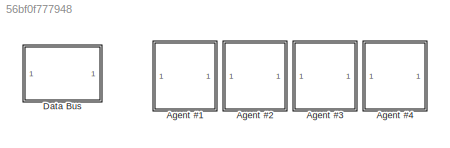
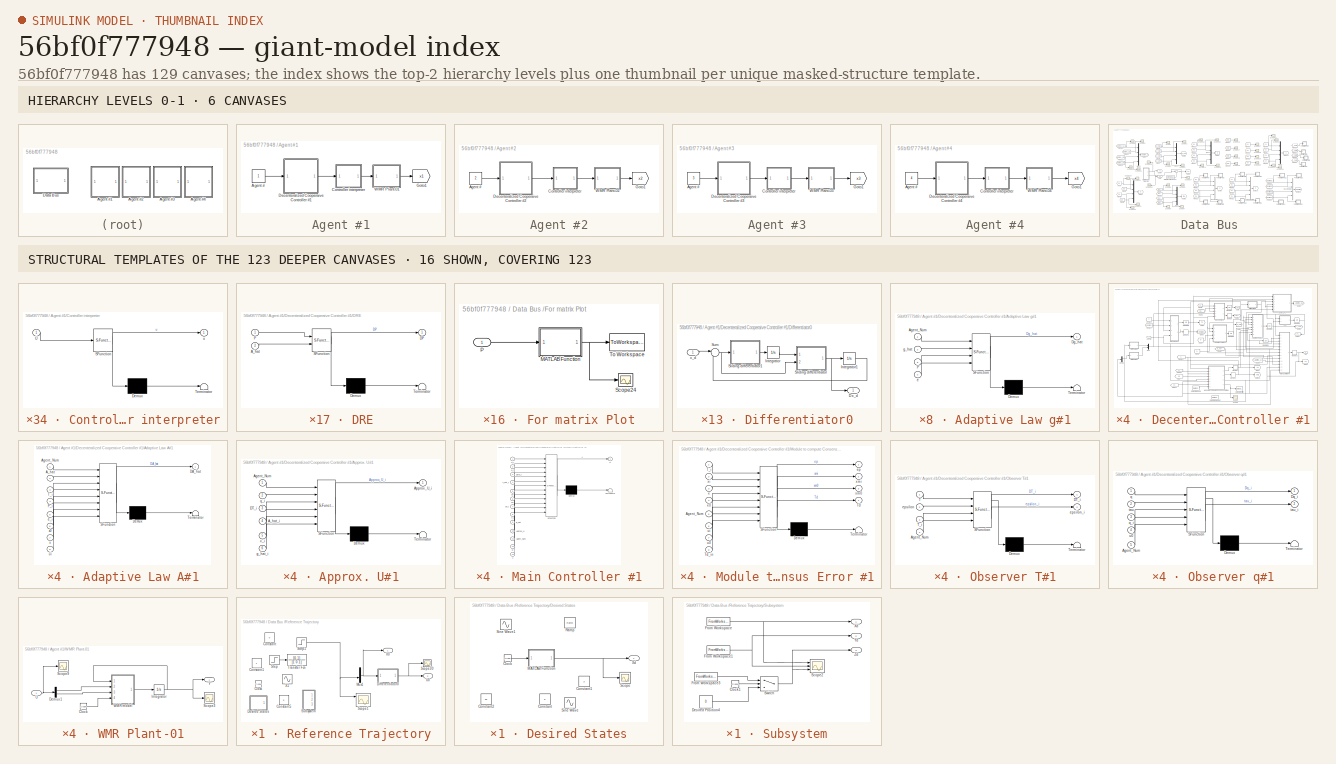
[diagram: thumbnail index - top-2 hierarchy levels (6 canvases) + 16 structural-template representatives of the remaining 123 canvases]
MODEL slx_56bf0f777948
KIND model
CONFIG AbsTol = auto
CONFIG EnableMultiTasking = on
CONFIG FixedStep = auto
CONFIG InitFcn = constant_CAMFC2_01_WMR01\n
CONFIG MaxStep = auto
CONFIG MinStep = auto
CONFIG RelTol = 1e-3
CONFIG SampleTimeConstraint = Unconstrained
CONFIG Solver = ode45
CONFIG SolverName = ode45
CONFIG StartTime = 0.0
CONFIG StopTime = 100
BLOCK [SubSystem] Agent #1
  Ports = []
  RequestExecContextInheritance = off
  Variant = off
BLOCK [Constant] Agent #1/Agent #
BLOCK [SubSystem] Agent #1/Controller interpreter
  ErrorFcn = Stateflow.Translate.translate
  PermitHierarchicalResolution = ExplicitOnly
  Ports = [1, 1]
  RequestExecContextInheritance = off
  SFBlockType = MATLAB Function
  TreatAsAtomicUnit = on
  Variant = off
BLOCK [Demux] Agent #1/Controller interpreter/ Demux 
  Outputs = 1
  Ports = [1, 1]
BLOCK [S-Function] Agent #1/Controller interpreter/ SFunction 
  EnableBusSupport = on
  FunctionName = sf_sfun
  PortCounts = [1 2]
  Ports = [1, 2]
  SFcnIsStateOwnerBlock = off
  SFunctionDeploymentMode = off
  Tag = Stateflow S-Function CAMFC2_01_WMR01 1
BLOCK [Terminator] Agent #1/Controller interpreter/ Terminator 
BLOCK [Inport] Agent #1/Controller interpreter/U
  IconDisplay = Port number
BLOCK [Outport] Agent #1/Controller interpreter/u
  IconDisplay = Port number
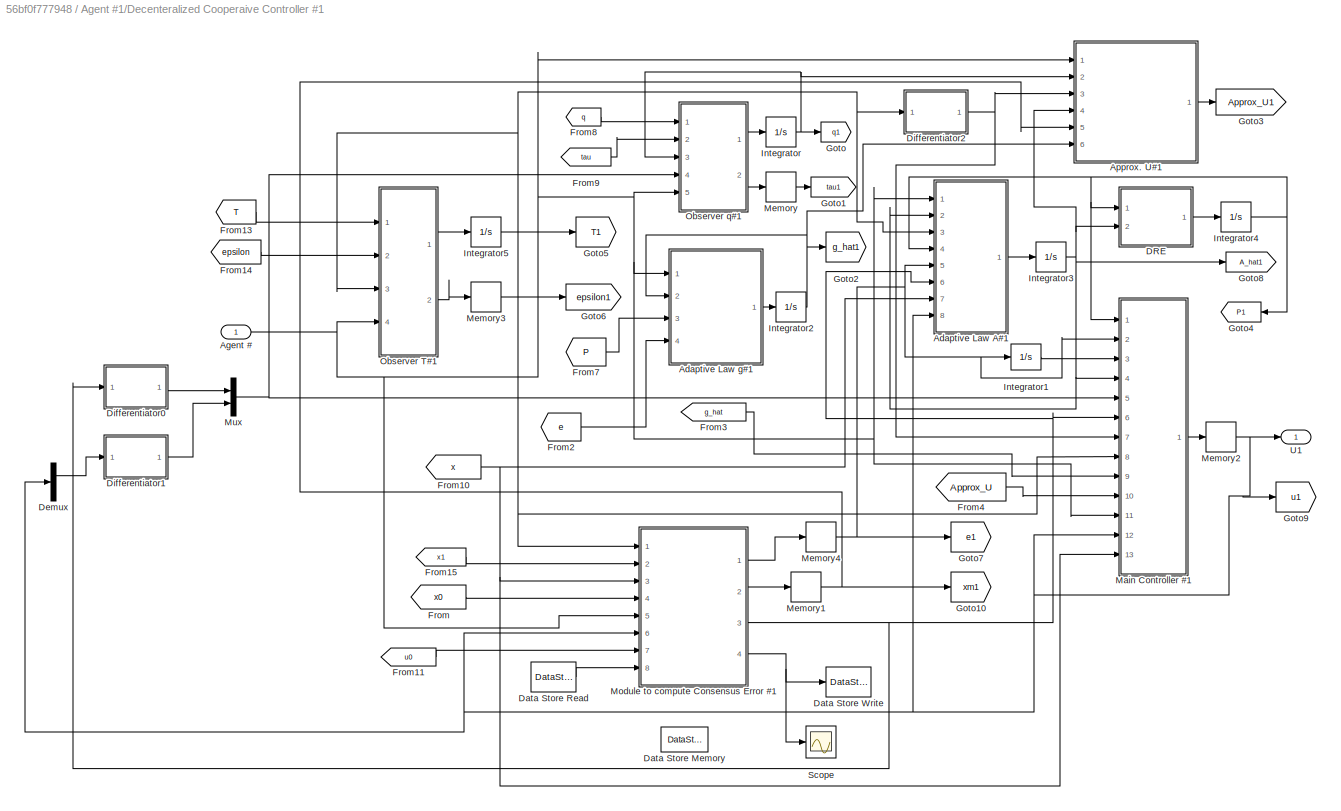
BLOCK [SubSystem] Agent #1/Decenteralized Cooperaive Controller #1
  Ports = [1, 1]
  RequestExecContextInheritance = off
  Variant = off
BLOCK [SubSystem] Agent #1/Decenteralized Cooperaive Controller #1/Adaptive Law A#1
  ErrorFcn = Stateflow.Translate.translate
  PermitHierarchicalResolution = ExplicitOnly
  Ports = [8, 1]
  RequestExecContextInheritance = off
  SFBlockType = MATLAB Function
  TreatAsAtomicUnit = on
  Variant = off
BLOCK [Demux] Agent #1/Decenteralized Cooperaive Controller #1/Adaptive Law A#1/ Demux 
  Outputs = 1
  Ports = [1, 1]
BLOCK [S-Function] Agent #1/Decenteralized Cooperaive Controller #1/Adaptive Law A#1/ SFunction 
  EnableBusSupport = on
  FunctionName = sf_sfun
  Parameters = BN,H,N,gama2,n,n0,rho2
  PortCounts = [8 2]
  Ports = [8, 2]
  SFcnIsStateOwnerBlock = off
  SFunctionDeploymentMode = off
  Tag = Stateflow S-Function CAMFC2_01_WMR01 2
BLOCK [Terminator] Agent #1/Decenteralized Cooperaive Controller #1/Adaptive Law A#1/ Terminator 
BLOCK [Inport] Agent #1/Decenteralized Cooperaive Controller #1/Adaptive Law A#1/A_hat
  IconDisplay = Port number
  Port = 2
BLOCK [Inport] Agent #1/Decenteralized Cooperaive Controller #1/Adaptive Law A#1/Agent_Num
  IconDisplay = Port number
BLOCK [Outport] Agent #1/Decenteralized Cooperaive Controller #1/Adaptive Law A#1/DA_hat
  IconDisplay = Port number
BLOCK [Inport] Agent #1/Decenteralized Cooperaive Controller #1/Adaptive Law A#1/P_i
  IconDisplay = Port number
  Port = 4
BLOCK [Inport] Agent #1/Decenteralized Cooperaive Controller #1/Adaptive Law A#1/T_i
  IconDisplay = Port number
  Port = 3
BLOCK [Inport] Agent #1/Decenteralized Cooperaive Controller #1/Adaptive Law A#1/e_i
  IconDisplay = Port number
  Port = 5
BLOCK [Inport] Agent #1/Decenteralized Cooperaive Controller #1/Adaptive Law A#1/ui
  IconDisplay = Port number
  Port = 8
BLOCK [Inport] Agent #1/Decenteralized Cooperaive Controller #1/Adaptive Law A#1/x
  IconDisplay = Port number
  Port = 7
BLOCK [Inport] Agent #1/Decenteralized Cooperaive Controller #1/Adaptive Law A#1/z0
  IconDisplay = Port number
  Port = 6
BLOCK [SubSystem] Agent #1/Decenteralized Cooperaive Controller #1/Adaptive Law g#1
  ErrorFcn = Stateflow.Translate.translate
  PermitHierarchicalResolution = ExplicitOnly
  Ports = [4, 1]
  RequestExecContextInheritance = off
  SFBlockType = MATLAB Function
  TreatAsAtomicUnit = on
  Variant = off
BLOCK [Demux] Agent #1/Decenteralized Cooperaive Controller #1/Adaptive Law g#1/ Demux 
  Outputs = 1
  Ports = [1, 1]
BLOCK [S-Function] Agent #1/Decenteralized Cooperaive Controller #1/Adaptive Law g#1/ SFunction 
  EnableBusSupport = on
  FunctionName = sf_sfun
  Parameters = H,N,P_struct,gama1,n,rho1
  PortCounts = [4 2]
  Ports = [4, 2]
  SFcnIsStateOwnerBlock = off
  SFunctionDeploymentMode = off
  Tag = Stateflow S-Function CAMFC2_01_WMR01 3
BLOCK [Terminator] Agent #1/Decenteralized Cooperaive Controller #1/Adaptive Law g#1/ Terminator 
BLOCK [Inport] Agent #1/Decenteralized Cooperaive Controller #1/Adaptive Law g#1/Agent_Num
  IconDisplay = Port number
BLOCK [Outport] Agent #1/Decenteralized Cooperaive Controller #1/Adaptive Law g#1/Dg_hat
  IconDisplay = Port number
BLOCK [Inport] Agent #1/Decenteralized Cooperaive Controller #1/Adaptive Law g#1/P
  IconDisplay = Port number
  Port = 3
BLOCK [Inport] Agent #1/Decenteralized Cooperaive Controller #1/Adaptive Law g#1/e
  IconDisplay = Port number
  Port = 4
BLOCK [Inport] Agent #1/Decenteralized Cooperaive Controller #1/Adaptive Law g#1/g_hat
  IconDisplay = Port number
  Port = 2
BLOCK [Inport] Agent #1/Decenteralized Cooperaive Controller #1/Agent #
  IconDisplay = Port number
BLOCK [SubSystem] Agent #1/Decenteralized Cooperaive Controller #1/Approx. U#1
  ErrorFcn = Stateflow.Translate.translate
  PermitHierarchicalResolution = ExplicitOnly
  Ports = [6, 1]
  RequestExecContextInheritance = off
  SFBlockType = MATLAB Function
  TreatAsAtomicUnit = on
  Variant = off
BLOCK [Demux] Agent #1/Decenteralized Cooperaive Controller #1/Approx. U#1/ Demux 
  Outputs = 1
  Ports = [1, 1]
BLOCK [S-Function] Agent #1/Decenteralized Cooperaive Controller #1/Approx. U#1/ SFunction 
  EnableBusSupport = on
  FunctionName = sf_sfun
  Parameters = B_pseudo_inverse
  PortCounts = [6 2]
  Ports = [6, 2]
  SFcnIsStateOwnerBlock = off
  SFunctionDeploymentMode = off
  Tag = Stateflow S-Function CAMFC2_01_WMR01 4
BLOCK [Terminator] Agent #1/Decenteralized Cooperaive Controller #1/Approx. U#1/ Terminator 
BLOCK [Inport] Agent #1/Decenteralized Cooperaive Controller #1/Approx. U#1/A_hat_i
  IconDisplay = Port number
  Port = 4
BLOCK [Inport] Agent #1/Decenteralized Cooperaive Controller #1/Approx. U#1/Agent_Num
  IconDisplay = Port number
BLOCK [Outport] Agent #1/Decenteralized Cooperaive Controller #1/Approx. U#1/Approx_U_i
  IconDisplay = Port number
BLOCK [Inport] Agent #1/Decenteralized Cooperaive Controller #1/Approx. U#1/DT_i
  IconDisplay = Port number
  Port = 3
BLOCK [Inport] Agent #1/Decenteralized Cooperaive Controller #1/Approx. U#1/g_hat_i
  IconDisplay = Port number
  Port = 6
BLOCK [Inport] Agent #1/Decenteralized Cooperaive Controller #1/Approx. U#1/q_i
  IconDisplay = Port number
  Port = 2
BLOCK [Inport] Agent #1/Decenteralized Cooperaive Controller #1/Approx. U#1/x_i
  IconDisplay = Port number
  Port = 5
BLOCK [SubSystem] Agent #1/Decenteralized Cooperaive Controller #1/DRE
  ErrorFcn = Stateflow.Translate.translate
  PermitHierarchicalResolution = ExplicitOnly
  Ports = [2, 1]
  RequestExecContextInheritance = off
  SFBlockType = MATLAB Function
  TreatAsAtomicUnit = on
  Variant = off
BLOCK [Demux] Agent #1/Decenteralized Cooperaive Controller #1/DRE/ Demux 
  Outputs = 1
  Ports = [1, 1]
BLOCK [S-Function] Agent #1/Decenteralized Cooperaive Controller #1/DRE/ SFunction 
  EnableBusSupport = on
  FunctionName = sf_sfun
  Parameters = B,Q,R
  PortCounts = [2 2]
  Ports = [2, 2]
  SFcnIsStateOwnerBlock = off
  SFunctionDeploymentMode = off
  Tag = Stateflow S-Function CAMFC2_01_WMR01 13
BLOCK [Terminator] Agent #1/Decenteralized Cooperaive Controller #1/DRE/ Terminator 
BLOCK [Inport] Agent #1/Decenteralized Cooperaive Controller #1/DRE/A_hat
  IconDisplay = Port number
  Port = 2
BLOCK [Outport] Agent #1/Decenteralized Cooperaive Controller #1/DRE/DP
  IconDisplay = Port number
BLOCK [Inport] Agent #1/Decenteralized Cooperaive Controller #1/DRE/P
  IconDisplay = Port number
BLOCK [DataStoreMemory] Agent #1/Decenteralized Cooperaive Controller #1/Data Store Memory
  DataStoreName = Td_G1
  ReadBeforeWriteMsg = warning
  ShowAdditionalParam = off
  VectorParams1D = off
  WriteAfterReadMsg = warning
  WriteAfterWriteMsg = warning
BLOCK [DataStoreRead] Agent #1/Decenteralized Cooperaive Controller #1/Data Store Read
  DataStoreName = Td_G1
  Ports = [0, 1]
BLOCK [DataStoreWrite] Agent #1/Decenteralized Cooperaive Controller #1/Data Store Write
  DataStoreName = Td_G1
  Ports = [1]
BLOCK [Demux] Agent #1/Decenteralized Cooperaive Controller #1/Demux
  DisplayOption = bar
  Outputs = 2
  Ports = [1, 2]
BLOCK [SubSystem] Agent #1/Decenteralized Cooperaive Controller #1/Differentiator0
  Ports = [1, 1]
  RequestExecContextInheritance = off
  Variant = off
BLOCK [Outport] Agent #1/Decenteralized Cooperaive Controller #1/Differentiator0/Dx_d
  IconDisplay = Port number
BLOCK [Integrator] Agent #1/Decenteralized Cooperaive Controller #1/Differentiator0/Integrator
  InitialCondition = zeros(n0,1)
  Ports = [1, 1]
BLOCK [Integrator] Agent #1/Decenteralized Cooperaive Controller #1/Differentiator0/Integrator1
  InitialCondition = zeros(n0,1)
  Ports = [1, 1]
BLOCK [SubSystem] Agent #1/Decenteralized Cooperaive Controller #1/Differentiator0/Sliding differentiator
  ErrorFcn = Stateflow.Translate.translate
  PermitHierarchicalResolution = ExplicitOnly
  Ports = [2, 1]
  RequestExecContextInheritance = off
  SFBlockType = MATLAB Function
  TreatAsAtomicUnit = on
  Variant = off
BLOCK [Demux] Agent #1/Decenteralized Cooperaive Controller #1/Differentiator0/Sliding differentiator/ Demux 
  Outputs = 1
  Ports = [1, 1]
BLOCK [S-Function] Agent #1/Decenteralized Cooperaive Controller #1/Differentiator0/Sliding differentiator/ SFunction 
  EnableBusSupport = on
  FunctionName = sf_sfun
  Parameters = alpha,k1
  PortCounts = [2 2]
  Ports = [2, 2]
  SFcnIsStateOwnerBlock = off
  SFunctionDeploymentMode = off
  Tag = Stateflow S-Function CAMFC2_01_WMR01 36
BLOCK [Terminator] Agent #1/Decenteralized Cooperaive Controller #1/Differentiator0/Sliding differentiator/ Terminator 
BLOCK [Inport] Agent #1/Decenteralized Cooperaive Controller #1/Differentiator0/Sliding differentiator/e
  IconDisplay = Port number
  Port = 2
BLOCK [Outport] Agent #1/Decenteralized Cooperaive Controller #1/Differentiator0/Sliding differentiator/u
  IconDisplay = Port number
BLOCK [Inport] Agent #1/Decenteralized Cooperaive Controller #1/Differentiator0/Sliding differentiator/u1
  IconDisplay = Port number
BLOCK [SubSystem] Agent #1/Decenteralized Cooperaive Controller #1/Differentiator0/Sliding differentiator1
  ErrorFcn = Stateflow.Translate.translate
  PermitHierarchicalResolution = ExplicitOnly
  Ports = [1, 1]
  RequestExecContextInheritance = off
  SFBlockType = MATLAB Function
  TreatAsAtomicUnit = on
  Variant = off
BLOCK [Demux] Agent #1/Decenteralized Cooperaive Controller #1/Differentiator0/Sliding differentiator1/ Demux 
  Outputs = 1
  Ports = [1, 1]
BLOCK [S-Function] Agent #1/Decenteralized Cooperaive Controller #1/Differentiator0/Sliding differentiator1/ SFunction 
  EnableBusSupport = on
  FunctionName = sf_sfun
  Parameters = alpha,k2
  PortCounts = [1 2]
  Ports = [1, 2]
  SFcnIsStateOwnerBlock = off
  SFunctionDeploymentMode = off
  Tag = Stateflow S-Function CAMFC2_01_WMR01 37
BLOCK [Terminator] Agent #1/Decenteralized Cooperaive Controller #1/Differentiator0/Sliding differentiator1/ Terminator 
BLOCK [Outport] Agent #1/Decenteralized Cooperaive Controller #1/Differentiator0/Sliding differentiator1/Du1
  IconDisplay = Port number
BLOCK [Inport] Agent #1/Decenteralized Cooperaive Controller #1/Differentiator0/Sliding differentiator1/e
  IconDisplay = Port number
BLOCK [Sum] Agent #1/Decenteralized Cooperaive Controller #1/Differentiator0/Sum
  IconShape = round
  InputSameDT = off
  Inputs = |-+
  OutDataTypeStr = Inherit: Inherit via internal rule
  Ports = [2, 1]
  SaturateOnIntegerOverflow = off
BLOCK [Inport] Agent #1/Decenteralized Cooperaive Controller #1/Differentiator0/x_d
  IconDisplay = Port number
BLOCK [SubSystem] Agent #1/Decenteralized Cooperaive Controller #1/Differentiator1
  Ports = [1, 1]
  RequestExecContextInheritance = off
  Variant = off
BLOCK [Outport] Agent #1/Decenteralized Cooperaive Controller #1/Differentiator1/Dx_d
  IconDisplay = Port number
BLOCK [Integrator] Agent #1/Decenteralized Cooperaive Controller #1/Differentiator1/Integrator
  InitialCondition = zeros(n0,1)
  Ports = [1, 1]
BLOCK [Integrator] Agent #1/Decenteralized Cooperaive Controller #1/Differentiator1/Integrator1
  InitialCondition = zeros(n0,1)
  Ports = [1, 1]
BLOCK [SubSystem] Agent #1/Decenteralized Cooperaive Controller #1/Differentiator1/Sliding differentiator
  ErrorFcn = Stateflow.Translate.translate
  PermitHierarchicalResolution = ExplicitOnly
  Ports = [2, 1]
  RequestExecContextInheritance = off
  SFBlockType = MATLAB Function
  TreatAsAtomicUnit = on
  Variant = off
BLOCK [Demux] Agent #1/Decenteralized Cooperaive Controller #1/Differentiator1/Sliding differentiator/ Demux 
  Outputs = 1
  Ports = [1, 1]
BLOCK [S-Function] Agent #1/Decenteralized Cooperaive Controller #1/Differentiator1/Sliding differentiator/ SFunction 
  EnableBusSupport = on
  FunctionName = sf_sfun
  Parameters = alpha,k1
  PortCounts = [2 2]
  Ports = [2, 2]
  SFcnIsStateOwnerBlock = off
  SFunctionDeploymentMode = off
  Tag = Stateflow S-Function CAMFC2_01_WMR01 20
BLOCK [Terminator] Agent #1/Decenteralized Cooperaive Controller #1/Differentiator1/Sliding differentiator/ Terminator 
BLOCK [Inport] Agent #1/Decenteralized Cooperaive Controller #1/Differentiator1/Sliding differentiator/e
  IconDisplay = Port number
  Port = 2
BLOCK [Outport] Agent #1/Decenteralized Cooperaive Controller #1/Differentiator1/Sliding differentiator/u
  IconDisplay = Port number
BLOCK [Inport] Agent #1/Decenteralized Cooperaive Controller #1/Differentiator1/Sliding differentiator/u1
  IconDisplay = Port number
BLOCK [SubSystem] Agent #1/Decenteralized Cooperaive Controller #1/Differentiator1/Sliding differentiator1
  ErrorFcn = Stateflow.Translate.translate
  PermitHierarchicalResolution = ExplicitOnly
  Ports = [1, 1]
  RequestExecContextInheritance = off
  SFBlockType = MATLAB Function
  TreatAsAtomicUnit = on
  Variant = off
BLOCK [Demux] Agent #1/Decenteralized Cooperaive Controller #1/Differentiator1/Sliding differentiator1/ Demux 
  Outputs = 1
  Ports = [1, 1]
BLOCK [S-Function] Agent #1/Decenteralized Cooperaive Controller #1/Differentiator1/Sliding differentiator1/ SFunction 
  EnableBusSupport = on
  FunctionName = sf_sfun
  Parameters = alpha,k2
  PortCounts = [1 2]
  Ports = [1, 2]
  SFcnIsStateOwnerBlock = off
  SFunctionDeploymentMode = off
  Tag = Stateflow S-Function CAMFC2_01_WMR01 21
BLOCK [Terminator] Agent #1/Decenteralized Cooperaive Controller #1/Differentiator1/Sliding differentiator1/ Terminator 
BLOCK [Outport] Agent #1/Decenteralized Cooperaive Controller #1/Differentiator1/Sliding differentiator1/Du1
  IconDisplay = Port number
BLOCK [Inport] Agent #1/Decenteralized Cooperaive Controller #1/Differentiator1/Sliding differentiator1/e
  IconDisplay = Port number
BLOCK [Sum] Agent #1/Decenteralized Cooperaive Controller #1/Differentiator1/Sum
  IconShape = round
  InputSameDT = off
  Inputs = |-+
  OutDataTypeStr = Inherit: Inherit via internal rule
  Ports = [2, 1]
  SaturateOnIntegerOverflow = off
BLOCK [Inport] Agent #1/Decenteralized Cooperaive Controller #1/Differentiator1/x_d
  IconDisplay = Port number
BLOCK [SubSystem] Agent #1/Decenteralized Cooperaive Controller #1/Differentiator2
  Ports = [1, 1]
  RequestExecContextInheritance = off
  Variant = off
BLOCK [Outport] Agent #1/Decenteralized Cooperaive Controller #1/Differentiator2/Dx_d
  IconDisplay = Port number
BLOCK [Integrator] Agent #1/Decenteralized Cooperaive Controller #1/Differentiator2/Integrator
  InitialCondition = zeros(N+1,n)
  Ports = [1, 1]
BLOCK [Integrator] Agent #1/Decenteralized Cooperaive Controller #1/Differentiator2/Integrator1
  InitialCondition = zeros(N+1,n)
  Ports = [1, 1]
BLOCK [SubSystem] Agent #1/Decenteralized Cooperaive Controller #1/Differentiator2/Sliding differentiator
  ErrorFcn = Stateflow.Translate.translate
  PermitHierarchicalResolution = ExplicitOnly
  Ports = [2, 1]
  RequestExecContextInheritance = off
  SFBlockType = MATLAB Function
  TreatAsAtomicUnit = on
  Variant = off
BLOCK [Demux] Agent #1/Decenteralized Cooperaive Controller #1/Differentiator2/Sliding differentiator/ Demux 
  Outputs = 1
  Ports = [1, 1]
BLOCK [S-Function] Agent #1/Decenteralized Cooperaive Controller #1/Differentiator2/Sliding differentiator/ SFunction 
  EnableBusSupport = on
  FunctionName = sf_sfun
  Parameters = alpha,k1
  PortCounts = [2 2]
  Ports = [2, 2]
  SFcnIsStateOwnerBlock = off
  SFunctionDeploymentMode = off
  Tag = Stateflow S-Function CAMFC2_01_WMR01 5
BLOCK [Terminator] Agent #1/Decenteralized Cooperaive Controller #1/Differentiator2/Sliding differentiator/ Terminator 
BLOCK [Inport] Agent #1/Decenteralized Cooperaive Controller #1/Differentiator2/Sliding differentiator/e
  IconDisplay = Port number
  Port = 2
BLOCK [Outport] Agent #1/Decenteralized Cooperaive Controller #1/Differentiator2/Sliding differentiator/u
  IconDisplay = Port number
BLOCK [Inport] Agent #1/Decenteralized Cooperaive Controller #1/Differentiator2/Sliding differentiator/u1
  IconDisplay = Port number
BLOCK [SubSystem] Agent #1/Decenteralized Cooperaive Controller #1/Differentiator2/Sliding differentiator1
  ErrorFcn = Stateflow.Translate.translate
  PermitHierarchicalResolution = ExplicitOnly
  Ports = [1, 1]
  RequestExecContextInheritance = off
  SFBlockType = MATLAB Function
  TreatAsAtomicUnit = on
  Variant = off
BLOCK [Demux] Agent #1/Decenteralized Cooperaive Controller #1/Differentiator2/Sliding differentiator1/ Demux 
  Outputs = 1
  Ports = [1, 1]
BLOCK [S-Function] Agent #1/Decenteralized Cooperaive Controller #1/Differentiator2/Sliding differentiator1/ SFunction 
  EnableBusSupport = on
  FunctionName = sf_sfun
  Parameters = alpha,k2
  PortCounts = [1 2]
  Ports = [1, 2]
  SFcnIsStateOwnerBlock = off
  SFunctionDeploymentMode = off
  Tag = Stateflow S-Function CAMFC2_01_WMR01 6
BLOCK [Terminator] Agent #1/Decenteralized Cooperaive Controller #1/Differentiator2/Sliding differentiator1/ Terminator 
BLOCK [Outport] Agent #1/Decenteralized Cooperaive Controller #1/Differentiator2/Sliding differentiator1/Du1
  IconDisplay = Port number
BLOCK [Inport] Agent #1/Decenteralized Cooperaive Controller #1/Differentiator2/Sliding differentiator1/e
  IconDisplay = Port number
BLOCK [Sum] Agent #1/Decenteralized Cooperaive Controller #1/Differentiator2/Sum
  IconShape = round
  InputSameDT = off
  Inputs = |-+
  OutDataTypeStr = Inherit: Inherit via internal rule
  Ports = [2, 1]
  SaturateOnIntegerOverflow = off
BLOCK [Inport] Agent #1/Decenteralized Cooperaive Controller #1/Differentiator2/x_d
  IconDisplay = Port number
BLOCK [From] Agent #1/Decenteralized Cooperaive Controller #1/From
  GotoTag = x0
  TagVisibility = global
BLOCK [From] Agent #1/Decenteralized Cooperaive Controller #1/From10
  GotoTag = x
  TagVisibility = global
BLOCK [From] Agent #1/Decenteralized Cooperaive Controller #1/From11
  GotoTag = u0
  TagVisibility = global
BLOCK [From] Agent #1/Decenteralized Cooperaive Controller #1/From13
  GotoTag = T
  TagVisibility = global
BLOCK [From] Agent #1/Decenteralized Cooperaive Controller #1/From14
  GotoTag = epsilon
  TagVisibility = global
BLOCK [From] Agent #1/Decenteralized Cooperaive Controller #1/From15
  GotoTag = x1
  TagVisibility = global
BLOCK [From] Agent #1/Decenteralized Cooperaive Controller #1/From2
  GotoTag = e
  TagVisibility = global
BLOCK [From] Agent #1/Decenteralized Cooperaive Controller #1/From3
  GotoTag = g_hat
  TagVisibility = global
BLOCK [From] Agent #1/Decenteralized Cooperaive Controller #1/From4
  GotoTag = Approx_U
  TagVisibility = global
BLOCK [From] Agent #1/Decenteralized Cooperaive Controller #1/From7
  GotoTag = P
  TagVisibility = global
BLOCK [From] Agent #1/Decenteralized Cooperaive Controller #1/From8
  GotoTag = q
  TagVisibility = global
BLOCK [From] Agent #1/Decenteralized Cooperaive Controller #1/From9
  GotoTag = tau
  TagVisibility = global
BLOCK [Goto] Agent #1/Decenteralized Cooperaive Controller #1/Goto
  GotoTag = q1
  TagVisibility = global
BLOCK [Goto] Agent #1/Decenteralized Cooperaive Controller #1/Goto1
  GotoTag = tau1
  TagVisibility = global
BLOCK [Goto] Agent #1/Decenteralized Cooperaive Controller #1/Goto10
  GotoTag = xm1
  TagVisibility = global
BLOCK [Goto] Agent #1/Decenteralized Cooperaive Controller #1/Goto2
  GotoTag = g_hat1
  TagVisibility = global
BLOCK [Goto] Agent #1/Decenteralized Cooperaive Controller #1/Goto3
  GotoTag = Approx_U1
  TagVisibility = global
BLOCK [Goto] Agent #1/Decenteralized Cooperaive Controller #1/Goto4
  GotoTag = P1
  TagVisibility = global
BLOCK [Goto] Agent #1/Decenteralized Cooperaive Controller #1/Goto5
  GotoTag = T1
  TagVisibility = global
BLOCK [Goto] Agent #1/Decenteralized Cooperaive Controller #1/Goto6
  GotoTag = epsilon1
  TagVisibility = global
BLOCK [Goto] Agent #1/Decenteralized Cooperaive Controller #1/Goto7
  GotoTag = e1
  TagVisibility = global
BLOCK [Goto] Agent #1/Decenteralized Cooperaive Controller #1/Goto8
  GotoTag = A_hat1
  TagVisibility = global
BLOCK [Goto] Agent #1/Decenteralized Cooperaive Controller #1/Goto9
  GotoTag = u1
  TagVisibility = global
BLOCK [Integrator] Agent #1/Decenteralized Cooperaive Controller #1/Integrator
  InitialCondition = zeros(n,1)
  Ports = [1, 1]
BLOCK [Integrator] Agent #1/Decenteralized Cooperaive Controller #1/Integrator1
  InitialCondition = zeros(n,1)
  Ports = [1, 1]
BLOCK [Integrator] Agent #1/Decenteralized Cooperaive Controller #1/Integrator2
  InitialCondition = zeros(n,1)
  Ports = [1, 1]
BLOCK [Integrator] Agent #1/Decenteralized Cooperaive Controller #1/Integrator3
  InitialCondition = zeros(n)
  Ports = [1, 1]
BLOCK [Integrator] Agent #1/Decenteralized Cooperaive Controller #1/Integrator4
  InitialCondition = eye(n)
  Ports = [1, 1]
BLOCK [Integrator] Agent #1/Decenteralized Cooperaive Controller #1/Integrator5
  InitialCondition = zeros(N+1,n)
  Ports = [1, 1]
BLOCK [SubSystem] Agent #1/Decenteralized Cooperaive Controller #1/Main Controller #1
  ErrorFcn = Stateflow.Translate.translate
  PermitHierarchicalResolution = ExplicitOnly
  Ports = [13, 1]
  RequestExecContextInheritance = off
  SFBlockType = MATLAB Function
  TreatAsAtomicUnit = on
  Variant = off
BLOCK [Demux] Agent #1/Decenteralized Cooperaive Controller #1/Main Controller #1/ Demux 
  Outputs = 1
  Ports = [1, 1]
BLOCK [S-Function] Agent #1/Decenteralized Cooperaive Controller #1/Main Controller #1/ SFunction 
  EnableBusSupport = on
  FunctionName = sf_sfun
  Parameters = B,BN,B_pseudo_inverse,H,K,N,Q,R,n,n0
  PortCounts = [13 2]
  Ports = [13, 2]
  SFcnIsStateOwnerBlock = off
  SFunctionDeploymentMode = off
  Tag = Stateflow S-Function CAMFC2_01_WMR01 9
BLOCK [Terminator] Agent #1/Decenteralized Cooperaive Controller #1/Main Controller #1/ Terminator 
BLOCK [Inport] Agent #1/Decenteralized Cooperaive Controller #1/Main Controller #1/A_hat_i
  IconDisplay = Port number
  Port = 4
BLOCK [Inport] Agent #1/Decenteralized Cooperaive Controller #1/Main Controller #1/Agent_Num
  IconDisplay = Port number
  Port = 11
BLOCK [Inport] Agent #1/Decenteralized Cooperaive Controller #1/Main Controller #1/Approx_U
  IconDisplay = Port number
  Port = 10
BLOCK [Inport] Agent #1/Decenteralized Cooperaive Controller #1/Main Controller #1/DT_i
  IconDisplay = Port number
  Port = 7
BLOCK [Inport] Agent #1/Decenteralized Cooperaive Controller #1/Main Controller #1/P_i
  IconDisplay = Port number
BLOCK [Inport] Agent #1/Decenteralized Cooperaive Controller #1/Main Controller #1/T_i
  IconDisplay = Port number
  Port = 8
BLOCK [Outport] Agent #1/Decenteralized Cooperaive Controller #1/Main Controller #1/U
  IconDisplay = Port number
BLOCK [Inport] Agent #1/Decenteralized Cooperaive Controller #1/Main Controller #1/Zeta_i
  IconDisplay = Port number
  Port = 3
BLOCK [Inport] Agent #1/Decenteralized Cooperaive Controller #1/Main Controller #1/e_i
  IconDisplay = Port number
  Port = 2
BLOCK [Inport] Agent #1/Decenteralized Cooperaive Controller #1/Main Controller #1/g_hat
  IconDisplay = Port number
  Port = 9
BLOCK [Inport] Agent #1/Decenteralized Cooperaive Controller #1/Main Controller #1/u0
  IconDisplay = Port number
  Port = 5
BLOCK [Inport] Agent #1/Decenteralized Cooperaive Controller #1/Main Controller #1/ui
  IconDisplay = Port number
  Port = 12
BLOCK [Inport] Agent #1/Decenteralized Cooperaive Controller #1/Main Controller #1/x
  IconDisplay = Port number
  Port = 13
BLOCK [Inport] Agent #1/Decenteralized Cooperaive Controller #1/Main Controller #1/z0
  IconDisplay = Port number
  Port = 6
BLOCK [Memory] Agent #1/Decenteralized Cooperaive Controller #1/Memory
  InitialCondition = zeros(n,1)
BLOCK [Memory] Agent #1/Decenteralized Cooperaive Controller #1/Memory1
  InitialCondition = zeros(n,1)
BLOCK [Memory] Agent #1/Decenteralized Cooperaive Controller #1/Memory2
  InitialCondition = zeros(n,1)
BLOCK [Memory] Agent #1/Decenteralized Cooperaive Controller #1/Memory3
  InitialCondition = zeros(N+1,n)
BLOCK [Memory] Agent #1/Decenteralized Cooperaive Controller #1/Memory4
  InitialCondition = zeros(n,1)
BLOCK [SubSystem] Agent #1/Decenteralized Cooperaive Controller #1/Module to compute Consensus Error #1
  ErrorFcn = Stateflow.Translate.translate
  PermitHierarchicalResolution = ExplicitOnly
  Ports = [8, 4]
  RequestExecContextInheritance = off
  SFBlockType = MATLAB Function
  TreatAsAtomicUnit = on
  Variant = off
BLOCK [Demux] Agent #1/Decenteralized Cooperaive Controller #1/Module to compute Consensus Error #1/ Demux 
  Outputs = 1
  Ports = [1, 1]
BLOCK [S-Function] Agent #1/Decenteralized Cooperaive Controller #1/Module to compute Consensus Error #1/ SFunction 
  EnableBusSupport = on
  FunctionName = sf_sfun
  Parameters = AN,BN,N,Thresh,n,n0
  PortCounts = [8 5]
  Ports = [8, 5]
  SFcnIsStateOwnerBlock = off
  SFunctionDeploymentMode = off
  Tag = Stateflow S-Function CAMFC2_01_WMR01 10
BLOCK [Terminator] Agent #1/Decenteralized Cooperaive Controller #1/Module to compute Consensus Error #1/ Terminator 
BLOCK [Inport] Agent #1/Decenteralized Cooperaive Controller #1/Module to compute Consensus Error #1/Agent_Num
  IconDisplay = Port number
  Port = 5
BLOCK [Inport] Agent #1/Decenteralized Cooperaive Controller #1/Module to compute Consensus Error #1/T_i
  IconDisplay = Port number
BLOCK [Outport] Agent #1/Decenteralized Cooperaive Controller #1/Module to compute Consensus Error #1/Td
  IconDisplay = Port number
  Port = 4
BLOCK [Inport] Agent #1/Decenteralized Cooperaive Controller #1/Module to compute Consensus Error #1/Td_in
  IconDisplay = Port number
  Port = 8
BLOCK [Outport] Agent #1/Decenteralized Cooperaive Controller #1/Module to compute Consensus Error #1/ep
  IconDisplay = Port number
BLOCK [Inport] Agent #1/Decenteralized Cooperaive Controller #1/Module to compute Consensus Error #1/u0
  IconDisplay = Port number
  Port = 7
BLOCK [Inport] Agent #1/Decenteralized Cooperaive Controller #1/Module to compute Consensus Error #1/ui
  IconDisplay = Port number
  Port = 6
BLOCK [Inport] Agent #1/Decenteralized Cooperaive Controller #1/Module to compute Consensus Error #1/x
  IconDisplay = Port number
  Port = 3
BLOCK [Inport] Agent #1/Decenteralized Cooperaive Controller #1/Module to compute Consensus Error #1/x0
  IconDisplay = Port number
  Port = 4
BLOCK [Inport] Agent #1/Decenteralized Cooperaive Controller #1/Module to compute Consensus Error #1/xi
  IconDisplay = Port number
  Port = 2
BLOCK [Outport] Agent #1/Decenteralized Cooperaive Controller #1/Module to compute Consensus Error #1/xm0
  IconDisplay = Port number
  Port = 3
BLOCK [Outport] Agent #1/Decenteralized Cooperaive Controller #1/Module to compute Consensus Error #1/xmi
  IconDisplay = Port number
  Port = 2
BLOCK [Mux] Agent #1/Decenteralized Cooperaive Controller #1/Mux
  DisplayOption = bar
  Inputs = 2
  Ports = [2, 1]
BLOCK [SubSystem] Agent #1/Decenteralized Cooperaive Controller #1/Observer T#1
  ErrorFcn = Stateflow.Translate.translate
  PermitHierarchicalResolution = ExplicitOnly
  Ports = [4, 2]
  RequestExecContextInheritance = off
  SFBlockType = MATLAB Function
  TreatAsAtomicUnit = on
  Variant = off
BLOCK [Demux] Agent #1/Decenteralized Cooperaive Controller #1/Observer T#1/ Demux 
  Outputs = 1
  Ports = [1, 1]
BLOCK [S-Function] Agent #1/Decenteralized Cooperaive Controller #1/Observer T#1/ SFunction 
  EnableBusSupport = on
  FunctionName = sf_sfun
  Parameters = AN,BN,H,N,Observer_Gain1,T_struct,Upsilon_M,chi,epsilon_struct,n
  PortCounts = [4 3]
  Ports = [4, 3]
  SFcnIsStateOwnerBlock = off
  SFunctionDeploymentMode = off
  Tag = Stateflow S-Function CAMFC2_01_WMR01 11
BLOCK [Terminator] Agent #1/Decenteralized Cooperaive Controller #1/Observer T#1/ Terminator 
BLOCK [Inport] Agent #1/Decenteralized Cooperaive Controller #1/Observer T#1/Agent_Num
  IconDisplay = Port number
  Port = 4
BLOCK [Outport] Agent #1/Decenteralized Cooperaive Controller #1/Observer T#1/DT_i
  IconDisplay = Port number
BLOCK [Inport] Agent #1/Decenteralized Cooperaive Controller #1/Observer T#1/T
  IconDisplay = Port number
BLOCK [Inport] Agent #1/Decenteralized Cooperaive Controller #1/Observer T#1/T_i
  IconDisplay = Port number
  Port = 3
BLOCK [Inport] Agent #1/Decenteralized Cooperaive Controller #1/Observer T#1/epsilon
  IconDisplay = Port number
  Port = 2
BLOCK [Outport] Agent #1/Decenteralized Cooperaive Controller #1/Observer T#1/epsilon_i
  IconDisplay = Port number
  Port = 2
BLOCK [SubSystem] Agent #1/Decenteralized Cooperaive Controller #1/Observer q#1
  ErrorFcn = Stateflow.Translate.translate
  PermitHierarchicalResolution = ExplicitOnly
  Ports = [5, 2]
  RequestExecContextInheritance = off
  SFBlockType = MATLAB Function
  TreatAsAtomicUnit = on
  Variant = off
BLOCK [Demux] Agent #1/Decenteralized Cooperaive Controller #1/Observer q#1/ Demux 
  Outputs = 1
  Ports = [1, 1]
BLOCK [S-Function] Agent #1/Decenteralized Cooperaive Controller #1/Observer q#1/ SFunction 
  EnableBusSupport = on
  FunctionName = sf_sfun
  Parameters = AN,BN,H,N,Observer_Gain,U_dot0_M,n
  PortCounts = [5 3]
  Ports = [5, 3]
  SFcnIsStateOwnerBlock = off
  SFunctionDeploymentMode = off
  Tag = Stateflow S-Function CAMFC2_01_WMR01 12
BLOCK [Terminator] Agent #1/Decenteralized Cooperaive Controller #1/Observer q#1/ Terminator 
BLOCK [Inport] Agent #1/Decenteralized Cooperaive Controller #1/Observer q#1/Agent_Num
  IconDisplay = Port number
  Port = 5
BLOCK [Outport] Agent #1/Decenteralized Cooperaive Controller #1/Observer q#1/Dq_i
  IconDisplay = Port number
BLOCK [Inport] Agent #1/Decenteralized Cooperaive Controller #1/Observer q#1/q
  IconDisplay = Port number
BLOCK [Inport] Agent #1/Decenteralized Cooperaive Controller #1/Observer q#1/q_i
  IconDisplay = Port number
  Port = 3
BLOCK [Inport] Agent #1/Decenteralized Cooperaive Controller #1/Observer q#1/tau
  IconDisplay = Port number
  Port = 2
BLOCK [Outport] Agent #1/Decenteralized Cooperaive Controller #1/Observer q#1/tau_i
  IconDisplay = Port number
  Port = 2
BLOCK [Inport] Agent #1/Decenteralized Cooperaive Controller #1/Observer q#1/u0
  IconDisplay = Port number
  Port = 4
BLOCK [Scope] Agent #1/Decenteralized Cooperaive Controller #1/Scope
  NumInputPorts = 1
  Ports = [1]
  ScopeSpecificationString = Simulink.scopes.TimeScopeBlockCfg('CurrentConfiguration', extmgr.ConfigurationSet(extmgr.Configuration('Core','General UI',true),extmgr.Configuration('Core','Source UI',true),extmgr.Configuration('Sources','WiredSimulink',true,'DataLoggingVariableName','ScopeData1'),extmgr.Configuration('Visuals','Time Domain',true,'SerializedDisplays',{struct('MinYLimReal','-0.19635','MaxYLimReal','1.76715','YLab...<+1628ch>
BLOCK [Outport] Agent #1/Decenteralized Cooperaive Controller #1/U1
  IconDisplay = Port number
BLOCK [Goto] Agent #1/Goto1
  GotoTag = x1
  TagVisibility = global
BLOCK [SubSystem] Agent #1/WMR Plant-01
  Ports = [1, 1]
  RequestExecContextInheritance = off
  Variant = off
BLOCK [Clock] Agent #1/WMR Plant-01/Clock
BLOCK [Demux] Agent #1/WMR Plant-01/Demux1
  DisplayOption = bar
  Outputs = 2
  Ports = [1, 2]
BLOCK [Integrator] Agent #1/WMR Plant-01/Integrator
  InitialCondition = [0;0;0;0;0]
  Ports = [1, 1]
BLOCK [Scope] Agent #1/WMR Plant-01/Scope3
  NumInputPorts = 1
  Ports = [1]
  ScopeSpecificationString = Simulink.scopes.TimeScopeBlockCfg('CurrentConfiguration', extmgr.ConfigurationSet(extmgr.Configuration('Core','General UI',true),extmgr.Configuration('Core','Source UI',true),extmgr.Configuration('Sources','WiredSimulink',true,'DataLoggingVariableName','ScopeData4','DataLoggingSaveFormat','StructureWithTime','DataLoggingDecimation','1','DataLoggingDecimateData',true),extmgr.Configuration('Visuals'...<+1748ch>
BLOCK [Scope] Agent #1/WMR Plant-01/Scope9
  NumInputPorts = 1
  Ports = [1]
  ScopeSpecificationString = Simulink.scopes.TimeScopeBlockCfg('CurrentConfiguration', extmgr.ConfigurationSet(extmgr.Configuration('Core','General UI',true),extmgr.Configuration('Core','Source UI',true),extmgr.Configuration('Sources','WiredSimulink',true,'DataLoggingVariableName','ScopeData11','DataLoggingSaveFormat','StructureWithTime','DataLoggingDecimation','1','DataLoggingDecimateData',true),extmgr.Configuration('Visuals...<+1739ch>  <repeated x4 — deduplicated; at blocks: Scope9>
BLOCK [Inport] Agent #1/WMR Plant-01/U
  IconDisplay = Port number
BLOCK [SubSystem] Agent #1/WMR Plant-01/WMR model
  ErrorFcn = Stateflow.Translate.translate
  PermitHierarchicalResolution = ExplicitOnly
  Ports = [4, 1]
  RequestExecContextInheritance = off
  SFBlockType = MATLAB Function
  TreatAsAtomicUnit = on
  Variant = off
BLOCK [Demux] Agent #1/WMR Plant-01/WMR model/ Demux 
  Outputs = 1
  Ports = [1, 1]
BLOCK [S-Function] Agent #1/WMR Plant-01/WMR model/ SFunction 
  EnableBusSupport = on
  FunctionName = sf_sfun
  Parameters = Cv,Cw,J,L0,M,R0
  PortCounts = [4 2]
  Ports = [4, 2]
  SFcnIsStateOwnerBlock = off
  SFunctionDeploymentMode = off
  Tag = Stateflow S-Function CAMFC2_01_WMR01 7
BLOCK [Terminator] Agent #1/WMR Plant-01/WMR model/ Terminator 
BLOCK [Outport] Agent #1/WMR Plant-01/WMR model/DX
  IconDisplay = Port number
BLOCK [Inport] Agent #1/WMR Plant-01/WMR model/X
  IconDisplay = Port number
BLOCK [Inport] Agent #1/WMR Plant-01/WMR model/t
  IconDisplay = Port number
  Port = 4
BLOCK [Inport] Agent #1/WMR Plant-01/WMR model/u1
  IconDisplay = Port number
  Port = 2
BLOCK [Inport] Agent #1/WMR Plant-01/WMR model/u2
  IconDisplay = Port number
  Port = 3
BLOCK [Outport] Agent #1/WMR Plant-01/Y
  IconDisplay = Port number
BLOCK [SubSystem] Agent #2
  Ports = []
  RequestExecContextInheritance = off
  Variant = off
BLOCK [Constant] Agent #2/Agent #
  Value = 2
BLOCK [SubSystem] Agent #2/Controller interpreter
  ErrorFcn = Stateflow.Translate.translate
  PermitHierarchicalResolution = ExplicitOnly
  Ports = [1, 1]
  RequestExecContextInheritance = off
  SFBlockType = MATLAB Function
  TreatAsAtomicUnit = on
  Variant = off
BLOCK [Demux] Agent #2/Controller interpreter/ Demux 
  Outputs = 1
  Ports = [1, 1]
BLOCK [S-Function] Agent #2/Controller interpreter/ SFunction 
  EnableBusSupport = on
  FunctionName = sf_sfun
  PortCounts = [1 2]
  Ports = [1, 2]
  SFcnIsStateOwnerBlock = off
  SFunctionDeploymentMode = off
  Tag = Stateflow S-Function CAMFC2_01_WMR01 8
BLOCK [Terminator] Agent #2/Controller interpreter/ Terminator 
BLOCK [Inport] Agent #2/Controller interpreter/U
  IconDisplay = Port number
BLOCK [Outport] Agent #2/Controller interpreter/u
  IconDisplay = Port number
BLOCK [SubSystem] Agent #2/Decenteralized Cooperaive Controller #2
  Ports = [1, 1]
  RequestExecContextInheritance = off
  Variant = off
BLOCK [SubSystem] Agent #2/Decenteralized Cooperaive Controller #2/Adaptive Law A#2
  ErrorFcn = Stateflow.Translate.translate
  PermitHierarchicalResolution = ExplicitOnly
  Ports = [8, 1]
  RequestExecContextInheritance = off
  SFBlockType = MATLAB Function
  TreatAsAtomicUnit = on
  Variant = off
BLOCK [Demux] Agent #2/Decenteralized Cooperaive Controller #2/Adaptive Law A#2/ Demux 
  Outputs = 1
  Ports = [1, 1]
BLOCK [S-Function] Agent #2/Decenteralized Cooperaive Controller #2/Adaptive Law A#2/ SFunction 
  EnableBusSupport = on
  FunctionName = sf_sfun
  Parameters = BN,H,N,gama2,n,n0,rho2
  PortCounts = [8 2]
  Ports = [8, 2]
  SFcnIsStateOwnerBlock = off
  SFunctionDeploymentMode = off
  Tag = Stateflow S-Function CAMFC2_01_WMR01 16
BLOCK [Terminator] Agent #2/Decenteralized Cooperaive Controller #2/Adaptive Law A#2/ Terminator 
BLOCK [Inport] Agent #2/Decenteralized Cooperaive Controller #2/Adaptive Law A#2/A_hat
  IconDisplay = Port number
  Port = 2
BLOCK [Inport] Agent #2/Decenteralized Cooperaive Controller #2/Adaptive Law A#2/Agent_Num
  IconDisplay = Port number
BLOCK [Outport] Agent #2/Decenteralized Cooperaive Controller #2/Adaptive Law A#2/DA_hat
  IconDisplay = Port number
BLOCK [Inport] Agent #2/Decenteralized Cooperaive Controller #2/Adaptive Law A#2/P_i
  IconDisplay = Port number
  Port = 4
BLOCK [Inport] Agent #2/Decenteralized Cooperaive Controller #2/Adaptive Law A#2/T_i
  IconDisplay = Port number
  Port = 3
BLOCK [Inport] Agent #2/Decenteralized Cooperaive Controller #2/Adaptive Law A#2/e_i
  IconDisplay = Port number
  Port = 5
BLOCK [Inport] Agent #2/Decenteralized Cooperaive Controller #2/Adaptive Law A#2/ui
  IconDisplay = Port number
  Port = 8
BLOCK [Inport] Agent #2/Decenteralized Cooperaive Controller #2/Adaptive Law A#2/x
  IconDisplay = Port number
  Port = 7
BLOCK [Inport] Agent #2/Decenteralized Cooperaive Controller #2/Adaptive Law A#2/z0
  IconDisplay = Port number
  Port = 6
BLOCK [SubSystem] Agent #2/Decenteralized Cooperaive Controller #2/Adaptive Law g#2
  ErrorFcn = Stateflow.Translate.translate
  PermitHierarchicalResolution = ExplicitOnly
  Ports = [4, 1]
  RequestExecContextInheritance = off
  SFBlockType = MATLAB Function
  TreatAsAtomicUnit = on
  Variant = off
BLOCK [Demux] Agent #2/Decenteralized Cooperaive Controller #2/Adaptive Law g#2/ Demux 
  Outputs = 1
  Ports = [1, 1]
BLOCK [S-Function] Agent #2/Decenteralized Cooperaive Controller #2/Adaptive Law g#2/ SFunction 
  EnableBusSupport = on
  FunctionName = sf_sfun
  Parameters = H,N,P_struct,gama1,n,rho1
  PortCounts = [4 2]
  Ports = [4, 2]
  SFcnIsStateOwnerBlock = off
  SFunctionDeploymentMode = off
  Tag = Stateflow S-Function CAMFC2_01_WMR01 17
BLOCK [Terminator] Agent #2/Decenteralized Cooperaive Controller #2/Adaptive Law g#2/ Terminator 
BLOCK [Inport] Agent #2/Decenteralized Cooperaive Controller #2/Adaptive Law g#2/Agent_Num
  IconDisplay = Port number
BLOCK [Outport] Agent #2/Decenteralized Cooperaive Controller #2/Adaptive Law g#2/Dg_hat
  IconDisplay = Port number
BLOCK [Inport] Agent #2/Decenteralized Cooperaive Controller #2/Adaptive Law g#2/P
  IconDisplay = Port number
  Port = 3
BLOCK [Inport] Agent #2/Decenteralized Cooperaive Controller #2/Adaptive Law g#2/e
  IconDisplay = Port number
  Port = 4
BLOCK [Inport] Agent #2/Decenteralized Cooperaive Controller #2/Adaptive Law g#2/g_hat
  IconDisplay = Port number
  Port = 2
BLOCK [Inport] Agent #2/Decenteralized Cooperaive Controller #2/Agent #
  IconDisplay = Port number
BLOCK [SubSystem] Agent #2/Decenteralized Cooperaive Controller #2/Approx. U#2
  ErrorFcn = Stateflow.Translate.translate
  PermitHierarchicalResolution = ExplicitOnly
  Ports = [6, 1]
  RequestExecContextInheritance = off
  SFBlockType = MATLAB Function
  TreatAsAtomicUnit = on
  Variant = off
BLOCK [Demux] Agent #2/Decenteralized Cooperaive Controller #2/Approx. U#2/ Demux 
  Outputs = 1
  Ports = [1, 1]
BLOCK [S-Function] Agent #2/Decenteralized Cooperaive Controller #2/Approx. U#2/ SFunction 
  EnableBusSupport = on
  FunctionName = sf_sfun
  Parameters = B_pseudo_inverse
  PortCounts = [6 2]
  Ports = [6, 2]
  SFcnIsStateOwnerBlock = off
  SFunctionDeploymentMode = off
  Tag = Stateflow S-Function CAMFC2_01_WMR01 18
BLOCK [Terminator] Agent #2/Decenteralized Cooperaive Controller #2/Approx. U#2/ Terminator 
BLOCK [Inport] Agent #2/Decenteralized Cooperaive Controller #2/Approx. U#2/A_hat_i
  IconDisplay = Port number
  Port = 4
BLOCK [Inport] Agent #2/Decenteralized Cooperaive Controller #2/Approx. U#2/Agent_Num
  IconDisplay = Port number
BLOCK [Outport] Agent #2/Decenteralized Cooperaive Controller #2/Approx. U#2/Approx_U_i
  IconDisplay = Port number
BLOCK [Inport] Agent #2/Decenteralized Cooperaive Controller #2/Approx. U#2/DT_i
  IconDisplay = Port number
  Port = 3
BLOCK [Inport] Agent #2/Decenteralized Cooperaive Controller #2/Approx. U#2/g_hat_i
  IconDisplay = Port number
  Port = 6
BLOCK [Inport] Agent #2/Decenteralized Cooperaive Controller #2/Approx. U#2/q_i
  IconDisplay = Port number
  Port = 2
BLOCK [Inport] Agent #2/Decenteralized Cooperaive Controller #2/Approx. U#2/x_i
  IconDisplay = Port number
  Port = 5
BLOCK [SubSystem] Agent #2/Decenteralized Cooperaive Controller #2/DRE
  ErrorFcn = Stateflow.Translate.translate
  PermitHierarchicalResolution = ExplicitOnly
  Ports = [2, 1]
  RequestExecContextInheritance = off
  SFBlockType = MATLAB Function
  TreatAsAtomicUnit = on
  Variant = off
BLOCK [Demux] Agent #2/Decenteralized Cooperaive Controller #2/DRE/ Demux 
  Outputs = 1
  Ports = [1, 1]
BLOCK [S-Function] Agent #2/Decenteralized Cooperaive Controller #2/DRE/ SFunction 
  EnableBusSupport = on
  FunctionName = sf_sfun
  Parameters = B,Q,R
  PortCounts = [2 2]
  Ports = [2, 2]
  SFcnIsStateOwnerBlock = off
  SFunctionDeploymentMode = off
  Tag = Stateflow S-Function CAMFC2_01_WMR01 19
BLOCK [Terminator] Agent #2/Decenteralized Cooperaive Controller #2/DRE/ Terminator 
BLOCK [Inport] Agent #2/Decenteralized Cooperaive Controller #2/DRE/A_hat
  IconDisplay = Port number
  Port = 2
BLOCK [Outport] Agent #2/Decenteralized Cooperaive Controller #2/DRE/DP
  IconDisplay = Port number
BLOCK [Inport] Agent #2/Decenteralized Cooperaive Controller #2/DRE/P
  IconDisplay = Port number
BLOCK [DataStoreMemory] Agent #2/Decenteralized Cooperaive Controller #2/Data Store Memory
  DataStoreName = Td_G2
  ReadBeforeWriteMsg = warning
  ShowAdditionalParam = off
  VectorParams1D = off
  WriteAfterReadMsg = warning
  WriteAfterWriteMsg = warning
BLOCK [DataStoreRead] Agent #2/Decenteralized Cooperaive Controller #2/Data Store Read
  DataStoreName = Td_G2
  Ports = [0, 1]
BLOCK [DataStoreWrite] Agent #2/Decenteralized Cooperaive Controller #2/Data Store Write
  DataStoreName = Td_G2
  Ports = [1]
BLOCK [Demux] Agent #2/Decenteralized Cooperaive Controller #2/Demux
  DisplayOption = bar
  Outputs = 2
  Ports = [1, 2]
BLOCK [SubSystem] Agent #2/Decenteralized Cooperaive Controller #2/Differentiator0
  Ports = [1, 1]
  RequestExecContextInheritance = off
  Variant = off
BLOCK [Outport] Agent #2/Decenteralized Cooperaive Controller #2/Differentiator0/Dx_d
  IconDisplay = Port number
BLOCK [Integrator] Agent #2/Decenteralized Cooperaive Controller #2/Differentiator0/Integrator
  InitialCondition = zeros(n0,1)
  Ports = [1, 1]
BLOCK [Integrator] Agent #2/Decenteralized Cooperaive Controller #2/Differentiator0/Integrator1
  InitialCondition = zeros(n0,1)
  Ports = [1, 1]
BLOCK [SubSystem] Agent #2/Decenteralized Cooperaive Controller #2/Differentiator0/Sliding differentiator
  ErrorFcn = Stateflow.Translate.translate
  PermitHierarchicalResolution = ExplicitOnly
  Ports = [2, 1]
  RequestExecContextInheritance = off
  SFBlockType = MATLAB Function
  TreatAsAtomicUnit = on
  Variant = off
BLOCK [Demux] Agent #2/Decenteralized Cooperaive Controller #2/Differentiator0/Sliding differentiator/ Demux 
  Outputs = 1
  Ports = [1, 1]
BLOCK [S-Function] Agent #2/Decenteralized Cooperaive Controller #2/Differentiator0/Sliding differentiator/ SFunction 
  EnableBusSupport = on
  FunctionName = sf_sfun
  Parameters = alpha,k1
  PortCounts = [2 2]
  Ports = [2, 2]
  SFcnIsStateOwnerBlock = off
  SFunctionDeploymentMode = off
  Tag = Stateflow S-Function CAMFC2_01_WMR01 24
BLOCK [Terminator] Agent #2/Decenteralized Cooperaive Controller #2/Differentiator0/Sliding differentiator/ Terminator 
BLOCK [Inport] Agent #2/Decenteralized Cooperaive Controller #2/Differentiator0/Sliding differentiator/e
  IconDisplay = Port number
  Port = 2
BLOCK [Outport] Agent #2/Decenteralized Cooperaive Controller #2/Differentiator0/Sliding differentiator/u
  IconDisplay = Port number
BLOCK [Inport] Agent #2/Decenteralized Cooperaive Controller #2/Differentiator0/Sliding differentiator/u1
  IconDisplay = Port number
BLOCK [SubSystem] Agent #2/Decenteralized Cooperaive Controller #2/Differentiator0/Sliding differentiator1
  ErrorFcn = Stateflow.Translate.translate
  PermitHierarchicalResolution = ExplicitOnly
  Ports = [1, 1]
  RequestExecContextInheritance = off
  SFBlockType = MATLAB Function
  TreatAsAtomicUnit = on
  Variant = off
BLOCK [Demux] Agent #2/Decenteralized Cooperaive Controller #2/Differentiator0/Sliding differentiator1/ Demux 
  Outputs = 1
  Ports = [1, 1]
BLOCK [S-Function] Agent #2/Decenteralized Cooperaive Controller #2/Differentiator0/Sliding differentiator1/ SFunction 
  EnableBusSupport = on
  FunctionName = sf_sfun
  Parameters = alpha,k2
  PortCounts = [1 2]
  Ports = [1, 2]
  SFcnIsStateOwnerBlock = off
  SFunctionDeploymentMode = off
  Tag = Stateflow S-Function CAMFC2_01_WMR01 25
BLOCK [Terminator] Agent #2/Decenteralized Cooperaive Controller #2/Differentiator0/Sliding differentiator1/ Terminator 
BLOCK [Outport] Agent #2/Decenteralized Cooperaive Controller #2/Differentiator0/Sliding differentiator1/Du1
  IconDisplay = Port number
BLOCK [Inport] Agent #2/Decenteralized Cooperaive Controller #2/Differentiator0/Sliding differentiator1/e
  IconDisplay = Port number
BLOCK [Sum] Agent #2/Decenteralized Cooperaive Controller #2/Differentiator0/Sum
  IconShape = round
  InputSameDT = off
  Inputs = |-+
  OutDataTypeStr = Inherit: Inherit via internal rule
  Ports = [2, 1]
  SaturateOnIntegerOverflow = off
BLOCK [Inport] Agent #2/Decenteralized Cooperaive Controller #2/Differentiator0/x_d
  IconDisplay = Port number
BLOCK [SubSystem] Agent #2/Decenteralized Cooperaive Controller #2/Differentiator1
  Ports = [1, 1]
  RequestExecContextInheritance = off
  Variant = off
BLOCK [Outport] Agent #2/Decenteralized Cooperaive Controller #2/Differentiator1/Dx_d
  IconDisplay = Port number
BLOCK [Integrator] Agent #2/Decenteralized Cooperaive Controller #2/Differentiator1/Integrator
  InitialCondition = zeros(n0,1)
  Ports = [1, 1]
BLOCK [Integrator] Agent #2/Decenteralized Cooperaive Controller #2/Differentiator1/Integrator1
  InitialCondition = zeros(n0,1)
  Ports = [1, 1]
BLOCK [SubSystem] Agent #2/Decenteralized Cooperaive Controller #2/Differentiator1/Sliding differentiator
  ErrorFcn = Stateflow.Translate.translate
  PermitHierarchicalResolution = ExplicitOnly
  Ports = [2, 1]
  RequestExecContextInheritance = off
  SFBlockType = MATLAB Function
  TreatAsAtomicUnit = on
  Variant = off
BLOCK [Demux] Agent #2/Decenteralized Cooperaive Controller #2/Differentiator1/Sliding differentiator/ Demux 
  Outputs = 1
  Ports = [1, 1]
BLOCK [S-Function] Agent #2/Decenteralized Cooperaive Controller #2/Differentiator1/Sliding differentiator/ SFunction 
  EnableBusSupport = on
  FunctionName = sf_sfun
  Parameters = alpha,k1
  PortCounts = [2 2]
  Ports = [2, 2]
  SFcnIsStateOwnerBlock = off
  SFunctionDeploymentMode = off
  Tag = Stateflow S-Function CAMFC2_01_WMR01 26
BLOCK [Terminator] Agent #2/Decenteralized Cooperaive Controller #2/Differentiator1/Sliding differentiator/ Terminator 
BLOCK [Inport] Agent #2/Decenteralized Cooperaive Controller #2/Differentiator1/Sliding differentiator/e
  IconDisplay = Port number
  Port = 2
BLOCK [Outport] Agent #2/Decenteralized Cooperaive Controller #2/Differentiator1/Sliding differentiator/u
  IconDisplay = Port number
BLOCK [Inport] Agent #2/Decenteralized Cooperaive Controller #2/Differentiator1/Sliding differentiator/u1
  IconDisplay = Port number
BLOCK [SubSystem] Agent #2/Decenteralized Cooperaive Controller #2/Differentiator1/Sliding differentiator1
  ErrorFcn = Stateflow.Translate.translate
  PermitHierarchicalResolution = ExplicitOnly
  Ports = [1, 1]
  RequestExecContextInheritance = off
  SFBlockType = MATLAB Function
  TreatAsAtomicUnit = on
  Variant = off
BLOCK [Demux] Agent #2/Decenteralized Cooperaive Controller #2/Differentiator1/Sliding differentiator1/ Demux 
  Outputs = 1
  Ports = [1, 1]
BLOCK [S-Function] Agent #2/Decenteralized Cooperaive Controller #2/Differentiator1/Sliding differentiator1/ SFunction 
  EnableBusSupport = on
  FunctionName = sf_sfun
  Parameters = alpha,k2
  PortCounts = [1 2]
  Ports = [1, 2]
  SFcnIsStateOwnerBlock = off
  SFunctionDeploymentMode = off
  Tag = Stateflow S-Function CAMFC2_01_WMR01 27
BLOCK [Terminator] Agent #2/Decenteralized Cooperaive Controller #2/Differentiator1/Sliding differentiator1/ Terminator 
BLOCK [Outport] Agent #2/Decenteralized Cooperaive Controller #2/Differentiator1/Sliding differentiator1/Du1
  IconDisplay = Port number
BLOCK [Inport] Agent #2/Decenteralized Cooperaive Controller #2/Differentiator1/Sliding differentiator1/e
  IconDisplay = Port number
BLOCK [Sum] Agent #2/Decenteralized Cooperaive Controller #2/Differentiator1/Sum
  IconShape = round
  InputSameDT = off
  Inputs = |-+
  OutDataTypeStr = Inherit: Inherit via internal rule
  Ports = [2, 1]
  SaturateOnIntegerOverflow = off
BLOCK [Inport] Agent #2/Decenteralized Cooperaive Controller #2/Differentiator1/x_d
  IconDisplay = Port number
BLOCK [SubSystem] Agent #2/Decenteralized Cooperaive Controller #2/Differentiator2
  Ports = [1, 1]
  RequestExecContextInheritance = off
  Variant = off
BLOCK [Outport] Agent #2/Decenteralized Cooperaive Controller #2/Differentiator2/Dx_d
  IconDisplay = Port number
BLOCK [Integrator] Agent #2/Decenteralized Cooperaive Controller #2/Differentiator2/Integrator
  InitialCondition = zeros(N+1,n)
  Ports = [1, 1]
BLOCK [Integrator] Agent #2/Decenteralized Cooperaive Controller #2/Differentiator2/Integrator1
  InitialCondition = zeros(N+1,n)
  Ports = [1, 1]
BLOCK [SubSystem] Agent #2/Decenteralized Cooperaive Controller #2/Differentiator2/Sliding differentiator
  ErrorFcn = Stateflow.Translate.translate
  PermitHierarchicalResolution = ExplicitOnly
  Ports = [2, 1]
  RequestExecContextInheritance = off
  SFBlockType = MATLAB Function
  TreatAsAtomicUnit = on
  Variant = off
BLOCK [Demux] Agent #2/Decenteralized Cooperaive Controller #2/Differentiator2/Sliding differentiator/ Demux 
  Outputs = 1
  Ports = [1, 1]
BLOCK [S-Function] Agent #2/Decenteralized Cooperaive Controller #2/Differentiator2/Sliding differentiator/ SFunction 
  EnableBusSupport = on
  FunctionName = sf_sfun
  Parameters = alpha,k1
  PortCounts = [2 2]
  Ports = [2, 2]
  SFcnIsStateOwnerBlock = off
  SFunctionDeploymentMode = off
  Tag = Stateflow S-Function CAMFC2_01_WMR01 29
BLOCK [Terminator] Agent #2/Decenteralized Cooperaive Controller #2/Differentiator2/Sliding differentiator/ Terminator 
BLOCK [Inport] Agent #2/Decenteralized Cooperaive Controller #2/Differentiator2/Sliding differentiator/e
  IconDisplay = Port number
  Port = 2
BLOCK [Outport] Agent #2/Decenteralized Cooperaive Controller #2/Differentiator2/Sliding differentiator/u
  IconDisplay = Port number
BLOCK [Inport] Agent #2/Decenteralized Cooperaive Controller #2/Differentiator2/Sliding differentiator/u1
  IconDisplay = Port number
BLOCK [SubSystem] Agent #2/Decenteralized Cooperaive Controller #2/Differentiator2/Sliding differentiator1
  ErrorFcn = Stateflow.Translate.translate
  PermitHierarchicalResolution = ExplicitOnly
  Ports = [1, 1]
  RequestExecContextInheritance = off
  SFBlockType = MATLAB Function
  TreatAsAtomicUnit = on
  Variant = off
BLOCK [Demux] Agent #2/Decenteralized Cooperaive Controller #2/Differentiator2/Sliding differentiator1/ Demux 
  Outputs = 1
  Ports = [1, 1]
BLOCK [S-Function] Agent #2/Decenteralized Cooperaive Controller #2/Differentiator2/Sliding differentiator1/ SFunction 
  EnableBusSupport = on
  FunctionName = sf_sfun
  Parameters = alpha,k2
  PortCounts = [1 2]
  Ports = [1, 2]
  SFcnIsStateOwnerBlock = off
  SFunctionDeploymentMode = off
  Tag = Stateflow S-Function CAMFC2_01_WMR01 34
BLOCK [Terminator] Agent #2/Decenteralized Cooperaive Controller #2/Differentiator2/Sliding differentiator1/ Terminator 
BLOCK [Outport] Agent #2/Decenteralized Cooperaive Controller #2/Differentiator2/Sliding differentiator1/Du1
  IconDisplay = Port number
BLOCK [Inport] Agent #2/Decenteralized Cooperaive Controller #2/Differentiator2/Sliding differentiator1/e
  IconDisplay = Port number
BLOCK [Sum] Agent #2/Decenteralized Cooperaive Controller #2/Differentiator2/Sum
  IconShape = round
  InputSameDT = off
  Inputs = |-+
  OutDataTypeStr = Inherit: Inherit via internal rule
  Ports = [2, 1]
  SaturateOnIntegerOverflow = off
BLOCK [Inport] Agent #2/Decenteralized Cooperaive Controller #2/Differentiator2/x_d
  IconDisplay = Port number
BLOCK [From] Agent #2/Decenteralized Cooperaive Controller #2/From
  GotoTag = x0
  TagVisibility = global
BLOCK [From] Agent #2/Decenteralized Cooperaive Controller #2/From10
  GotoTag = x
  TagVisibility = global
BLOCK [From] Agent #2/Decenteralized Cooperaive Controller #2/From11
  GotoTag = u0
  TagVisibility = global
BLOCK [From] Agent #2/Decenteralized Cooperaive Controller #2/From13
  GotoTag = T
  TagVisibility = global
BLOCK [From] Agent #2/Decenteralized Cooperaive Controller #2/From14
  GotoTag = epsilon
  TagVisibility = global
BLOCK [From] Agent #2/Decenteralized Cooperaive Controller #2/From15
  GotoTag = x2
  TagVisibility = global
BLOCK [From] Agent #2/Decenteralized Cooperaive Controller #2/From2
  GotoTag = e
  TagVisibility = global
BLOCK [From] Agent #2/Decenteralized Cooperaive Controller #2/From3
  GotoTag = g_hat
  TagVisibility = global
BLOCK [From] Agent #2/Decenteralized Cooperaive Controller #2/From4
  GotoTag = Approx_U
  TagVisibility = global
BLOCK [From] Agent #2/Decenteralized Cooperaive Controller #2/From7
  GotoTag = P
  TagVisibility = global
BLOCK [From] Agent #2/Decenteralized Cooperaive Controller #2/From8
  GotoTag = q
  TagVisibility = global
BLOCK [From] Agent #2/Decenteralized Cooperaive Controller #2/From9
  GotoTag = tau
  TagVisibility = global
BLOCK [Goto] Agent #2/Decenteralized Cooperaive Controller #2/Goto
  GotoTag = q2
  TagVisibility = global
BLOCK [Goto] Agent #2/Decenteralized Cooperaive Controller #2/Goto1
  GotoTag = tau2
  TagVisibility = global
BLOCK [Goto] Agent #2/Decenteralized Cooperaive Controller #2/Goto10
  GotoTag = xm2
  TagVisibility = global
BLOCK [Goto] Agent #2/Decenteralized Cooperaive Controller #2/Goto2
  GotoTag = g_hat2
  TagVisibility = global
BLOCK [Goto] Agent #2/Decenteralized Cooperaive Controller #2/Goto3
  GotoTag = Approx_U2
  TagVisibility = global
BLOCK [Goto] Agent #2/Decenteralized Cooperaive Controller #2/Goto4
  GotoTag = P2
  TagVisibility = global
BLOCK [Goto] Agent #2/Decenteralized Cooperaive Controller #2/Goto5
  GotoTag = T2
  TagVisibility = global
BLOCK [Goto] Agent #2/Decenteralized Cooperaive Controller #2/Goto6
  GotoTag = epsilon2
  TagVisibility = global
BLOCK [Goto] Agent #2/Decenteralized Cooperaive Controller #2/Goto7
  GotoTag = e2
  TagVisibility = global
BLOCK [Goto] Agent #2/Decenteralized Cooperaive Controller #2/Goto8
  GotoTag = A_hat2
  TagVisibility = global
BLOCK [Goto] Agent #2/Decenteralized Cooperaive Controller #2/Goto9
  GotoTag = u2
  TagVisibility = global
BLOCK [Integrator] Agent #2/Decenteralized Cooperaive Controller #2/Integrator
  InitialCondition = zeros(n,1)
  Ports = [1, 1]
BLOCK [Integrator] Agent #2/Decenteralized Cooperaive Controller #2/Integrator1
  InitialCondition = zeros(n,1)
  Ports = [1, 1]
BLOCK [Integrator] Agent #2/Decenteralized Cooperaive Controller #2/Integrator2
  InitialCondition = zeros(n,1)
  Ports = [1, 1]
BLOCK [Integrator] Agent #2/Decenteralized Cooperaive Controller #2/Integrator3
  InitialCondition = zeros(n)
  Ports = [1, 1]
BLOCK [Integrator] Agent #2/Decenteralized Cooperaive Controller #2/Integrator4
  InitialCondition = eye(n)
  Ports = [1, 1]
BLOCK [Integrator] Agent #2/Decenteralized Cooperaive Controller #2/Integrator5
  InitialCondition = zeros(N+1,n)
  Ports = [1, 1]
BLOCK [SubSystem] Agent #2/Decenteralized Cooperaive Controller #2/Main Controller #2
  ErrorFcn = Stateflow.Translate.translate
  PermitHierarchicalResolution = ExplicitOnly
  Ports = [13, 1]
  RequestExecContextInheritance = off
  SFBlockType = MATLAB Function
  TreatAsAtomicUnit = on
  Variant = off
BLOCK [Demux] Agent #2/Decenteralized Cooperaive Controller #2/Main Controller #2/ Demux 
  Outputs = 1
  Ports = [1, 1]
BLOCK [S-Function] Agent #2/Decenteralized Cooperaive Controller #2/Main Controller #2/ SFunction 
  EnableBusSupport = on
  FunctionName = sf_sfun
  Parameters = B,BN,B_pseudo_inverse,H,K,N,Q,R,n,n0
  PortCounts = [13 2]
  Ports = [13, 2]
  SFcnIsStateOwnerBlock = off
  SFunctionDeploymentMode = off
  Tag = Stateflow S-Function CAMFC2_01_WMR01 35
BLOCK [Terminator] Agent #2/Decenteralized Cooperaive Controller #2/Main Controller #2/ Terminator 
BLOCK [Inport] Agent #2/Decenteralized Cooperaive Controller #2/Main Controller #2/A_hat_i
  IconDisplay = Port number
  Port = 4
BLOCK [Inport] Agent #2/Decenteralized Cooperaive Controller #2/Main Controller #2/Agent_Num
  IconDisplay = Port number
  Port = 11
BLOCK [Inport] Agent #2/Decenteralized Cooperaive Controller #2/Main Controller #2/Approx_U
  IconDisplay = Port number
  Port = 10
BLOCK [Inport] Agent #2/Decenteralized Cooperaive Controller #2/Main Controller #2/DT_i
  IconDisplay = Port number
  Port = 7
BLOCK [Inport] Agent #2/Decenteralized Cooperaive Controller #2/Main Controller #2/P_i
  IconDisplay = Port number
BLOCK [Inport] Agent #2/Decenteralized Cooperaive Controller #2/Main Controller #2/T_i
  IconDisplay = Port number
  Port = 8
BLOCK [Outport] Agent #2/Decenteralized Cooperaive Controller #2/Main Controller #2/U
  IconDisplay = Port number
BLOCK [Inport] Agent #2/Decenteralized Cooperaive Controller #2/Main Controller #2/Zeta_i
  IconDisplay = Port number
  Port = 3
BLOCK [Inport] Agent #2/Decenteralized Cooperaive Controller #2/Main Controller #2/e_i
  IconDisplay = Port number
  Port = 2
BLOCK [Inport] Agent #2/Decenteralized Cooperaive Controller #2/Main Controller #2/g_hat
  IconDisplay = Port number
  Port = 9
BLOCK [Inport] Agent #2/Decenteralized Cooperaive Controller #2/Main Controller #2/u0
  IconDisplay = Port number
  Port = 5
BLOCK [Inport] Agent #2/Decenteralized Cooperaive Controller #2/Main Controller #2/ui
  IconDisplay = Port number
  Port = 12
BLOCK [Inport] Agent #2/Decenteralized Cooperaive Controller #2/Main Controller #2/x
  IconDisplay = Port number
  Port = 13
BLOCK [Inport] Agent #2/Decenteralized Cooperaive Controller #2/Main Controller #2/z0
  IconDisplay = Port number
  Port = 6
BLOCK [Memory] Agent #2/Decenteralized Cooperaive Controller #2/Memory
  InitialCondition = zeros(n,1)
BLOCK [Memory] Agent #2/Decenteralized Cooperaive Controller #2/Memory1
  InitialCondition = zeros(n,1)
BLOCK [Memory] Agent #2/Decenteralized Cooperaive Controller #2/Memory2
  InitialCondition = zeros(n,1)
BLOCK [Memory] Agent #2/Decenteralized Cooperaive Controller #2/Memory3
  InitialCondition = zeros(N+1,n)
BLOCK [Memory] Agent #2/Decenteralized Cooperaive Controller #2/Memory4
  InitialCondition = zeros(n,1)
BLOCK [SubSystem] Agent #2/Decenteralized Cooperaive Controller #2/Module to compute Consensus Error #2
  ErrorFcn = Stateflow.Translate.translate
  PermitHierarchicalResolution = ExplicitOnly
  Ports = [8, 4]
  RequestExecContextInheritance = off
  SFBlockType = MATLAB Function
  TreatAsAtomicUnit = on
  Variant = off
BLOCK [Demux] Agent #2/Decenteralized Cooperaive Controller #2/Module to compute Consensus Error #2/ Demux 
  Outputs = 1
  Ports = [1, 1]
BLOCK [S-Function] Agent #2/Decenteralized Cooperaive Controller #2/Module to compute Consensus Error #2/ SFunction 
  EnableBusSupport = on
  FunctionName = sf_sfun
  Parameters = AN,BN,N,Thresh,n,n0
  PortCounts = [8 5]
  Ports = [8, 5]
  SFcnIsStateOwnerBlock = off
  SFunctionDeploymentMode = off
  Tag = Stateflow S-Function CAMFC2_01_WMR01 50
BLOCK [Terminator] Agent #2/Decenteralized Cooperaive Controller #2/Module to compute Consensus Error #2/ Terminator 
BLOCK [Inport] Agent #2/Decenteralized Cooperaive Controller #2/Module to compute Consensus Error #2/Agent_Num
  IconDisplay = Port number
  Port = 5
BLOCK [Inport] Agent #2/Decenteralized Cooperaive Controller #2/Module to compute Consensus Error #2/T_i
  IconDisplay = Port number
BLOCK [Outport] Agent #2/Decenteralized Cooperaive Controller #2/Module to compute Consensus Error #2/Td
  IconDisplay = Port number
  Port = 4
BLOCK [Inport] Agent #2/Decenteralized Cooperaive Controller #2/Module to compute Consensus Error #2/Td_in
  IconDisplay = Port number
  Port = 8
BLOCK [Outport] Agent #2/Decenteralized Cooperaive Controller #2/Module to compute Consensus Error #2/ep
  IconDisplay = Port number
BLOCK [Inport] Agent #2/Decenteralized Cooperaive Controller #2/Module to compute Consensus Error #2/u0
  IconDisplay = Port number
  Port = 7
BLOCK [Inport] Agent #2/Decenteralized Cooperaive Controller #2/Module to compute Consensus Error #2/ui
  IconDisplay = Port number
  Port = 6
BLOCK [Inport] Agent #2/Decenteralized Cooperaive Controller #2/Module to compute Consensus Error #2/x
  IconDisplay = Port number
  Port = 3
BLOCK [Inport] Agent #2/Decenteralized Cooperaive Controller #2/Module to compute Consensus Error #2/x0
  IconDisplay = Port number
  Port = 4
BLOCK [Inport] Agent #2/Decenteralized Cooperaive Controller #2/Module to compute Consensus Error #2/xi
  IconDisplay = Port number
  Port = 2
BLOCK [Outport] Agent #2/Decenteralized Cooperaive Controller #2/Module to compute Consensus Error #2/xm0
  IconDisplay = Port number
  Port = 3
BLOCK [Outport] Agent #2/Decenteralized Cooperaive Controller #2/Module to compute Consensus Error #2/xmi
  IconDisplay = Port number
  Port = 2
BLOCK [Mux] Agent #2/Decenteralized Cooperaive Controller #2/Mux
  DisplayOption = bar
  Inputs = 2
  Ports = [2, 1]
BLOCK [SubSystem] Agent #2/Decenteralized Cooperaive Controller #2/Observer T#2
  ErrorFcn = Stateflow.Translate.translate
  PermitHierarchicalResolution = ExplicitOnly
  Ports = [4, 2]
  RequestExecContextInheritance = off
  SFBlockType = MATLAB Function
  TreatAsAtomicUnit = on
  Variant = off
BLOCK [Demux] Agent #2/Decenteralized Cooperaive Controller #2/Observer T#2/ Demux 
  Outputs = 1
  Ports = [1, 1]
BLOCK [S-Function] Agent #2/Decenteralized Cooperaive Controller #2/Observer T#2/ SFunction 
  EnableBusSupport = on
  FunctionName = sf_sfun
  Parameters = AN,BN,H,N,Observer_Gain1,T_struct,Upsilon_M,chi,epsilon_struct,n
  PortCounts = [4 3]
  Ports = [4, 3]
  SFcnIsStateOwnerBlock = off
  SFunctionDeploymentMode = off
  Tag = Stateflow S-Function CAMFC2_01_WMR01 51
BLOCK [Terminator] Agent #2/Decenteralized Cooperaive Controller #2/Observer T#2/ Terminator 
BLOCK [Inport] Agent #2/Decenteralized Cooperaive Controller #2/Observer T#2/Agent_Num
  IconDisplay = Port number
  Port = 4
BLOCK [Outport] Agent #2/Decenteralized Cooperaive Controller #2/Observer T#2/DT_i
  IconDisplay = Port number
BLOCK [Inport] Agent #2/Decenteralized Cooperaive Controller #2/Observer T#2/T
  IconDisplay = Port number
BLOCK [Inport] Agent #2/Decenteralized Cooperaive Controller #2/Observer T#2/T_i
  IconDisplay = Port number
  Port = 3
BLOCK [Inport] Agent #2/Decenteralized Cooperaive Controller #2/Observer T#2/epsilon
  IconDisplay = Port number
  Port = 2
BLOCK [Outport] Agent #2/Decenteralized Cooperaive Controller #2/Observer T#2/epsilon_i
  IconDisplay = Port number
  Port = 2
BLOCK [SubSystem] Agent #2/Decenteralized Cooperaive Controller #2/Observer q#2
  ErrorFcn = Stateflow.Translate.translate
  PermitHierarchicalResolution = ExplicitOnly
  Ports = [5, 2]
  RequestExecContextInheritance = off
  SFBlockType = MATLAB Function
  TreatAsAtomicUnit = on
  Variant = off
BLOCK [Demux] Agent #2/Decenteralized Cooperaive Controller #2/Observer q#2/ Demux 
  Outputs = 1
  Ports = [1, 1]
BLOCK [S-Function] Agent #2/Decenteralized Cooperaive Controller #2/Observer q#2/ SFunction 
  EnableBusSupport = on
  FunctionName = sf_sfun
  Parameters = AN,BN,H,N,Observer_Gain,U_dot0_M,n
  PortCounts = [5 3]
  Ports = [5, 3]
  SFcnIsStateOwnerBlock = off
  SFunctionDeploymentMode = off
  Tag = Stateflow S-Function CAMFC2_01_WMR01 72
BLOCK [Terminator] Agent #2/Decenteralized Cooperaive Controller #2/Observer q#2/ Terminator 
BLOCK [Inport] Agent #2/Decenteralized Cooperaive Controller #2/Observer q#2/Agent_Num
  IconDisplay = Port number
  Port = 5
BLOCK [Outport] Agent #2/Decenteralized Cooperaive Controller #2/Observer q#2/Dq_i
  IconDisplay = Port number
BLOCK [Inport] Agent #2/Decenteralized Cooperaive Controller #2/Observer q#2/q
  IconDisplay = Port number
BLOCK [Inport] Agent #2/Decenteralized Cooperaive Controller #2/Observer q#2/q_i
  IconDisplay = Port number
  Port = 3
BLOCK [Inport] Agent #2/Decenteralized Cooperaive Controller #2/Observer q#2/tau
  IconDisplay = Port number
  Port = 2
BLOCK [Outport] Agent #2/Decenteralized Cooperaive Controller #2/Observer q#2/tau_i
  IconDisplay = Port number
  Port = 2
BLOCK [Inport] Agent #2/Decenteralized Cooperaive Controller #2/Observer q#2/u0
  IconDisplay = Port number
  Port = 4
BLOCK [Scope] Agent #2/Decenteralized Cooperaive Controller #2/Scope
  NumInputPorts = 1
  Ports = [1]
  ScopeSpecificationString = Simulink.scopes.TimeScopeBlockCfg('CurrentConfiguration', extmgr.ConfigurationSet(extmgr.Configuration('Core','General UI',true),extmgr.Configuration('Core','Source UI',true),extmgr.Configuration('Sources','WiredSimulink',true,'DataLoggingVariableName','ScopeData1'),extmgr.Configuration('Visuals','Time Domain',true,'SerializedDisplays',{struct('MinYLimReal','-0.90661','MaxYLimReal','1.20599','YLab...<+1450ch>
BLOCK [Outport] Agent #2/Decenteralized Cooperaive Controller #2/U2
  IconDisplay = Port number
BLOCK [Goto] Agent #2/Goto1
  GotoTag = x2
  TagVisibility = global
BLOCK [SubSystem] Agent #2/WMR Plant-02
  Ports = [1, 1]
  RequestExecContextInheritance = off
  Variant = off
BLOCK [Clock] Agent #2/WMR Plant-02/Clock
BLOCK [Demux] Agent #2/WMR Plant-02/Demux1
  DisplayOption = bar
  Outputs = 2
  Ports = [1, 2]
BLOCK [Integrator] Agent #2/WMR Plant-02/Integrator
  InitialCondition = [0;0;0;0;0]
  Ports = [1, 1]
BLOCK [Scope] Agent #2/WMR Plant-02/Scope3
  NumInputPorts = 1
  Ports = [1]
  ScopeSpecificationString = Simulink.scopes.TimeScopeBlockCfg('CurrentConfiguration', extmgr.ConfigurationSet(extmgr.Configuration('Core','General UI',true),extmgr.Configuration('Core','Source UI',true),extmgr.Configuration('Sources','WiredSimulink',true,'DataLoggingVariableName','ScopeData4','DataLoggingSaveFormat','StructureWithTime','DataLoggingDecimation','1','DataLoggingDecimateData',true),extmgr.Configuration('Visuals'...<+1706ch>  <repeated x3 — deduplicated; at blocks: Scope3>
BLOCK [Scope] Agent #2/WMR Plant-02/Scope9
  NumInputPorts = 1
  Ports = [1]
BLOCK [Inport] Agent #2/WMR Plant-02/U
  IconDisplay = Port number
BLOCK [SubSystem] Agent #2/WMR Plant-02/WMR model
  ErrorFcn = Stateflow.Translate.translate
  PermitHierarchicalResolution = ExplicitOnly
  Ports = [4, 1]
  RequestExecContextInheritance = off
  SFBlockType = MATLAB Function
  TreatAsAtomicUnit = on
  Variant = off
BLOCK [Demux] Agent #2/WMR Plant-02/WMR model/ Demux 
  Outputs = 1
  Ports = [1, 1]
BLOCK [S-Function] Agent #2/WMR Plant-02/WMR model/ SFunction 
  EnableBusSupport = on
  FunctionName = sf_sfun
  Parameters = Cv,Cw,J,L0,M,R0
  PortCounts = [4 2]
  Ports = [4, 2]
  SFcnIsStateOwnerBlock = off
  SFunctionDeploymentMode = off
  Tag = Stateflow S-Function CAMFC2_01_WMR01 14
BLOCK [Terminator] Agent #2/WMR Plant-02/WMR model/ Terminator 
BLOCK [Outport] Agent #2/WMR Plant-02/WMR model/DX
  IconDisplay = Port number
BLOCK [Inport] Agent #2/WMR Plant-02/WMR model/X
  IconDisplay = Port number
BLOCK [Inport] Agent #2/WMR Plant-02/WMR model/t
  IconDisplay = Port number
  Port = 4
BLOCK [Inport] Agent #2/WMR Plant-02/WMR model/u1
  IconDisplay = Port number
  Port = 2
BLOCK [Inport] Agent #2/WMR Plant-02/WMR model/u2
  IconDisplay = Port number
  Port = 3
BLOCK [Outport] Agent #2/WMR Plant-02/Y
  IconDisplay = Port number
BLOCK [SubSystem] Agent #3
  Ports = []
  RequestExecContextInheritance = off
  Variant = off
BLOCK [Constant] Agent #3/Agent #
  Value = 3
BLOCK [SubSystem] Agent #3/Controller interpreter
  ErrorFcn = Stateflow.Translate.translate
  PermitHierarchicalResolution = ExplicitOnly
  Ports = [1, 1]
  RequestExecContextInheritance = off
  SFBlockType = MATLAB Function
  TreatAsAtomicUnit = on
  Variant = off
BLOCK [Demux] Agent #3/Controller interpreter/ Demux 
  Outputs = 1
  Ports = [1, 1]
BLOCK [S-Function] Agent #3/Controller interpreter/ SFunction 
  EnableBusSupport = on
  FunctionName = sf_sfun
  PortCounts = [1 2]
  Ports = [1, 2]
  SFcnIsStateOwnerBlock = off
  SFunctionDeploymentMode = off
  Tag = Stateflow S-Function CAMFC2_01_WMR01 15
BLOCK [Terminator] Agent #3/Controller interpreter/ Terminator 
BLOCK [Inport] Agent #3/Controller interpreter/U
  IconDisplay = Port number
BLOCK [Outport] Agent #3/Controller interpreter/u
  IconDisplay = Port number
BLOCK [SubSystem] Agent #3/Decenteralized Cooperaive Controller #3
  Ports = [1, 1]
  RequestExecContextInheritance = off
  Variant = off
BLOCK [SubSystem] Agent #3/Decenteralized Cooperaive Controller #3/Adaptive Law A#3
  ErrorFcn = Stateflow.Translate.translate
  PermitHierarchicalResolution = ExplicitOnly
  Ports = [8, 1]
  RequestExecContextInheritance = off
  SFBlockType = MATLAB Function
  TreatAsAtomicUnit = on
  Variant = off
BLOCK [Demux] Agent #3/Decenteralized Cooperaive Controller #3/Adaptive Law A#3/ Demux 
  Outputs = 1
  Ports = [1, 1]
BLOCK [S-Function] Agent #3/Decenteralized Cooperaive Controller #3/Adaptive Law A#3/ SFunction 
  EnableBusSupport = on
  FunctionName = sf_sfun
  Parameters = BN,H,N,gama2,n,n0,rho2
  PortCounts = [8 2]
  Ports = [8, 2]
  SFcnIsStateOwnerBlock = off
  SFunctionDeploymentMode = off
  Tag = Stateflow S-Function CAMFC2_01_WMR01 30
BLOCK [Terminator] Agent #3/Decenteralized Cooperaive Controller #3/Adaptive Law A#3/ Terminator 
BLOCK [Inport] Agent #3/Decenteralized Cooperaive Controller #3/Adaptive Law A#3/A_hat
  IconDisplay = Port number
  Port = 2
BLOCK [Inport] Agent #3/Decenteralized Cooperaive Controller #3/Adaptive Law A#3/Agent_Num
  IconDisplay = Port number
BLOCK [Outport] Agent #3/Decenteralized Cooperaive Controller #3/Adaptive Law A#3/DA_hat
  IconDisplay = Port number
BLOCK [Inport] Agent #3/Decenteralized Cooperaive Controller #3/Adaptive Law A#3/P_i
  IconDisplay = Port number
  Port = 4
BLOCK [Inport] Agent #3/Decenteralized Cooperaive Controller #3/Adaptive Law A#3/T_i
  IconDisplay = Port number
  Port = 3
BLOCK [Inport] Agent #3/Decenteralized Cooperaive Controller #3/Adaptive Law A#3/e_i
  IconDisplay = Port number
  Port = 5
BLOCK [Inport] Agent #3/Decenteralized Cooperaive Controller #3/Adaptive Law A#3/ui
  IconDisplay = Port number
  Port = 8
BLOCK [Inport] Agent #3/Decenteralized Cooperaive Controller #3/Adaptive Law A#3/x
  IconDisplay = Port number
  Port = 7
BLOCK [Inport] Agent #3/Decenteralized Cooperaive Controller #3/Adaptive Law A#3/z0
  IconDisplay = Port number
  Port = 6
BLOCK [SubSystem] Agent #3/Decenteralized Cooperaive Controller #3/Adaptive Law g#3
  ErrorFcn = Stateflow.Translate.translate
  PermitHierarchicalResolution = ExplicitOnly
  Ports = [4, 1]
  RequestExecContextInheritance = off
  SFBlockType = MATLAB Function
  TreatAsAtomicUnit = on
  Variant = off
BLOCK [Demux] Agent #3/Decenteralized Cooperaive Controller #3/Adaptive Law g#3/ Demux 
  Outputs = 1
  Ports = [1, 1]
BLOCK [S-Function] Agent #3/Decenteralized Cooperaive Controller #3/Adaptive Law g#3/ SFunction 
  EnableBusSupport = on
  FunctionName = sf_sfun
  Parameters = H,N,P_struct,gama1,n,rho1
  PortCounts = [4 2]
  Ports = [4, 2]
  SFcnIsStateOwnerBlock = off
  SFunctionDeploymentMode = off
  Tag = Stateflow S-Function CAMFC2_01_WMR01 31
BLOCK [Terminator] Agent #3/Decenteralized Cooperaive Controller #3/Adaptive Law g#3/ Terminator 
BLOCK [Inport] Agent #3/Decenteralized Cooperaive Controller #3/Adaptive Law g#3/Agent_Num
  IconDisplay = Port number
BLOCK [Outport] Agent #3/Decenteralized Cooperaive Controller #3/Adaptive Law g#3/Dg_hat
  IconDisplay = Port number
BLOCK [Inport] Agent #3/Decenteralized Cooperaive Controller #3/Adaptive Law g#3/P
  IconDisplay = Port number
  Port = 3
BLOCK [Inport] Agent #3/Decenteralized Cooperaive Controller #3/Adaptive Law g#3/e
  IconDisplay = Port number
  Port = 4
BLOCK [Inport] Agent #3/Decenteralized Cooperaive Controller #3/Adaptive Law g#3/g_hat
  IconDisplay = Port number
  Port = 2
BLOCK [Inport] Agent #3/Decenteralized Cooperaive Controller #3/Agent #
  IconDisplay = Port number
BLOCK [SubSystem] Agent #3/Decenteralized Cooperaive Controller #3/Approx. U#3
  ErrorFcn = Stateflow.Translate.translate
  PermitHierarchicalResolution = ExplicitOnly
  Ports = [6, 1]
  RequestExecContextInheritance = off
  SFBlockType = MATLAB Function
  TreatAsAtomicUnit = on
  Variant = off
BLOCK [Demux] Agent #3/Decenteralized Cooperaive Controller #3/Approx. U#3/ Demux 
  Outputs = 1
  Ports = [1, 1]
BLOCK [S-Function] Agent #3/Decenteralized Cooperaive Controller #3/Approx. U#3/ SFunction 
  EnableBusSupport = on
  FunctionName = sf_sfun
  Parameters = B_pseudo_inverse
  PortCounts = [6 2]
  Ports = [6, 2]
  SFcnIsStateOwnerBlock = off
  SFunctionDeploymentMode = off
  Tag = Stateflow S-Function CAMFC2_01_WMR01 32
BLOCK [Terminator] Agent #3/Decenteralized Cooperaive Controller #3/Approx. U#3/ Terminator 
BLOCK [Inport] Agent #3/Decenteralized Cooperaive Controller #3/Approx. U#3/A_hat_i
  IconDisplay = Port number
  Port = 4
BLOCK [Inport] Agent #3/Decenteralized Cooperaive Controller #3/Approx. U#3/Agent_Num
  IconDisplay = Port number
BLOCK [Outport] Agent #3/Decenteralized Cooperaive Controller #3/Approx. U#3/Approx_U_i
  IconDisplay = Port number
BLOCK [Inport] Agent #3/Decenteralized Cooperaive Controller #3/Approx. U#3/DT_i
  IconDisplay = Port number
  Port = 3
BLOCK [Inport] Agent #3/Decenteralized Cooperaive Controller #3/Approx. U#3/g_hat_i
  IconDisplay = Port number
  Port = 6
BLOCK [Inport] Agent #3/Decenteralized Cooperaive Controller #3/Approx. U#3/q_i
  IconDisplay = Port number
  Port = 2
BLOCK [Inport] Agent #3/Decenteralized Cooperaive Controller #3/Approx. U#3/x_i
  IconDisplay = Port number
  Port = 5
BLOCK [SubSystem] Agent #3/Decenteralized Cooperaive Controller #3/DRE
  ErrorFcn = Stateflow.Translate.translate
  PermitHierarchicalResolution = ExplicitOnly
  Ports = [2, 1]
  RequestExecContextInheritance = off
  SFBlockType = MATLAB Function
  TreatAsAtomicUnit = on
  Variant = off
BLOCK [Demux] Agent #3/Decenteralized Cooperaive Controller #3/DRE/ Demux 
  Outputs = 1
  Ports = [1, 1]
BLOCK [S-Function] Agent #3/Decenteralized Cooperaive Controller #3/DRE/ SFunction 
  EnableBusSupport = on
  FunctionName = sf_sfun
  Parameters = B,Q,R
  PortCounts = [2 2]
  Ports = [2, 2]
  SFcnIsStateOwnerBlock = off
  SFunctionDeploymentMode = off
  Tag = Stateflow S-Function CAMFC2_01_WMR01 33
BLOCK [Terminator] Agent #3/Decenteralized Cooperaive Controller #3/DRE/ Terminator 
BLOCK [Inport] Agent #3/Decenteralized Cooperaive Controller #3/DRE/A_hat
  IconDisplay = Port number
  Port = 2
BLOCK [Outport] Agent #3/Decenteralized Cooperaive Controller #3/DRE/DP
  IconDisplay = Port number
BLOCK [Inport] Agent #3/Decenteralized Cooperaive Controller #3/DRE/P
  IconDisplay = Port number
BLOCK [DataStoreMemory] Agent #3/Decenteralized Cooperaive Controller #3/Data Store Memory
  DataStoreName = Td_G3
  ReadBeforeWriteMsg = warning
  ShowAdditionalParam = off
  VectorParams1D = off
  WriteAfterReadMsg = warning
  WriteAfterWriteMsg = warning
BLOCK [DataStoreRead] Agent #3/Decenteralized Cooperaive Controller #3/Data Store Read
  DataStoreName = Td_G3
  Ports = [0, 1]
BLOCK [DataStoreWrite] Agent #3/Decenteralized Cooperaive Controller #3/Data Store Write
  DataStoreName = Td_G3
  Ports = [1]
BLOCK [Demux] Agent #3/Decenteralized Cooperaive Controller #3/Demux
  DisplayOption = bar
  Outputs = 2
  Ports = [1, 2]
BLOCK [SubSystem] Agent #3/Decenteralized Cooperaive Controller #3/Differentiator0
  Ports = [1, 1]
  RequestExecContextInheritance = off
  Variant = off
BLOCK [Outport] Agent #3/Decenteralized Cooperaive Controller #3/Differentiator0/Dx_d
  IconDisplay = Port number
BLOCK [Integrator] Agent #3/Decenteralized Cooperaive Controller #3/Differentiator0/Integrator
  InitialCondition = zeros(n0,1)
  Ports = [1, 1]
BLOCK [Integrator] Agent #3/Decenteralized Cooperaive Controller #3/Differentiator0/Integrator1
  InitialCondition = zeros(n0,1)
  Ports = [1, 1]
BLOCK [SubSystem] Agent #3/Decenteralized Cooperaive Controller #3/Differentiator0/Sliding differentiator
  ErrorFcn = Stateflow.Translate.translate
  PermitHierarchicalResolution = ExplicitOnly
  Ports = [2, 1]
  RequestExecContextInheritance = off
  SFBlockType = MATLAB Function
  TreatAsAtomicUnit = on
  Variant = off
BLOCK [Demux] Agent #3/Decenteralized Cooperaive Controller #3/Differentiator0/Sliding differentiator/ Demux 
  Outputs = 1
  Ports = [1, 1]
BLOCK [S-Function] Agent #3/Decenteralized Cooperaive Controller #3/Differentiator0/Sliding differentiator/ SFunction 
  EnableBusSupport = on
  FunctionName = sf_sfun
  Parameters = alpha,k1
  PortCounts = [2 2]
  Ports = [2, 2]
  SFcnIsStateOwnerBlock = off
  SFunctionDeploymentMode = off
  Tag = Stateflow S-Function CAMFC2_01_WMR01 38
BLOCK [Terminator] Agent #3/Decenteralized Cooperaive Controller #3/Differentiator0/Sliding differentiator/ Terminator 
BLOCK [Inport] Agent #3/Decenteralized Cooperaive Controller #3/Differentiator0/Sliding differentiator/e
  IconDisplay = Port number
  Port = 2
BLOCK [Outport] Agent #3/Decenteralized Cooperaive Controller #3/Differentiator0/Sliding differentiator/u
  IconDisplay = Port number
BLOCK [Inport] Agent #3/Decenteralized Cooperaive Controller #3/Differentiator0/Sliding differentiator/u1
  IconDisplay = Port number
BLOCK [SubSystem] Agent #3/Decenteralized Cooperaive Controller #3/Differentiator0/Sliding differentiator1
  ErrorFcn = Stateflow.Translate.translate
  PermitHierarchicalResolution = ExplicitOnly
  Ports = [1, 1]
  RequestExecContextInheritance = off
  SFBlockType = MATLAB Function
  TreatAsAtomicUnit = on
  Variant = off
BLOCK [Demux] Agent #3/Decenteralized Cooperaive Controller #3/Differentiator0/Sliding differentiator1/ Demux 
  Outputs = 1
  Ports = [1, 1]
BLOCK [S-Function] Agent #3/Decenteralized Cooperaive Controller #3/Differentiator0/Sliding differentiator1/ SFunction 
  EnableBusSupport = on
  FunctionName = sf_sfun
  Parameters = alpha,k2
  PortCounts = [1 2]
  Ports = [1, 2]
  SFcnIsStateOwnerBlock = off
  SFunctionDeploymentMode = off
  Tag = Stateflow S-Function CAMFC2_01_WMR01 39
BLOCK [Terminator] Agent #3/Decenteralized Cooperaive Controller #3/Differentiator0/Sliding differentiator1/ Terminator 
BLOCK [Outport] Agent #3/Decenteralized Cooperaive Controller #3/Differentiator0/Sliding differentiator1/Du1
  IconDisplay = Port number
BLOCK [Inport] Agent #3/Decenteralized Cooperaive Controller #3/Differentiator0/Sliding differentiator1/e
  IconDisplay = Port number
BLOCK [Sum] Agent #3/Decenteralized Cooperaive Controller #3/Differentiator0/Sum
  IconShape = round
  InputSameDT = off
  Inputs = |-+
  OutDataTypeStr = Inherit: Inherit via internal rule
  Ports = [2, 1]
  SaturateOnIntegerOverflow = off
BLOCK [Inport] Agent #3/Decenteralized Cooperaive Controller #3/Differentiator0/x_d
  IconDisplay = Port number
BLOCK [SubSystem] Agent #3/Decenteralized Cooperaive Controller #3/Differentiator1
  Ports = [1, 1]
  RequestExecContextInheritance = off
  Variant = off
BLOCK [Outport] Agent #3/Decenteralized Cooperaive Controller #3/Differentiator1/Dx_d
  IconDisplay = Port number
BLOCK [Integrator] Agent #3/Decenteralized Cooperaive Controller #3/Differentiator1/Integrator
  InitialCondition = zeros(n0,1)
  Ports = [1, 1]
BLOCK [Integrator] Agent #3/Decenteralized Cooperaive Controller #3/Differentiator1/Integrator1
  InitialCondition = zeros(n0,1)
  Ports = [1, 1]
BLOCK [SubSystem] Agent #3/Decenteralized Cooperaive Controller #3/Differentiator1/Sliding differentiator
  ErrorFcn = Stateflow.Translate.translate
  PermitHierarchicalResolution = ExplicitOnly
  Ports = [2, 1]
  RequestExecContextInheritance = off
  SFBlockType = MATLAB Function
  TreatAsAtomicUnit = on
  Variant = off
BLOCK [Demux] Agent #3/Decenteralized Cooperaive Controller #3/Differentiator1/Sliding differentiator/ Demux 
  Outputs = 1
  Ports = [1, 1]
BLOCK [S-Function] Agent #3/Decenteralized Cooperaive Controller #3/Differentiator1/Sliding differentiator/ SFunction 
  EnableBusSupport = on
  FunctionName = sf_sfun
  Parameters = alpha,k1
  PortCounts = [2 2]
  Ports = [2, 2]
  SFcnIsStateOwnerBlock = off
  SFunctionDeploymentMode = off
  Tag = Stateflow S-Function CAMFC2_01_WMR01 40
BLOCK [Terminator] Agent #3/Decenteralized Cooperaive Controller #3/Differentiator1/Sliding differentiator/ Terminator 
BLOCK [Inport] Agent #3/Decenteralized Cooperaive Controller #3/Differentiator1/Sliding differentiator/e
  IconDisplay = Port number
  Port = 2
BLOCK [Outport] Agent #3/Decenteralized Cooperaive Controller #3/Differentiator1/Sliding differentiator/u
  IconDisplay = Port number
BLOCK [Inport] Agent #3/Decenteralized Cooperaive Controller #3/Differentiator1/Sliding differentiator/u1
  IconDisplay = Port number
BLOCK [SubSystem] Agent #3/Decenteralized Cooperaive Controller #3/Differentiator1/Sliding differentiator1
  ErrorFcn = Stateflow.Translate.translate
  PermitHierarchicalResolution = ExplicitOnly
  Ports = [1, 1]
  RequestExecContextInheritance = off
  SFBlockType = MATLAB Function
  TreatAsAtomicUnit = on
  Variant = off
BLOCK [Demux] Agent #3/Decenteralized Cooperaive Controller #3/Differentiator1/Sliding differentiator1/ Demux 
  Outputs = 1
  Ports = [1, 1]
BLOCK [S-Function] Agent #3/Decenteralized Cooperaive Controller #3/Differentiator1/Sliding differentiator1/ SFunction 
  EnableBusSupport = on
  FunctionName = sf_sfun
  Parameters = alpha,k2
  PortCounts = [1 2]
  Ports = [1, 2]
  SFcnIsStateOwnerBlock = off
  SFunctionDeploymentMode = off
  Tag = Stateflow S-Function CAMFC2_01_WMR01 41
BLOCK [Terminator] Agent #3/Decenteralized Cooperaive Controller #3/Differentiator1/Sliding differentiator1/ Terminator 
BLOCK [Outport] Agent #3/Decenteralized Cooperaive Controller #3/Differentiator1/Sliding differentiator1/Du1
  IconDisplay = Port number
BLOCK [Inport] Agent #3/Decenteralized Cooperaive Controller #3/Differentiator1/Sliding differentiator1/e
  IconDisplay = Port number
BLOCK [Sum] Agent #3/Decenteralized Cooperaive Controller #3/Differentiator1/Sum
  IconShape = round
  InputSameDT = off
  Inputs = |-+
  OutDataTypeStr = Inherit: Inherit via internal rule
  Ports = [2, 1]
  SaturateOnIntegerOverflow = off
BLOCK [Inport] Agent #3/Decenteralized Cooperaive Controller #3/Differentiator1/x_d
  IconDisplay = Port number
BLOCK [SubSystem] Agent #3/Decenteralized Cooperaive Controller #3/Differentiator2
  Ports = [1, 1]
  RequestExecContextInheritance = off
  Variant = off
BLOCK [Outport] Agent #3/Decenteralized Cooperaive Controller #3/Differentiator2/Dx_d
  IconDisplay = Port number
BLOCK [Integrator] Agent #3/Decenteralized Cooperaive Controller #3/Differentiator2/Integrator
  InitialCondition = zeros(N+1,n)
  Ports = [1, 1]
BLOCK [Integrator] Agent #3/Decenteralized Cooperaive Controller #3/Differentiator2/Integrator1
  InitialCondition = zeros(N+1,n)
  Ports = [1, 1]
BLOCK [SubSystem] Agent #3/Decenteralized Cooperaive Controller #3/Differentiator2/Sliding differentiator
  ErrorFcn = Stateflow.Translate.translate
  PermitHierarchicalResolution = ExplicitOnly
  Ports = [2, 1]
  RequestExecContextInheritance = off
  SFBlockType = MATLAB Function
  TreatAsAtomicUnit = on
  Variant = off
BLOCK [Demux] Agent #3/Decenteralized Cooperaive Controller #3/Differentiator2/Sliding differentiator/ Demux 
  Outputs = 1
  Ports = [1, 1]
BLOCK [S-Function] Agent #3/Decenteralized Cooperaive Controller #3/Differentiator2/Sliding differentiator/ SFunction 
  EnableBusSupport = on
  FunctionName = sf_sfun
  Parameters = alpha,k1
  PortCounts = [2 2]
  Ports = [2, 2]
  SFcnIsStateOwnerBlock = off
  SFunctionDeploymentMode = off
  Tag = Stateflow S-Function CAMFC2_01_WMR01 42
BLOCK [Terminator] Agent #3/Decenteralized Cooperaive Controller #3/Differentiator2/Sliding differentiator/ Terminator 
BLOCK [Inport] Agent #3/Decenteralized Cooperaive Controller #3/Differentiator2/Sliding differentiator/e
  IconDisplay = Port number
  Port = 2
BLOCK [Outport] Agent #3/Decenteralized Cooperaive Controller #3/Differentiator2/Sliding differentiator/u
  IconDisplay = Port number
BLOCK [Inport] Agent #3/Decenteralized Cooperaive Controller #3/Differentiator2/Sliding differentiator/u1
  IconDisplay = Port number
BLOCK [SubSystem] Agent #3/Decenteralized Cooperaive Controller #3/Differentiator2/Sliding differentiator1
  ErrorFcn = Stateflow.Translate.translate
  PermitHierarchicalResolution = ExplicitOnly
  Ports = [1, 1]
  RequestExecContextInheritance = off
  SFBlockType = MATLAB Function
  TreatAsAtomicUnit = on
  Variant = off
BLOCK [Demux] Agent #3/Decenteralized Cooperaive Controller #3/Differentiator2/Sliding differentiator1/ Demux 
  Outputs = 1
  Ports = [1, 1]
BLOCK [S-Function] Agent #3/Decenteralized Cooperaive Controller #3/Differentiator2/Sliding differentiator1/ SFunction 
  EnableBusSupport = on
  FunctionName = sf_sfun
  Parameters = alpha,k2
  PortCounts = [1 2]
  Ports = [1, 2]
  SFcnIsStateOwnerBlock = off
  SFunctionDeploymentMode = off
  Tag = Stateflow S-Function CAMFC2_01_WMR01 43
BLOCK [Terminator] Agent #3/Decenteralized Cooperaive Controller #3/Differentiator2/Sliding differentiator1/ Terminator 
BLOCK [Outport] Agent #3/Decenteralized Cooperaive Controller #3/Differentiator2/Sliding differentiator1/Du1
  IconDisplay = Port number
BLOCK [Inport] Agent #3/Decenteralized Cooperaive Controller #3/Differentiator2/Sliding differentiator1/e
  IconDisplay = Port number
BLOCK [Sum] Agent #3/Decenteralized Cooperaive Controller #3/Differentiator2/Sum
  IconShape = round
  InputSameDT = off
  Inputs = |-+
  OutDataTypeStr = Inherit: Inherit via internal rule
  Ports = [2, 1]
  SaturateOnIntegerOverflow = off
BLOCK [Inport] Agent #3/Decenteralized Cooperaive Controller #3/Differentiator2/x_d
  IconDisplay = Port number
BLOCK [From] Agent #3/Decenteralized Cooperaive Controller #3/From
  GotoTag = x0
  TagVisibility = global
BLOCK [From] Agent #3/Decenteralized Cooperaive Controller #3/From10
  GotoTag = x
  TagVisibility = global
BLOCK [From] Agent #3/Decenteralized Cooperaive Controller #3/From11
  GotoTag = u0
  TagVisibility = global
BLOCK [From] Agent #3/Decenteralized Cooperaive Controller #3/From13
  GotoTag = T
  TagVisibility = global
BLOCK [From] Agent #3/Decenteralized Cooperaive Controller #3/From14
  GotoTag = epsilon
  TagVisibility = global
BLOCK [From] Agent #3/Decenteralized Cooperaive Controller #3/From15
  GotoTag = x3
  TagVisibility = global
BLOCK [From] Agent #3/Decenteralized Cooperaive Controller #3/From2
  GotoTag = e
  TagVisibility = global
BLOCK [From] Agent #3/Decenteralized Cooperaive Controller #3/From3
  GotoTag = g_hat
  TagVisibility = global
BLOCK [From] Agent #3/Decenteralized Cooperaive Controller #3/From4
  GotoTag = Approx_U
  TagVisibility = global
BLOCK [From] Agent #3/Decenteralized Cooperaive Controller #3/From7
  GotoTag = P
  TagVisibility = global
BLOCK [From] Agent #3/Decenteralized Cooperaive Controller #3/From8
  GotoTag = q
  TagVisibility = global
BLOCK [From] Agent #3/Decenteralized Cooperaive Controller #3/From9
  GotoTag = tau
  TagVisibility = global
BLOCK [Goto] Agent #3/Decenteralized Cooperaive Controller #3/Goto
  GotoTag = q3
  TagVisibility = global
BLOCK [Goto] Agent #3/Decenteralized Cooperaive Controller #3/Goto1
  GotoTag = tau3
  TagVisibility = global
BLOCK [Goto] Agent #3/Decenteralized Cooperaive Controller #3/Goto10
  GotoTag = xm3
  TagVisibility = global
BLOCK [Goto] Agent #3/Decenteralized Cooperaive Controller #3/Goto2
  GotoTag = g_hat3
  TagVisibility = global
BLOCK [Goto] Agent #3/Decenteralized Cooperaive Controller #3/Goto3
  GotoTag = Approx_U3
  TagVisibility = global
BLOCK [Goto] Agent #3/Decenteralized Cooperaive Controller #3/Goto4
  GotoTag = P3
  TagVisibility = global
BLOCK [Goto] Agent #3/Decenteralized Cooperaive Controller #3/Goto5
  GotoTag = T3
  TagVisibility = global
BLOCK [Goto] Agent #3/Decenteralized Cooperaive Controller #3/Goto6
  GotoTag = epsilon3
  TagVisibility = global
BLOCK [Goto] Agent #3/Decenteralized Cooperaive Controller #3/Goto7
  GotoTag = e3
  TagVisibility = global
BLOCK [Goto] Agent #3/Decenteralized Cooperaive Controller #3/Goto8
  GotoTag = A_hat3
  TagVisibility = global
BLOCK [Goto] Agent #3/Decenteralized Cooperaive Controller #3/Goto9
  GotoTag = u3
  TagVisibility = global
BLOCK [Integrator] Agent #3/Decenteralized Cooperaive Controller #3/Integrator
  InitialCondition = zeros(n,1)
  Ports = [1, 1]
BLOCK [Integrator] Agent #3/Decenteralized Cooperaive Controller #3/Integrator1
  InitialCondition = zeros(n,1)
  Ports = [1, 1]
BLOCK [Integrator] Agent #3/Decenteralized Cooperaive Controller #3/Integrator2
  InitialCondition = zeros(n,1)
  Ports = [1, 1]
BLOCK [Integrator] Agent #3/Decenteralized Cooperaive Controller #3/Integrator3
  InitialCondition = zeros(n)
  Ports = [1, 1]
BLOCK [Integrator] Agent #3/Decenteralized Cooperaive Controller #3/Integrator4
  InitialCondition = eye(n)
  Ports = [1, 1]
BLOCK [Integrator] Agent #3/Decenteralized Cooperaive Controller #3/Integrator5
  InitialCondition = zeros(N+1,n)
  Ports = [1, 1]
BLOCK [SubSystem] Agent #3/Decenteralized Cooperaive Controller #3/Main Controller #3
  ErrorFcn = Stateflow.Translate.translate
  PermitHierarchicalResolution = ExplicitOnly
  Ports = [13, 1]
  RequestExecContextInheritance = off
  SFBlockType = MATLAB Function
  TreatAsAtomicUnit = on
  Variant = off
BLOCK [Demux] Agent #3/Decenteralized Cooperaive Controller #3/Main Controller #3/ Demux 
  Outputs = 1
  Ports = [1, 1]
BLOCK [S-Function] Agent #3/Decenteralized Cooperaive Controller #3/Main Controller #3/ SFunction 
  EnableBusSupport = on
  FunctionName = sf_sfun
  Parameters = B,BN,B_pseudo_inverse,H,K,N,Q,R,n,n0
  PortCounts = [13 2]
  Ports = [13, 2]
  SFcnIsStateOwnerBlock = off
  SFunctionDeploymentMode = off
  Tag = Stateflow S-Function CAMFC2_01_WMR01 76
BLOCK [Terminator] Agent #3/Decenteralized Cooperaive Controller #3/Main Controller #3/ Terminator 
BLOCK [Inport] Agent #3/Decenteralized Cooperaive Controller #3/Main Controller #3/A_hat_i
  IconDisplay = Port number
  Port = 4
BLOCK [Inport] Agent #3/Decenteralized Cooperaive Controller #3/Main Controller #3/Agent_Num
  IconDisplay = Port number
  Port = 11
BLOCK [Inport] Agent #3/Decenteralized Cooperaive Controller #3/Main Controller #3/Approx_U
  IconDisplay = Port number
  Port = 10
BLOCK [Inport] Agent #3/Decenteralized Cooperaive Controller #3/Main Controller #3/DT_i
  IconDisplay = Port number
  Port = 7
BLOCK [Inport] Agent #3/Decenteralized Cooperaive Controller #3/Main Controller #3/P_i
  IconDisplay = Port number
BLOCK [Inport] Agent #3/Decenteralized Cooperaive Controller #3/Main Controller #3/T_i
  IconDisplay = Port number
  Port = 8
BLOCK [Outport] Agent #3/Decenteralized Cooperaive Controller #3/Main Controller #3/U
  IconDisplay = Port number
BLOCK [Inport] Agent #3/Decenteralized Cooperaive Controller #3/Main Controller #3/Zeta_i
  IconDisplay = Port number
  Port = 3
BLOCK [Inport] Agent #3/Decenteralized Cooperaive Controller #3/Main Controller #3/e_i
  IconDisplay = Port number
  Port = 2
BLOCK [Inport] Agent #3/Decenteralized Cooperaive Controller #3/Main Controller #3/g_hat
  IconDisplay = Port number
  Port = 9
BLOCK [Inport] Agent #3/Decenteralized Cooperaive Controller #3/Main Controller #3/u0
  IconDisplay = Port number
  Port = 5
BLOCK [Inport] Agent #3/Decenteralized Cooperaive Controller #3/Main Controller #3/ui
  IconDisplay = Port number
  Port = 12
BLOCK [Inport] Agent #3/Decenteralized Cooperaive Controller #3/Main Controller #3/x
  IconDisplay = Port number
  Port = 13
BLOCK [Inport] Agent #3/Decenteralized Cooperaive Controller #3/Main Controller #3/z0
  IconDisplay = Port number
  Port = 6
BLOCK [Memory] Agent #3/Decenteralized Cooperaive Controller #3/Memory
  InitialCondition = zeros(n,1)
BLOCK [Memory] Agent #3/Decenteralized Cooperaive Controller #3/Memory1
  InitialCondition = zeros(n,1)
BLOCK [Memory] Agent #3/Decenteralized Cooperaive Controller #3/Memory2
  InitialCondition = zeros(n,1)
BLOCK [Memory] Agent #3/Decenteralized Cooperaive Controller #3/Memory3
  InitialCondition = zeros(N+1,n)
BLOCK [Memory] Agent #3/Decenteralized Cooperaive Controller #3/Memory4
  InitialCondition = zeros(n,1)
BLOCK [SubSystem] Agent #3/Decenteralized Cooperaive Controller #3/Module to compute Consensus Error #3
  ErrorFcn = Stateflow.Translate.translate
  PermitHierarchicalResolution = ExplicitOnly
  Ports = [8, 4]
  RequestExecContextInheritance = off
  SFBlockType = MATLAB Function
  TreatAsAtomicUnit = on
  Variant = off
BLOCK [Demux] Agent #3/Decenteralized Cooperaive Controller #3/Module to compute Consensus Error #3/ Demux 
  Outputs = 1
  Ports = [1, 1]
BLOCK [S-Function] Agent #3/Decenteralized Cooperaive Controller #3/Module to compute Consensus Error #3/ SFunction 
  EnableBusSupport = on
  FunctionName = sf_sfun
  Parameters = AN,BN,N,Thresh,n,n0
  PortCounts = [8 5]
  Ports = [8, 5]
  SFcnIsStateOwnerBlock = off
  SFunctionDeploymentMode = off
  Tag = Stateflow S-Function CAMFC2_01_WMR01 77
BLOCK [Terminator] Agent #3/Decenteralized Cooperaive Controller #3/Module to compute Consensus Error #3/ Terminator 
BLOCK [Inport] Agent #3/Decenteralized Cooperaive Controller #3/Module to compute Consensus Error #3/Agent_Num
  IconDisplay = Port number
  Port = 5
BLOCK [Inport] Agent #3/Decenteralized Cooperaive Controller #3/Module to compute Consensus Error #3/T_i
  IconDisplay = Port number
BLOCK [Outport] Agent #3/Decenteralized Cooperaive Controller #3/Module to compute Consensus Error #3/Td
  IconDisplay = Port number
  Port = 4
BLOCK [Inport] Agent #3/Decenteralized Cooperaive Controller #3/Module to compute Consensus Error #3/Td_in
  IconDisplay = Port number
  Port = 8
BLOCK [Outport] Agent #3/Decenteralized Cooperaive Controller #3/Module to compute Consensus Error #3/ep
  IconDisplay = Port number
BLOCK [Inport] Agent #3/Decenteralized Cooperaive Controller #3/Module to compute Consensus Error #3/u0
  IconDisplay = Port number
  Port = 7
BLOCK [Inport] Agent #3/Decenteralized Cooperaive Controller #3/Module to compute Consensus Error #3/ui
  IconDisplay = Port number
  Port = 6
BLOCK [Inport] Agent #3/Decenteralized Cooperaive Controller #3/Module to compute Consensus Error #3/x
  IconDisplay = Port number
  Port = 3
BLOCK [Inport] Agent #3/Decenteralized Cooperaive Controller #3/Module to compute Consensus Error #3/x0
  IconDisplay = Port number
  Port = 4
BLOCK [Inport] Agent #3/Decenteralized Cooperaive Controller #3/Module to compute Consensus Error #3/xi
  IconDisplay = Port number
  Port = 2
BLOCK [Outport] Agent #3/Decenteralized Cooperaive Controller #3/Module to compute Consensus Error #3/xm0
  IconDisplay = Port number
  Port = 3
BLOCK [Outport] Agent #3/Decenteralized Cooperaive Controller #3/Module to compute Consensus Error #3/xmi
  IconDisplay = Port number
  Port = 2
BLOCK [Mux] Agent #3/Decenteralized Cooperaive Controller #3/Mux
  DisplayOption = bar
  Inputs = 2
  Ports = [2, 1]
BLOCK [SubSystem] Agent #3/Decenteralized Cooperaive Controller #3/Observer T#3
  ErrorFcn = Stateflow.Translate.translate
  PermitHierarchicalResolution = ExplicitOnly
  Ports = [4, 2]
  RequestExecContextInheritance = off
  SFBlockType = MATLAB Function
  TreatAsAtomicUnit = on
  Variant = off
BLOCK [Demux] Agent #3/Decenteralized Cooperaive Controller #3/Observer T#3/ Demux 
  Outputs = 1
  Ports = [1, 1]
BLOCK [S-Function] Agent #3/Decenteralized Cooperaive Controller #3/Observer T#3/ SFunction 
  EnableBusSupport = on
  FunctionName = sf_sfun
  Parameters = AN,BN,H,N,Observer_Gain1,T_struct,Upsilon_M,chi,epsilon_struct,n
  PortCounts = [4 3]
  Ports = [4, 3]
  SFcnIsStateOwnerBlock = off
  SFunctionDeploymentMode = off
  Tag = Stateflow S-Function CAMFC2_01_WMR01 78
BLOCK [Terminator] Agent #3/Decenteralized Cooperaive Controller #3/Observer T#3/ Terminator 
BLOCK [Inport] Agent #3/Decenteralized Cooperaive Controller #3/Observer T#3/Agent_Num
  IconDisplay = Port number
  Port = 4
BLOCK [Outport] Agent #3/Decenteralized Cooperaive Controller #3/Observer T#3/DT_i
  IconDisplay = Port number
BLOCK [Inport] Agent #3/Decenteralized Cooperaive Controller #3/Observer T#3/T
  IconDisplay = Port number
BLOCK [Inport] Agent #3/Decenteralized Cooperaive Controller #3/Observer T#3/T_i
  IconDisplay = Port number
  Port = 3
BLOCK [Inport] Agent #3/Decenteralized Cooperaive Controller #3/Observer T#3/epsilon
  IconDisplay = Port number
  Port = 2
BLOCK [Outport] Agent #3/Decenteralized Cooperaive Controller #3/Observer T#3/epsilon_i
  IconDisplay = Port number
  Port = 2
BLOCK [SubSystem] Agent #3/Decenteralized Cooperaive Controller #3/Observer q#3
  ErrorFcn = Stateflow.Translate.translate
  PermitHierarchicalResolution = ExplicitOnly
  Ports = [5, 2]
  RequestExecContextInheritance = off
  SFBlockType = MATLAB Function
  TreatAsAtomicUnit = on
  Variant = off
BLOCK [Demux] Agent #3/Decenteralized Cooperaive Controller #3/Observer q#3/ Demux 
  Outputs = 1
  Ports = [1, 1]
BLOCK [S-Function] Agent #3/Decenteralized Cooperaive Controller #3/Observer q#3/ SFunction 
  EnableBusSupport = on
  FunctionName = sf_sfun
  Parameters = AN,BN,H,N,Observer_Gain,U_dot0_M,n
  PortCounts = [5 3]
  Ports = [5, 3]
  SFcnIsStateOwnerBlock = off
  SFunctionDeploymentMode = off
  Tag = Stateflow S-Function CAMFC2_01_WMR01 79
BLOCK [Terminator] Agent #3/Decenteralized Cooperaive Controller #3/Observer q#3/ Terminator 
BLOCK [Inport] Agent #3/Decenteralized Cooperaive Controller #3/Observer q#3/Agent_Num
  IconDisplay = Port number
  Port = 5
BLOCK [Outport] Agent #3/Decenteralized Cooperaive Controller #3/Observer q#3/Dq_i
  IconDisplay = Port number
BLOCK [Inport] Agent #3/Decenteralized Cooperaive Controller #3/Observer q#3/q
  IconDisplay = Port number
BLOCK [Inport] Agent #3/Decenteralized Cooperaive Controller #3/Observer q#3/q_i
  IconDisplay = Port number
  Port = 3
BLOCK [Inport] Agent #3/Decenteralized Cooperaive Controller #3/Observer q#3/tau
  IconDisplay = Port number
  Port = 2
BLOCK [Outport] Agent #3/Decenteralized Cooperaive Controller #3/Observer q#3/tau_i
  IconDisplay = Port number
  Port = 2
BLOCK [Inport] Agent #3/Decenteralized Cooperaive Controller #3/Observer q#3/u0
  IconDisplay = Port number
  Port = 4
BLOCK [Scope] Agent #3/Decenteralized Cooperaive Controller #3/Scope
  NumInputPorts = 1
  Ports = [1]
  ScopeSpecificationString = Simulink.scopes.TimeScopeBlockCfg('CurrentConfiguration', extmgr.ConfigurationSet(extmgr.Configuration('Core','General UI',true),extmgr.Configuration('Core','Source UI',true),extmgr.Configuration('Sources','WiredSimulink',true,'DataLoggingVariableName','ScopeData1'),extmgr.Configuration('Visuals','Time Domain',true,'SerializedDisplays',{struct('MinYLimReal','-0.19635','MaxYLimReal','1.76715','YLab...<+1628ch>
BLOCK [Outport] Agent #3/Decenteralized Cooperaive Controller #3/U3
  IconDisplay = Port number
BLOCK [Goto] Agent #3/Goto1
  GotoTag = x3
  TagVisibility = global
BLOCK [SubSystem] Agent #3/WMR Plant-03
  Ports = [1, 1]
  RequestExecContextInheritance = off
  Variant = off
BLOCK [Clock] Agent #3/WMR Plant-03/Clock
BLOCK [Demux] Agent #3/WMR Plant-03/Demux1
  DisplayOption = bar
  Outputs = 2
  Ports = [1, 2]
BLOCK [Integrator] Agent #3/WMR Plant-03/Integrator
  InitialCondition = [0;0;0;0;0]
  Ports = [1, 1]
BLOCK [Scope] Agent #3/WMR Plant-03/Scope3
  NumInputPorts = 1
  Ports = [1]
BLOCK [Scope] Agent #3/WMR Plant-03/Scope9
  NumInputPorts = 1
  Ports = [1]
BLOCK [Inport] Agent #3/WMR Plant-03/U
  IconDisplay = Port number
BLOCK [SubSystem] Agent #3/WMR Plant-03/WMR model
  ErrorFcn = Stateflow.Translate.translate
  PermitHierarchicalResolution = ExplicitOnly
  Ports = [4, 1]
  RequestExecContextInheritance = off
  SFBlockType = MATLAB Function
  TreatAsAtomicUnit = on
  Variant = off
BLOCK [Demux] Agent #3/WMR Plant-03/WMR model/ Demux 
  Outputs = 1
  Ports = [1, 1]
BLOCK [S-Function] Agent #3/WMR Plant-03/WMR model/ SFunction 
  EnableBusSupport = on
  FunctionName = sf_sfun
  Parameters = Cv,Cw,J,L0,M,R0
  PortCounts = [4 2]
  Ports = [4, 2]
  SFcnIsStateOwnerBlock = off
  SFunctionDeploymentMode = off
  Tag = Stateflow S-Function CAMFC2_01_WMR01 22
BLOCK [Terminator] Agent #3/WMR Plant-03/WMR model/ Terminator 
BLOCK [Outport] Agent #3/WMR Plant-03/WMR model/DX
  IconDisplay = Port number
BLOCK [Inport] Agent #3/WMR Plant-03/WMR model/X
  IconDisplay = Port number
BLOCK [Inport] Agent #3/WMR Plant-03/WMR model/t
  IconDisplay = Port number
  Port = 4
BLOCK [Inport] Agent #3/WMR Plant-03/WMR model/u1
  IconDisplay = Port number
  Port = 2
BLOCK [Inport] Agent #3/WMR Plant-03/WMR model/u2
  IconDisplay = Port number
  Port = 3
BLOCK [Outport] Agent #3/WMR Plant-03/Y
  IconDisplay = Port number
BLOCK [SubSystem] Agent #4
  Ports = []
  RequestExecContextInheritance = off
  Variant = off
BLOCK [Constant] Agent #4/Agent #
  Value = 4
BLOCK [SubSystem] Agent #4/Controller interpreter
  ErrorFcn = Stateflow.Translate.translate
  PermitHierarchicalResolution = ExplicitOnly
  Ports = [1, 1]
  RequestExecContextInheritance = off
  SFBlockType = MATLAB Function
  TreatAsAtomicUnit = on
  Variant = off
BLOCK [Demux] Agent #4/Controller interpreter/ Demux 
  Outputs = 1
  Ports = [1, 1]
BLOCK [S-Function] Agent #4/Controller interpreter/ SFunction 
  EnableBusSupport = on
  FunctionName = sf_sfun
  PortCounts = [1 2]
  Ports = [1, 2]
  SFcnIsStateOwnerBlock = off
  SFunctionDeploymentMode = off
  Tag = Stateflow S-Function CAMFC2_01_WMR01 23
BLOCK [Terminator] Agent #4/Controller interpreter/ Terminator 
BLOCK [Inport] Agent #4/Controller interpreter/U
  IconDisplay = Port number
BLOCK [Outport] Agent #4/Controller interpreter/u
  IconDisplay = Port number
BLOCK [SubSystem] Agent #4/Decenteralized Cooperaive Controller #4
  Ports = [1, 1]
  RequestExecContextInheritance = off
  Variant = off
BLOCK [SubSystem] Agent #4/Decenteralized Cooperaive Controller #4/Adaptive Law A#4
  ErrorFcn = Stateflow.Translate.translate
  PermitHierarchicalResolution = ExplicitOnly
  Ports = [8, 1]
  RequestExecContextInheritance = off
  SFBlockType = MATLAB Function
  TreatAsAtomicUnit = on
  Variant = off
BLOCK [Demux] Agent #4/Decenteralized Cooperaive Controller #4/Adaptive Law A#4/ Demux 
  Outputs = 1
  Ports = [1, 1]
BLOCK [S-Function] Agent #4/Decenteralized Cooperaive Controller #4/Adaptive Law A#4/ SFunction 
  EnableBusSupport = on
  FunctionName = sf_sfun
  Parameters = BN,H,N,gama2,n,n0,rho2
  PortCounts = [8 2]
  Ports = [8, 2]
  SFcnIsStateOwnerBlock = off
  SFunctionDeploymentMode = off
  Tag = Stateflow S-Function CAMFC2_01_WMR01 44
BLOCK [Terminator] Agent #4/Decenteralized Cooperaive Controller #4/Adaptive Law A#4/ Terminator 
BLOCK [Inport] Agent #4/Decenteralized Cooperaive Controller #4/Adaptive Law A#4/A_hat
  IconDisplay = Port number
  Port = 2
BLOCK [Inport] Agent #4/Decenteralized Cooperaive Controller #4/Adaptive Law A#4/Agent_Num
  IconDisplay = Port number
BLOCK [Outport] Agent #4/Decenteralized Cooperaive Controller #4/Adaptive Law A#4/DA_hat
  IconDisplay = Port number
BLOCK [Inport] Agent #4/Decenteralized Cooperaive Controller #4/Adaptive Law A#4/P_i
  IconDisplay = Port number
  Port = 4
BLOCK [Inport] Agent #4/Decenteralized Cooperaive Controller #4/Adaptive Law A#4/T_i
  IconDisplay = Port number
  Port = 3
BLOCK [Inport] Agent #4/Decenteralized Cooperaive Controller #4/Adaptive Law A#4/e_i
  IconDisplay = Port number
  Port = 5
BLOCK [Inport] Agent #4/Decenteralized Cooperaive Controller #4/Adaptive Law A#4/ui
  IconDisplay = Port number
  Port = 8
BLOCK [Inport] Agent #4/Decenteralized Cooperaive Controller #4/Adaptive Law A#4/x
  IconDisplay = Port number
  Port = 7
BLOCK [Inport] Agent #4/Decenteralized Cooperaive Controller #4/Adaptive Law A#4/z0
  IconDisplay = Port number
  Port = 6
BLOCK [SubSystem] Agent #4/Decenteralized Cooperaive Controller #4/Adaptive Law g#4
  ErrorFcn = Stateflow.Translate.translate
  PermitHierarchicalResolution = ExplicitOnly
  Ports = [4, 1]
  RequestExecContextInheritance = off
  SFBlockType = MATLAB Function
  TreatAsAtomicUnit = on
  Variant = off
BLOCK [Demux] Agent #4/Decenteralized Cooperaive Controller #4/Adaptive Law g#4/ Demux 
  Outputs = 1
  Ports = [1, 1]
BLOCK [S-Function] Agent #4/Decenteralized Cooperaive Controller #4/Adaptive Law g#4/ SFunction 
  EnableBusSupport = on
  FunctionName = sf_sfun
  Parameters = H,N,P_struct,gama1,n,rho1
  PortCounts = [4 2]
  Ports = [4, 2]
  SFcnIsStateOwnerBlock = off
  SFunctionDeploymentMode = off
  Tag = Stateflow S-Function CAMFC2_01_WMR01 45
BLOCK [Terminator] Agent #4/Decenteralized Cooperaive Controller #4/Adaptive Law g#4/ Terminator 
BLOCK [Inport] Agent #4/Decenteralized Cooperaive Controller #4/Adaptive Law g#4/Agent_Num
  IconDisplay = Port number
BLOCK [Outport] Agent #4/Decenteralized Cooperaive Controller #4/Adaptive Law g#4/Dg_hat
  IconDisplay = Port number
BLOCK [Inport] Agent #4/Decenteralized Cooperaive Controller #4/Adaptive Law g#4/P
  IconDisplay = Port number
  Port = 3
BLOCK [Inport] Agent #4/Decenteralized Cooperaive Controller #4/Adaptive Law g#4/e
  IconDisplay = Port number
  Port = 4
BLOCK [Inport] Agent #4/Decenteralized Cooperaive Controller #4/Adaptive Law g#4/g_hat
  IconDisplay = Port number
  Port = 2
BLOCK [Inport] Agent #4/Decenteralized Cooperaive Controller #4/Agent #
  IconDisplay = Port number
BLOCK [SubSystem] Agent #4/Decenteralized Cooperaive Controller #4/Approx. U#4
  ErrorFcn = Stateflow.Translate.translate
  PermitHierarchicalResolution = ExplicitOnly
  Ports = [6, 1]
  RequestExecContextInheritance = off
  SFBlockType = MATLAB Function
  TreatAsAtomicUnit = on
  Variant = off
BLOCK [Demux] Agent #4/Decenteralized Cooperaive Controller #4/Approx. U#4/ Demux 
  Outputs = 1
  Ports = [1, 1]
BLOCK [S-Function] Agent #4/Decenteralized Cooperaive Controller #4/Approx. U#4/ SFunction 
  EnableBusSupport = on
  FunctionName = sf_sfun
  Parameters = B_pseudo_inverse
  PortCounts = [6 2]
  Ports = [6, 2]
  SFcnIsStateOwnerBlock = off
  SFunctionDeploymentMode = off
  Tag = Stateflow S-Function CAMFC2_01_WMR01 46
BLOCK [Terminator] Agent #4/Decenteralized Cooperaive Controller #4/Approx. U#4/ Terminator 
BLOCK [Inport] Agent #4/Decenteralized Cooperaive Controller #4/Approx. U#4/A_hat_i
  IconDisplay = Port number
  Port = 4
BLOCK [Inport] Agent #4/Decenteralized Cooperaive Controller #4/Approx. U#4/Agent_Num
  IconDisplay = Port number
BLOCK [Outport] Agent #4/Decenteralized Cooperaive Controller #4/Approx. U#4/Approx_U_i
  IconDisplay = Port number
BLOCK [Inport] Agent #4/Decenteralized Cooperaive Controller #4/Approx. U#4/DT_i
  IconDisplay = Port number
  Port = 3
BLOCK [Inport] Agent #4/Decenteralized Cooperaive Controller #4/Approx. U#4/g_hat_i
  IconDisplay = Port number
  Port = 6
BLOCK [Inport] Agent #4/Decenteralized Cooperaive Controller #4/Approx. U#4/q_i
  IconDisplay = Port number
  Port = 2
BLOCK [Inport] Agent #4/Decenteralized Cooperaive Controller #4/Approx. U#4/x_i
  IconDisplay = Port number
  Port = 5
BLOCK [SubSystem] Agent #4/Decenteralized Cooperaive Controller #4/DRE
  ErrorFcn = Stateflow.Translate.translate
  PermitHierarchicalResolution = ExplicitOnly
  Ports = [2, 1]
  RequestExecContextInheritance = off
  SFBlockType = MATLAB Function
  TreatAsAtomicUnit = on
  Variant = off
BLOCK [Demux] Agent #4/Decenteralized Cooperaive Controller #4/DRE/ Demux 
  Outputs = 1
  Ports = [1, 1]
BLOCK [S-Function] Agent #4/Decenteralized Cooperaive Controller #4/DRE/ SFunction 
  EnableBusSupport = on
  FunctionName = sf_sfun
  Parameters = B,Q,R
  PortCounts = [2 2]
  Ports = [2, 2]
  SFcnIsStateOwnerBlock = off
  SFunctionDeploymentMode = off
  Tag = Stateflow S-Function CAMFC2_01_WMR01 47
BLOCK [Terminator] Agent #4/Decenteralized Cooperaive Controller #4/DRE/ Terminator 
BLOCK [Inport] Agent #4/Decenteralized Cooperaive Controller #4/DRE/A_hat
  IconDisplay = Port number
  Port = 2
BLOCK [Outport] Agent #4/Decenteralized Cooperaive Controller #4/DRE/DP
  IconDisplay = Port number
BLOCK [Inport] Agent #4/Decenteralized Cooperaive Controller #4/DRE/P
  IconDisplay = Port number
BLOCK [DataStoreMemory] Agent #4/Decenteralized Cooperaive Controller #4/Data Store Memory
  DataStoreName = Td_G4
  ReadBeforeWriteMsg = warning
  ShowAdditionalParam = off
  VectorParams1D = off
  WriteAfterReadMsg = warning
  WriteAfterWriteMsg = warning
BLOCK [DataStoreRead] Agent #4/Decenteralized Cooperaive Controller #4/Data Store Read
  DataStoreName = Td_G4
  Ports = [0, 1]
BLOCK [DataStoreWrite] Agent #4/Decenteralized Cooperaive Controller #4/Data Store Write
  DataStoreName = Td_G4
  Ports = [1]
BLOCK [Demux] Agent #4/Decenteralized Cooperaive Controller #4/Demux
  DisplayOption = bar
  Outputs = 2
  Ports = [1, 2]
BLOCK [SubSystem] Agent #4/Decenteralized Cooperaive Controller #4/Differentiator0
  Ports = [1, 1]
  RequestExecContextInheritance = off
  Variant = off
BLOCK [Outport] Agent #4/Decenteralized Cooperaive Controller #4/Differentiator0/Dx_d
  IconDisplay = Port number
BLOCK [Integrator] Agent #4/Decenteralized Cooperaive Controller #4/Differentiator0/Integrator
  InitialCondition = zeros(n0,1)
  Ports = [1, 1]
BLOCK [Integrator] Agent #4/Decenteralized Cooperaive Controller #4/Differentiator0/Integrator1
  InitialCondition = zeros(n0,1)
  Ports = [1, 1]
BLOCK [SubSystem] Agent #4/Decenteralized Cooperaive Controller #4/Differentiator0/Sliding differentiator
  ErrorFcn = Stateflow.Translate.translate
  PermitHierarchicalResolution = ExplicitOnly
  Ports = [2, 1]
  RequestExecContextInheritance = off
  SFBlockType = MATLAB Function
  TreatAsAtomicUnit = on
  Variant = off
BLOCK [Demux] Agent #4/Decenteralized Cooperaive Controller #4/Differentiator0/Sliding differentiator/ Demux 
  Outputs = 1
  Ports = [1, 1]
BLOCK [S-Function] Agent #4/Decenteralized Cooperaive Controller #4/Differentiator0/Sliding differentiator/ SFunction 
  EnableBusSupport = on
  FunctionName = sf_sfun
  Parameters = alpha,k1
  PortCounts = [2 2]
  Ports = [2, 2]
  SFcnIsStateOwnerBlock = off
  SFunctionDeploymentMode = off
  Tag = Stateflow S-Function CAMFC2_01_WMR01 48
BLOCK [Terminator] Agent #4/Decenteralized Cooperaive Controller #4/Differentiator0/Sliding differentiator/ Terminator 
BLOCK [Inport] Agent #4/Decenteralized Cooperaive Controller #4/Differentiator0/Sliding differentiator/e
  IconDisplay = Port number
  Port = 2
BLOCK [Outport] Agent #4/Decenteralized Cooperaive Controller #4/Differentiator0/Sliding differentiator/u
  IconDisplay = Port number
BLOCK [Inport] Agent #4/Decenteralized Cooperaive Controller #4/Differentiator0/Sliding differentiator/u1
  IconDisplay = Port number
BLOCK [SubSystem] Agent #4/Decenteralized Cooperaive Controller #4/Differentiator0/Sliding differentiator1
  ErrorFcn = Stateflow.Translate.translate
  PermitHierarchicalResolution = ExplicitOnly
  Ports = [1, 1]
  RequestExecContextInheritance = off
  SFBlockType = MATLAB Function
  TreatAsAtomicUnit = on
  Variant = off
BLOCK [Demux] Agent #4/Decenteralized Cooperaive Controller #4/Differentiator0/Sliding differentiator1/ Demux 
  Outputs = 1
  Ports = [1, 1]
BLOCK [S-Function] Agent #4/Decenteralized Cooperaive Controller #4/Differentiator0/Sliding differentiator1/ SFunction 
  EnableBusSupport = on
  FunctionName = sf_sfun
  Parameters = alpha,k2
  PortCounts = [1 2]
  Ports = [1, 2]
  SFcnIsStateOwnerBlock = off
  SFunctionDeploymentMode = off
  Tag = Stateflow S-Function CAMFC2_01_WMR01 49
BLOCK [Terminator] Agent #4/Decenteralized Cooperaive Controller #4/Differentiator0/Sliding differentiator1/ Terminator 
BLOCK [Outport] Agent #4/Decenteralized Cooperaive Controller #4/Differentiator0/Sliding differentiator1/Du1
  IconDisplay = Port number
BLOCK [Inport] Agent #4/Decenteralized Cooperaive Controller #4/Differentiator0/Sliding differentiator1/e
  IconDisplay = Port number
BLOCK [Sum] Agent #4/Decenteralized Cooperaive Controller #4/Differentiator0/Sum
  IconShape = round
  InputSameDT = off
  Inputs = |-+
  OutDataTypeStr = Inherit: Inherit via internal rule
  Ports = [2, 1]
  SaturateOnIntegerOverflow = off
BLOCK [Inport] Agent #4/Decenteralized Cooperaive Controller #4/Differentiator0/x_d
  IconDisplay = Port number
BLOCK [SubSystem] Agent #4/Decenteralized Cooperaive Controller #4/Differentiator1
  Ports = [1, 1]
  RequestExecContextInheritance = off
  Variant = off
BLOCK [Outport] Agent #4/Decenteralized Cooperaive Controller #4/Differentiator1/Dx_d
  IconDisplay = Port number
BLOCK [Integrator] Agent #4/Decenteralized Cooperaive Controller #4/Differentiator1/Integrator
  InitialCondition = zeros(n0,1)
  Ports = [1, 1]
BLOCK [Integrator] Agent #4/Decenteralized Cooperaive Controller #4/Differentiator1/Integrator1
  InitialCondition = zeros(n0,1)
  Ports = [1, 1]
BLOCK [SubSystem] Agent #4/Decenteralized Cooperaive Controller #4/Differentiator1/Sliding differentiator
  ErrorFcn = Stateflow.Translate.translate
  PermitHierarchicalResolution = ExplicitOnly
  Ports = [2, 1]
  RequestExecContextInheritance = off
  SFBlockType = MATLAB Function
  TreatAsAtomicUnit = on
  Variant = off
BLOCK [Demux] Agent #4/Decenteralized Cooperaive Controller #4/Differentiator1/Sliding differentiator/ Demux 
  Outputs = 1
  Ports = [1, 1]
BLOCK [S-Function] Agent #4/Decenteralized Cooperaive Controller #4/Differentiator1/Sliding differentiator/ SFunction 
  EnableBusSupport = on
  FunctionName = sf_sfun
  Parameters = alpha,k1
  PortCounts = [2 2]
  Ports = [2, 2]
  SFcnIsStateOwnerBlock = off
  SFunctionDeploymentMode = off
  Tag = Stateflow S-Function CAMFC2_01_WMR01 63
BLOCK [Terminator] Agent #4/Decenteralized Cooperaive Controller #4/Differentiator1/Sliding differentiator/ Terminator 
BLOCK [Inport] Agent #4/Decenteralized Cooperaive Controller #4/Differentiator1/Sliding differentiator/e
  IconDisplay = Port number
  Port = 2
BLOCK [Outport] Agent #4/Decenteralized Cooperaive Controller #4/Differentiator1/Sliding differentiator/u
  IconDisplay = Port number
BLOCK [Inport] Agent #4/Decenteralized Cooperaive Controller #4/Differentiator1/Sliding differentiator/u1
  IconDisplay = Port number
BLOCK [SubSystem] Agent #4/Decenteralized Cooperaive Controller #4/Differentiator1/Sliding differentiator1
  ErrorFcn = Stateflow.Translate.translate
  PermitHierarchicalResolution = ExplicitOnly
  Ports = [1, 1]
  RequestExecContextInheritance = off
  SFBlockType = MATLAB Function
  TreatAsAtomicUnit = on
  Variant = off
BLOCK [Demux] Agent #4/Decenteralized Cooperaive Controller #4/Differentiator1/Sliding differentiator1/ Demux 
  Outputs = 1
  Ports = [1, 1]
BLOCK [S-Function] Agent #4/Decenteralized Cooperaive Controller #4/Differentiator1/Sliding differentiator1/ SFunction 
  EnableBusSupport = on
  FunctionName = sf_sfun
  Parameters = alpha,k2
  PortCounts = [1 2]
  Ports = [1, 2]
  SFcnIsStateOwnerBlock = off
  SFunctionDeploymentMode = off
  Tag = Stateflow S-Function CAMFC2_01_WMR01 64
BLOCK [Terminator] Agent #4/Decenteralized Cooperaive Controller #4/Differentiator1/Sliding differentiator1/ Terminator 
BLOCK [Outport] Agent #4/Decenteralized Cooperaive Controller #4/Differentiator1/Sliding differentiator1/Du1
  IconDisplay = Port number
BLOCK [Inport] Agent #4/Decenteralized Cooperaive Controller #4/Differentiator1/Sliding differentiator1/e
  IconDisplay = Port number
BLOCK [Sum] Agent #4/Decenteralized Cooperaive Controller #4/Differentiator1/Sum
  IconShape = round
  InputSameDT = off
  Inputs = |-+
  OutDataTypeStr = Inherit: Inherit via internal rule
  Ports = [2, 1]
  SaturateOnIntegerOverflow = off
BLOCK [Inport] Agent #4/Decenteralized Cooperaive Controller #4/Differentiator1/x_d
  IconDisplay = Port number
BLOCK [SubSystem] Agent #4/Decenteralized Cooperaive Controller #4/Differentiator2
  Ports = [1, 1]
  RequestExecContextInheritance = off
  Variant = off
BLOCK [Outport] Agent #4/Decenteralized Cooperaive Controller #4/Differentiator2/Dx_d
  IconDisplay = Port number
BLOCK [Integrator] Agent #4/Decenteralized Cooperaive Controller #4/Differentiator2/Integrator
  InitialCondition = zeros(N+1,n)
  Ports = [1, 1]
BLOCK [Integrator] Agent #4/Decenteralized Cooperaive Controller #4/Differentiator2/Integrator1
  InitialCondition = zeros(N+1,n)
  Ports = [1, 1]
BLOCK [SubSystem] Agent #4/Decenteralized Cooperaive Controller #4/Differentiator2/Sliding differentiator
  ErrorFcn = Stateflow.Translate.translate
  PermitHierarchicalResolution = ExplicitOnly
  Ports = [2, 1]
  RequestExecContextInheritance = off
  SFBlockType = MATLAB Function
  TreatAsAtomicUnit = on
  Variant = off
BLOCK [Demux] Agent #4/Decenteralized Cooperaive Controller #4/Differentiator2/Sliding differentiator/ Demux 
  Outputs = 1
  Ports = [1, 1]
BLOCK [S-Function] Agent #4/Decenteralized Cooperaive Controller #4/Differentiator2/Sliding differentiator/ SFunction 
  EnableBusSupport = on
  FunctionName = sf_sfun
  Parameters = alpha,k1
  PortCounts = [2 2]
  Ports = [2, 2]
  SFcnIsStateOwnerBlock = off
  SFunctionDeploymentMode = off
  Tag = Stateflow S-Function CAMFC2_01_WMR01 69
BLOCK [Terminator] Agent #4/Decenteralized Cooperaive Controller #4/Differentiator2/Sliding differentiator/ Terminator 
BLOCK [Inport] Agent #4/Decenteralized Cooperaive Controller #4/Differentiator2/Sliding differentiator/e
  IconDisplay = Port number
  Port = 2
BLOCK [Outport] Agent #4/Decenteralized Cooperaive Controller #4/Differentiator2/Sliding differentiator/u
  IconDisplay = Port number
BLOCK [Inport] Agent #4/Decenteralized Cooperaive Controller #4/Differentiator2/Sliding differentiator/u1
  IconDisplay = Port number
BLOCK [SubSystem] Agent #4/Decenteralized Cooperaive Controller #4/Differentiator2/Sliding differentiator1
  ErrorFcn = Stateflow.Translate.translate
  PermitHierarchicalResolution = ExplicitOnly
  Ports = [1, 1]
  RequestExecContextInheritance = off
  SFBlockType = MATLAB Function
  TreatAsAtomicUnit = on
  Variant = off
BLOCK [Demux] Agent #4/Decenteralized Cooperaive Controller #4/Differentiator2/Sliding differentiator1/ Demux 
  Outputs = 1
  Ports = [1, 1]
BLOCK [S-Function] Agent #4/Decenteralized Cooperaive Controller #4/Differentiator2/Sliding differentiator1/ SFunction 
  EnableBusSupport = on
  FunctionName = sf_sfun
  Parameters = alpha,k2
  PortCounts = [1 2]
  Ports = [1, 2]
  SFcnIsStateOwnerBlock = off
  SFunctionDeploymentMode = off
  Tag = Stateflow S-Function CAMFC2_01_WMR01 71
BLOCK [Terminator] Agent #4/Decenteralized Cooperaive Controller #4/Differentiator2/Sliding differentiator1/ Terminator 
BLOCK [Outport] Agent #4/Decenteralized Cooperaive Controller #4/Differentiator2/Sliding differentiator1/Du1
  IconDisplay = Port number
BLOCK [Inport] Agent #4/Decenteralized Cooperaive Controller #4/Differentiator2/Sliding differentiator1/e
  IconDisplay = Port number
BLOCK [Sum] Agent #4/Decenteralized Cooperaive Controller #4/Differentiator2/Sum
  IconShape = round
  InputSameDT = off
  Inputs = |-+
  OutDataTypeStr = Inherit: Inherit via internal rule
  Ports = [2, 1]
  SaturateOnIntegerOverflow = off
BLOCK [Inport] Agent #4/Decenteralized Cooperaive Controller #4/Differentiator2/x_d
  IconDisplay = Port number
BLOCK [From] Agent #4/Decenteralized Cooperaive Controller #4/From
  GotoTag = x0
  TagVisibility = global
BLOCK [From] Agent #4/Decenteralized Cooperaive Controller #4/From10
  GotoTag = x
  TagVisibility = global
BLOCK [From] Agent #4/Decenteralized Cooperaive Controller #4/From11
  GotoTag = u0
  TagVisibility = global
BLOCK [From] Agent #4/Decenteralized Cooperaive Controller #4/From13
  GotoTag = T
  TagVisibility = global
BLOCK [From] Agent #4/Decenteralized Cooperaive Controller #4/From14
  GotoTag = epsilon
  TagVisibility = global
BLOCK [From] Agent #4/Decenteralized Cooperaive Controller #4/From15
  GotoTag = x4
  TagVisibility = global
BLOCK [From] Agent #4/Decenteralized Cooperaive Controller #4/From2
  GotoTag = e
  TagVisibility = global
BLOCK [From] Agent #4/Decenteralized Cooperaive Controller #4/From3
  GotoTag = g_hat
  TagVisibility = global
BLOCK [From] Agent #4/Decenteralized Cooperaive Controller #4/From4
  GotoTag = Approx_U
  TagVisibility = global
BLOCK [From] Agent #4/Decenteralized Cooperaive Controller #4/From7
  GotoTag = P
  TagVisibility = global
BLOCK [From] Agent #4/Decenteralized Cooperaive Controller #4/From8
  GotoTag = q
  TagVisibility = global
BLOCK [From] Agent #4/Decenteralized Cooperaive Controller #4/From9
  GotoTag = tau
  TagVisibility = global
BLOCK [Goto] Agent #4/Decenteralized Cooperaive Controller #4/Goto
  GotoTag = q4
  TagVisibility = global
BLOCK [Goto] Agent #4/Decenteralized Cooperaive Controller #4/Goto1
  GotoTag = tau4
  TagVisibility = global
BLOCK [Goto] Agent #4/Decenteralized Cooperaive Controller #4/Goto10
  GotoTag = xm4
  TagVisibility = global
BLOCK [Goto] Agent #4/Decenteralized Cooperaive Controller #4/Goto2
  GotoTag = g_hat4
  TagVisibility = global
BLOCK [Goto] Agent #4/Decenteralized Cooperaive Controller #4/Goto3
  GotoTag = Approx_U4
  TagVisibility = global
BLOCK [Goto] Agent #4/Decenteralized Cooperaive Controller #4/Goto4
  GotoTag = P4
  TagVisibility = global
BLOCK [Goto] Agent #4/Decenteralized Cooperaive Controller #4/Goto5
  GotoTag = T4
  TagVisibility = global
BLOCK [Goto] Agent #4/Decenteralized Cooperaive Controller #4/Goto6
  GotoTag = epsilon4
  TagVisibility = global
BLOCK [Goto] Agent #4/Decenteralized Cooperaive Controller #4/Goto7
  GotoTag = e4
  TagVisibility = global
BLOCK [Goto] Agent #4/Decenteralized Cooperaive Controller #4/Goto8
  GotoTag = A_hat4
  TagVisibility = global
BLOCK [Goto] Agent #4/Decenteralized Cooperaive Controller #4/Goto9
  GotoTag = u4
  TagVisibility = global
BLOCK [Integrator] Agent #4/Decenteralized Cooperaive Controller #4/Integrator
  InitialCondition = zeros(n,1)
  Ports = [1, 1]
BLOCK [Integrator] Agent #4/Decenteralized Cooperaive Controller #4/Integrator1
  InitialCondition = zeros(n,1)
  Ports = [1, 1]
BLOCK [Integrator] Agent #4/Decenteralized Cooperaive Controller #4/Integrator2
  InitialCondition = zeros(n,1)
  Ports = [1, 1]
BLOCK [Integrator] Agent #4/Decenteralized Cooperaive Controller #4/Integrator3
  InitialCondition = zeros(n)
  Ports = [1, 1]
BLOCK [Integrator] Agent #4/Decenteralized Cooperaive Controller #4/Integrator4
  InitialCondition = eye(n)
  Ports = [1, 1]
BLOCK [Integrator] Agent #4/Decenteralized Cooperaive Controller #4/Integrator5
  InitialCondition = zeros(N+1,n)
  Ports = [1, 1]
BLOCK [SubSystem] Agent #4/Decenteralized Cooperaive Controller #4/Main Controller #4
  ErrorFcn = Stateflow.Translate.translate
  PermitHierarchicalResolution = ExplicitOnly
  Ports = [13, 1]
  RequestExecContextInheritance = off
  SFBlockType = MATLAB Function
  TreatAsAtomicUnit = on
  Variant = off
BLOCK [Demux] Agent #4/Decenteralized Cooperaive Controller #4/Main Controller #4/ Demux 
  Outputs = 1
  Ports = [1, 1]
BLOCK [S-Function] Agent #4/Decenteralized Cooperaive Controller #4/Main Controller #4/ SFunction 
  EnableBusSupport = on
  FunctionName = sf_sfun
  Parameters = B,BN,B_pseudo_inverse,H,K,N,Q,R,n,n0
  PortCounts = [13 2]
  Ports = [13, 2]
  SFcnIsStateOwnerBlock = off
  SFunctionDeploymentMode = off
  Tag = Stateflow S-Function CAMFC2_01_WMR01 80
BLOCK [Terminator] Agent #4/Decenteralized Cooperaive Controller #4/Main Controller #4/ Terminator 
BLOCK [Inport] Agent #4/Decenteralized Cooperaive Controller #4/Main Controller #4/A_hat_i
  IconDisplay = Port number
  Port = 4
BLOCK [Inport] Agent #4/Decenteralized Cooperaive Controller #4/Main Controller #4/Agent_Num
  IconDisplay = Port number
  Port = 11
BLOCK [Inport] Agent #4/Decenteralized Cooperaive Controller #4/Main Controller #4/Approx_U
  IconDisplay = Port number
  Port = 10
BLOCK [Inport] Agent #4/Decenteralized Cooperaive Controller #4/Main Controller #4/DT_i
  IconDisplay = Port number
  Port = 7
BLOCK [Inport] Agent #4/Decenteralized Cooperaive Controller #4/Main Controller #4/P_i
  IconDisplay = Port number
BLOCK [Inport] Agent #4/Decenteralized Cooperaive Controller #4/Main Controller #4/T_i
  IconDisplay = Port number
  Port = 8
BLOCK [Outport] Agent #4/Decenteralized Cooperaive Controller #4/Main Controller #4/U
  IconDisplay = Port number
BLOCK [Inport] Agent #4/Decenteralized Cooperaive Controller #4/Main Controller #4/Zeta_i
  IconDisplay = Port number
  Port = 3
BLOCK [Inport] Agent #4/Decenteralized Cooperaive Controller #4/Main Controller #4/e_i
  IconDisplay = Port number
  Port = 2
BLOCK [Inport] Agent #4/Decenteralized Cooperaive Controller #4/Main Controller #4/g_hat
  IconDisplay = Port number
  Port = 9
BLOCK [Inport] Agent #4/Decenteralized Cooperaive Controller #4/Main Controller #4/u0
  IconDisplay = Port number
  Port = 5
BLOCK [Inport] Agent #4/Decenteralized Cooperaive Controller #4/Main Controller #4/ui
  IconDisplay = Port number
  Port = 12
BLOCK [Inport] Agent #4/Decenteralized Cooperaive Controller #4/Main Controller #4/x
  IconDisplay = Port number
  Port = 13
BLOCK [Inport] Agent #4/Decenteralized Cooperaive Controller #4/Main Controller #4/z0
  IconDisplay = Port number
  Port = 6
BLOCK [Memory] Agent #4/Decenteralized Cooperaive Controller #4/Memory
  InitialCondition = zeros(n,1)
BLOCK [Memory] Agent #4/Decenteralized Cooperaive Controller #4/Memory1
  InitialCondition = zeros(n,1)
BLOCK [Memory] Agent #4/Decenteralized Cooperaive Controller #4/Memory2
  InitialCondition = zeros(n,1)
BLOCK [Memory] Agent #4/Decenteralized Cooperaive Controller #4/Memory3
  InitialCondition = zeros(N+1,n)
BLOCK [Memory] Agent #4/Decenteralized Cooperaive Controller #4/Memory4
  InitialCondition = zeros(n,1)
BLOCK [SubSystem] Agent #4/Decenteralized Cooperaive Controller #4/Module to compute Consensus Error #4
  ErrorFcn = Stateflow.Translate.translate
  PermitHierarchicalResolution = ExplicitOnly
  Ports = [8, 4]
  RequestExecContextInheritance = off
  SFBlockType = MATLAB Function
  TreatAsAtomicUnit = on
  Variant = off
BLOCK [Demux] Agent #4/Decenteralized Cooperaive Controller #4/Module to compute Consensus Error #4/ Demux 
  Outputs = 1
  Ports = [1, 1]
BLOCK [S-Function] Agent #4/Decenteralized Cooperaive Controller #4/Module to compute Consensus Error #4/ SFunction 
  EnableBusSupport = on
  FunctionName = sf_sfun
  Parameters = AN,BN,N,Thresh,n,n0
  PortCounts = [8 5]
  Ports = [8, 5]
  SFcnIsStateOwnerBlock = off
  SFunctionDeploymentMode = off
  Tag = Stateflow S-Function CAMFC2_01_WMR01 81
BLOCK [Terminator] Agent #4/Decenteralized Cooperaive Controller #4/Module to compute Consensus Error #4/ Terminator 
BLOCK [Inport] Agent #4/Decenteralized Cooperaive Controller #4/Module to compute Consensus Error #4/Agent_Num
  IconDisplay = Port number
  Port = 5
BLOCK [Inport] Agent #4/Decenteralized Cooperaive Controller #4/Module to compute Consensus Error #4/T_i
  IconDisplay = Port number
BLOCK [Outport] Agent #4/Decenteralized Cooperaive Controller #4/Module to compute Consensus Error #4/Td
  IconDisplay = Port number
  Port = 4
BLOCK [Inport] Agent #4/Decenteralized Cooperaive Controller #4/Module to compute Consensus Error #4/Td_in
  IconDisplay = Port number
  Port = 8
BLOCK [Outport] Agent #4/Decenteralized Cooperaive Controller #4/Module to compute Consensus Error #4/ep
  IconDisplay = Port number
BLOCK [Inport] Agent #4/Decenteralized Cooperaive Controller #4/Module to compute Consensus Error #4/u0
  IconDisplay = Port number
  Port = 7
BLOCK [Inport] Agent #4/Decenteralized Cooperaive Controller #4/Module to compute Consensus Error #4/ui
  IconDisplay = Port number
  Port = 6
BLOCK [Inport] Agent #4/Decenteralized Cooperaive Controller #4/Module to compute Consensus Error #4/x
  IconDisplay = Port number
  Port = 3
BLOCK [Inport] Agent #4/Decenteralized Cooperaive Controller #4/Module to compute Consensus Error #4/x0
  IconDisplay = Port number
  Port = 4
BLOCK [Inport] Agent #4/Decenteralized Cooperaive Controller #4/Module to compute Consensus Error #4/xi
  IconDisplay = Port number
  Port = 2
BLOCK [Outport] Agent #4/Decenteralized Cooperaive Controller #4/Module to compute Consensus Error #4/xm0
  IconDisplay = Port number
  Port = 3
BLOCK [Outport] Agent #4/Decenteralized Cooperaive Controller #4/Module to compute Consensus Error #4/xmi
  IconDisplay = Port number
  Port = 2
BLOCK [Mux] Agent #4/Decenteralized Cooperaive Controller #4/Mux
  DisplayOption = bar
  Inputs = 2
  Ports = [2, 1]
BLOCK [SubSystem] Agent #4/Decenteralized Cooperaive Controller #4/Observer T#4
  ErrorFcn = Stateflow.Translate.translate
  PermitHierarchicalResolution = ExplicitOnly
  Ports = [4, 2]
  RequestExecContextInheritance = off
  SFBlockType = MATLAB Function
  TreatAsAtomicUnit = on
  Variant = off
BLOCK [Demux] Agent #4/Decenteralized Cooperaive Controller #4/Observer T#4/ Demux 
  Outputs = 1
  Ports = [1, 1]
BLOCK [S-Function] Agent #4/Decenteralized Cooperaive Controller #4/Observer T#4/ SFunction 
  EnableBusSupport = on
  FunctionName = sf_sfun
  Parameters = AN,BN,H,N,Observer_Gain1,T_struct,Upsilon_M,chi,epsilon_struct,n
  PortCounts = [4 3]
  Ports = [4, 3]
  SFcnIsStateOwnerBlock = off
  SFunctionDeploymentMode = off
  Tag = Stateflow S-Function CAMFC2_01_WMR01 82
BLOCK [Terminator] Agent #4/Decenteralized Cooperaive Controller #4/Observer T#4/ Terminator 
BLOCK [Inport] Agent #4/Decenteralized Cooperaive Controller #4/Observer T#4/Agent_Num
  IconDisplay = Port number
  Port = 4
BLOCK [Outport] Agent #4/Decenteralized Cooperaive Controller #4/Observer T#4/DT_i
  IconDisplay = Port number
BLOCK [Inport] Agent #4/Decenteralized Cooperaive Controller #4/Observer T#4/T
  IconDisplay = Port number
BLOCK [Inport] Agent #4/Decenteralized Cooperaive Controller #4/Observer T#4/T_i
  IconDisplay = Port number
  Port = 3
BLOCK [Inport] Agent #4/Decenteralized Cooperaive Controller #4/Observer T#4/epsilon
  IconDisplay = Port number
  Port = 2
BLOCK [Outport] Agent #4/Decenteralized Cooperaive Controller #4/Observer T#4/epsilon_i
  IconDisplay = Port number
  Port = 2
BLOCK [SubSystem] Agent #4/Decenteralized Cooperaive Controller #4/Observer q#4
  ErrorFcn = Stateflow.Translate.translate
  PermitHierarchicalResolution = ExplicitOnly
  Ports = [5, 2]
  RequestExecContextInheritance = off
  SFBlockType = MATLAB Function
  TreatAsAtomicUnit = on
  Variant = off
BLOCK [Demux] Agent #4/Decenteralized Cooperaive Controller #4/Observer q#4/ Demux 
  Outputs = 1
  Ports = [1, 1]
BLOCK [S-Function] Agent #4/Decenteralized Cooperaive Controller #4/Observer q#4/ SFunction 
  EnableBusSupport = on
  FunctionName = sf_sfun
  Parameters = AN,BN,H,N,Observer_Gain,U_dot0_M,n
  PortCounts = [5 3]
  Ports = [5, 3]
  SFcnIsStateOwnerBlock = off
  SFunctionDeploymentMode = off
  Tag = Stateflow S-Function CAMFC2_01_WMR01 83
BLOCK [Terminator] Agent #4/Decenteralized Cooperaive Controller #4/Observer q#4/ Terminator 
BLOCK [Inport] Agent #4/Decenteralized Cooperaive Controller #4/Observer q#4/Agent_Num
  IconDisplay = Port number
  Port = 5
BLOCK [Outport] Agent #4/Decenteralized Cooperaive Controller #4/Observer q#4/Dq_i
  IconDisplay = Port number
BLOCK [Inport] Agent #4/Decenteralized Cooperaive Controller #4/Observer q#4/q
  IconDisplay = Port number
BLOCK [Inport] Agent #4/Decenteralized Cooperaive Controller #4/Observer q#4/q_i
  IconDisplay = Port number
  Port = 3
BLOCK [Inport] Agent #4/Decenteralized Cooperaive Controller #4/Observer q#4/tau
  IconDisplay = Port number
  Port = 2
BLOCK [Outport] Agent #4/Decenteralized Cooperaive Controller #4/Observer q#4/tau_i
  IconDisplay = Port number
  Port = 2
BLOCK [Inport] Agent #4/Decenteralized Cooperaive Controller #4/Observer q#4/u0
  IconDisplay = Port number
  Port = 4
BLOCK [Scope] Agent #4/Decenteralized Cooperaive Controller #4/Scope
  NumInputPorts = 1
  Ports = [1]
  ScopeSpecificationString = Simulink.scopes.TimeScopeBlockCfg('CurrentConfiguration', extmgr.ConfigurationSet(extmgr.Configuration('Core','General UI',true),extmgr.Configuration('Core','Source UI',true),extmgr.Configuration('Sources','WiredSimulink',true,'DataLoggingVariableName','ScopeData1'),extmgr.Configuration('Visuals','Time Domain',true,'SerializedDisplays',{struct('MinYLimReal','-0.90661','MaxYLimReal','1.20599','YLab...<+1450ch>
BLOCK [Outport] Agent #4/Decenteralized Cooperaive Controller #4/U4
  IconDisplay = Port number
BLOCK [Goto] Agent #4/Goto1
  GotoTag = x4
  TagVisibility = global
BLOCK [SubSystem] Agent #4/WMR Plant-04
  Ports = [1, 1]
  RequestExecContextInheritance = off
  Variant = off
BLOCK [Clock] Agent #4/WMR Plant-04/Clock
BLOCK [Demux] Agent #4/WMR Plant-04/Demux1
  DisplayOption = bar
  Outputs = 2
  Ports = [1, 2]
BLOCK [Integrator] Agent #4/WMR Plant-04/Integrator
  InitialCondition = [0;0;0;0;0]
  Ports = [1, 1]
BLOCK [Scope] Agent #4/WMR Plant-04/Scope3
  NumInputPorts = 1
  Ports = [1]
BLOCK [Scope] Agent #4/WMR Plant-04/Scope9
  NumInputPorts = 1
  Ports = [1]
BLOCK [Inport] Agent #4/WMR Plant-04/U
  IconDisplay = Port number
BLOCK [SubSystem] Agent #4/WMR Plant-04/WMR model
  ErrorFcn = Stateflow.Translate.translate
  PermitHierarchicalResolution = ExplicitOnly
  Ports = [4, 1]
  RequestExecContextInheritance = off
  SFBlockType = MATLAB Function
  TreatAsAtomicUnit = on
  Variant = off
BLOCK [Demux] Agent #4/WMR Plant-04/WMR model/ Demux 
  Outputs = 1
  Ports = [1, 1]
BLOCK [S-Function] Agent #4/WMR Plant-04/WMR model/ SFunction 
  EnableBusSupport = on
  FunctionName = sf_sfun
  Parameters = Cv,Cw,J,L0,M,R0
  PortCounts = [4 2]
  Ports = [4, 2]
  SFcnIsStateOwnerBlock = off
  SFunctionDeploymentMode = off
  Tag = Stateflow S-Function CAMFC2_01_WMR01 28
BLOCK [Terminator] Agent #4/WMR Plant-04/WMR model/ Terminator 
BLOCK [Outport] Agent #4/WMR Plant-04/WMR model/DX
  IconDisplay = Port number
BLOCK [Inport] Agent #4/WMR Plant-04/WMR model/X
  IconDisplay = Port number
BLOCK [Inport] Agent #4/WMR Plant-04/WMR model/t
  IconDisplay = Port number
  Port = 4
BLOCK [Inport] Agent #4/WMR Plant-04/WMR model/u1
  IconDisplay = Port number
  Port = 2
BLOCK [Inport] Agent #4/WMR Plant-04/WMR model/u2
  IconDisplay = Port number
  Port = 3
BLOCK [Outport] Agent #4/WMR Plant-04/Y
  IconDisplay = Port number
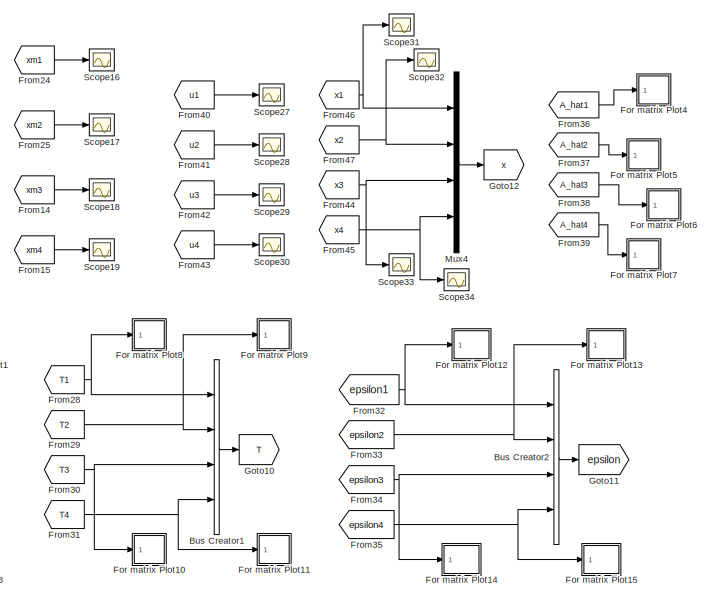
[diagram: Data Bus  - part 1/2, right side, full height]
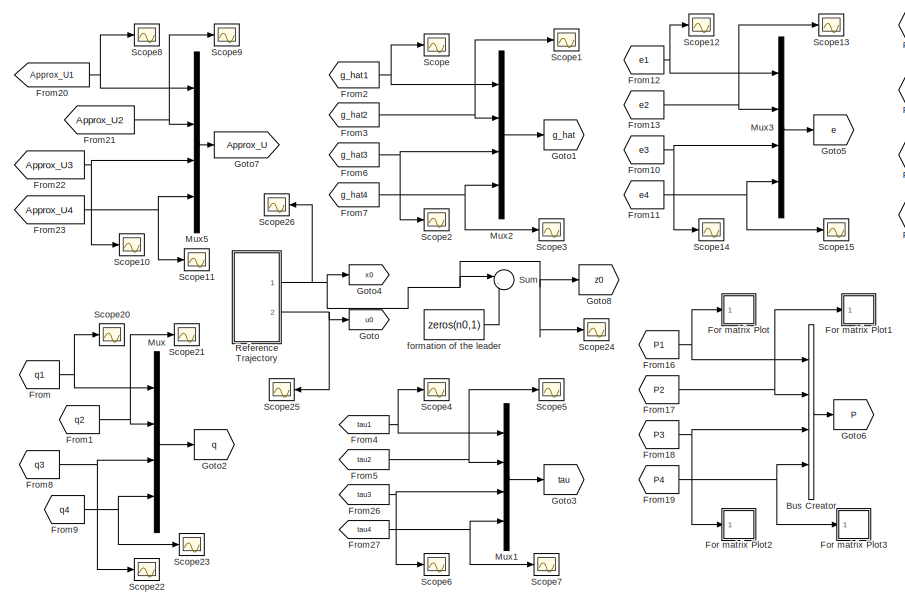
[diagram: Data Bus  - part 2/2, left side, full height]
BLOCK [SubSystem] Data Bus 
  Ports = []
  RequestExecContextInheritance = off
  Variant = off
BLOCK [BusCreator] Data Bus /Bus Creator
  DisplayOption = bar
  InheritFromInputs = on
  Inputs = 4
  OutDataTypeStr = Bus: P_bus
  Ports = [4, 1]
BLOCK [BusCreator] Data Bus /Bus Creator1
  DisplayOption = bar
  InheritFromInputs = on
  Inputs = 4
  OutDataTypeStr = Bus: T_bus
  Ports = [4, 1]
BLOCK [BusCreator] Data Bus /Bus Creator2
  DisplayOption = bar
  InheritFromInputs = on
  Inputs = 4
  OutDataTypeStr = Bus: epsilon_bus
  Ports = [4, 1]
BLOCK [SubSystem] Data Bus /For matrix Plot
  Ports = [1]
  RequestExecContextInheritance = off
  Variant = off
BLOCK [SubSystem] Data Bus /For matrix Plot/MATLAB Function
  ErrorFcn = Stateflow.Translate.translate
  PermitHierarchicalResolution = ExplicitOnly
  Ports = [1, 1]
  RequestExecContextInheritance = off
  SFBlockType = MATLAB Function
  TreatAsAtomicUnit = on
  Variant = off
BLOCK [Demux] Data Bus /For matrix Plot/MATLAB Function/ Demux 
  Outputs = 1
  Ports = [1, 1]
BLOCK [S-Function] Data Bus /For matrix Plot/MATLAB Function/ SFunction 
  EnableBusSupport = on
  FunctionName = sf_sfun
  PortCounts = [1 2]
  Ports = [1, 2]
  SFcnIsStateOwnerBlock = off
  SFunctionDeploymentMode = off
  Tag = Stateflow S-Function CAMFC2_01_WMR01 65
BLOCK [Terminator] Data Bus /For matrix Plot/MATLAB Function/ Terminator 
BLOCK [Inport] Data Bus /For matrix Plot/MATLAB Function/u
  IconDisplay = Port number
BLOCK [Outport] Data Bus /For matrix Plot/MATLAB Function/y
  IconDisplay = Port number
BLOCK [Inport] Data Bus /For matrix Plot/P
  IconDisplay = Port number
BLOCK [Scope] Data Bus /For matrix Plot/Scope24
  NumInputPorts = 1
  Ports = [1]
  ScopeSpecificationString = C++SS(StrPVP('Location','[188, 390, 512, 629]'),StrPVP('Open','off'),MxPVP('AxesTitles',53,'struct(''axes1'',''%<SignalLabel>'')'),MxPVP('ScopeGraphics',56,'struct(''FigureColor'',''[0.5 0.5 0.5]'',''AxesColor'',''[0 0 0]'',''AxesTickColor'',''[1 1 1]'',''LineColors'',''[1 1 0;1 0 1;0 1 1;1 0 0;0 1 0;0 0 1]'',''LineStyles'',''-|-|-|-|-|-'',''LineWidths'',''[0.5 0.5 0.5 0.5 0.5 0.5]'',''MarkerStyle...<+263ch>
BLOCK [ToWorkspace] Data Bus /For matrix Plot/To Workspace
  MaxDataPoints = inf
  Ports = [1]
  SampleTime = -1
  SaveFormat = Structure With Time
  VariableName = P1
BLOCK [SubSystem] Data Bus /For matrix Plot1
  Ports = [1]
  RequestExecContextInheritance = off
  Variant = off
BLOCK [SubSystem] Data Bus /For matrix Plot1/MATLAB Function
  ErrorFcn = Stateflow.Translate.translate
  PermitHierarchicalResolution = ExplicitOnly
  Ports = [1, 1]
  RequestExecContextInheritance = off
  SFBlockType = MATLAB Function
  TreatAsAtomicUnit = on
  Variant = off
BLOCK [Demux] Data Bus /For matrix Plot1/MATLAB Function/ Demux 
  Outputs = 1
  Ports = [1, 1]
BLOCK [S-Function] Data Bus /For matrix Plot1/MATLAB Function/ SFunction 
  EnableBusSupport = on
  FunctionName = sf_sfun
  PortCounts = [1 2]
  Ports = [1, 2]
  SFcnIsStateOwnerBlock = off
  SFunctionDeploymentMode = off
  Tag = Stateflow S-Function CAMFC2_01_WMR01 54
BLOCK [Terminator] Data Bus /For matrix Plot1/MATLAB Function/ Terminator 
BLOCK [Inport] Data Bus /For matrix Plot1/MATLAB Function/u
  IconDisplay = Port number
BLOCK [Outport] Data Bus /For matrix Plot1/MATLAB Function/y
  IconDisplay = Port number
BLOCK [Inport] Data Bus /For matrix Plot1/P
  IconDisplay = Port number
BLOCK [Scope] Data Bus /For matrix Plot1/Scope24
  NumInputPorts = 1
  Ports = [1]
  ScopeSpecificationString = Simulink.scopes.TimeScopeBlockCfg('CurrentConfiguration', extmgr.ConfigurationSet(extmgr.Configuration('Core','General UI',true),extmgr.Configuration('Core','Source UI',true),extmgr.Configuration('Sources','WiredSimulink',true,'DataLoggingVariableName','z1','DataLoggingSaveFormat','StructureWithTime','DataLoggingDecimation','1','DataLoggingDecimateData',true),extmgr.Configuration('Visuals','Time D...<+1981ch>
BLOCK [ToWorkspace] Data Bus /For matrix Plot1/To Workspace
  MaxDataPoints = inf
  Ports = [1]
  SampleTime = -1
  SaveFormat = Structure With Time
  VariableName = P2
BLOCK [SubSystem] Data Bus /For matrix Plot10
  Ports = [1]
  RequestExecContextInheritance = off
  Variant = off
BLOCK [SubSystem] Data Bus /For matrix Plot10/MATLAB Function
  ErrorFcn = Stateflow.Translate.translate
  PermitHierarchicalResolution = ExplicitOnly
  Ports = [1, 1]
  RequestExecContextInheritance = off
  SFBlockType = MATLAB Function
  TreatAsAtomicUnit = on
  Variant = off
BLOCK [Demux] Data Bus /For matrix Plot10/MATLAB Function/ Demux 
  Outputs = 1
  Ports = [1, 1]
BLOCK [S-Function] Data Bus /For matrix Plot10/MATLAB Function/ SFunction 
  EnableBusSupport = on
  FunctionName = sf_sfun
  PortCounts = [1 2]
  Ports = [1, 2]
  SFcnIsStateOwnerBlock = off
  SFunctionDeploymentMode = off
  Tag = Stateflow S-Function CAMFC2_01_WMR01 66
BLOCK [Terminator] Data Bus /For matrix Plot10/MATLAB Function/ Terminator 
BLOCK [Inport] Data Bus /For matrix Plot10/MATLAB Function/u
  IconDisplay = Port number
BLOCK [Outport] Data Bus /For matrix Plot10/MATLAB Function/y
  IconDisplay = Port number
BLOCK [Scope] Data Bus /For matrix Plot10/Scope24
  NumInputPorts = 1
  Ports = [1]
  ScopeSpecificationString = Simulink.scopes.TimeScopeBlockCfg('CurrentConfiguration', extmgr.ConfigurationSet(extmgr.Configuration('Core','General UI',true),extmgr.Configuration('Core','Source UI',true),extmgr.Configuration('Sources','WiredSimulink',true,'DataLoggingVariableName','z6','DataLoggingSaveFormat','StructureWithTime','DataLoggingDecimation','1','DataLoggingDecimateData',true),extmgr.Configuration('Visuals','Time D...<+1830ch>
BLOCK [Inport] Data Bus /For matrix Plot10/T
  IconDisplay = Port number
BLOCK [ToWorkspace] Data Bus /For matrix Plot10/To Workspace
  MaxDataPoints = inf
  Ports = [1]
  SampleTime = -1
  SaveFormat = Structure With Time
  VariableName = T3
BLOCK [SubSystem] Data Bus /For matrix Plot11
  Ports = [1]
  RequestExecContextInheritance = off
  Variant = off
BLOCK [SubSystem] Data Bus /For matrix Plot11/MATLAB Function
  ErrorFcn = Stateflow.Translate.translate
  PermitHierarchicalResolution = ExplicitOnly
  Ports = [1, 1]
  RequestExecContextInheritance = off
  SFBlockType = MATLAB Function
  TreatAsAtomicUnit = on
  Variant = off
BLOCK [Demux] Data Bus /For matrix Plot11/MATLAB Function/ Demux 
  Outputs = 1
  Ports = [1, 1]
BLOCK [S-Function] Data Bus /For matrix Plot11/MATLAB Function/ SFunction 
  EnableBusSupport = on
  FunctionName = sf_sfun
  PortCounts = [1 2]
  Ports = [1, 2]
  SFcnIsStateOwnerBlock = off
  SFunctionDeploymentMode = off
  Tag = Stateflow S-Function CAMFC2_01_WMR01 67
BLOCK [Terminator] Data Bus /For matrix Plot11/MATLAB Function/ Terminator 
BLOCK [Inport] Data Bus /For matrix Plot11/MATLAB Function/u
  IconDisplay = Port number
BLOCK [Outport] Data Bus /For matrix Plot11/MATLAB Function/y
  IconDisplay = Port number
BLOCK [Scope] Data Bus /For matrix Plot11/Scope24
  NumInputPorts = 1
  Ports = [1]
  ScopeSpecificationString = Simulink.scopes.TimeScopeBlockCfg('CurrentConfiguration', extmgr.ConfigurationSet(extmgr.Configuration('Core','General UI',true),extmgr.Configuration('Core','Source UI',true),extmgr.Configuration('Sources','WiredSimulink',true,'DataLoggingVariableName','z7','DataLoggingSaveFormat','StructureWithTime','DataLoggingDecimation','1','DataLoggingDecimateData',true),extmgr.Configuration('Visuals','Time D...<+1809ch>
BLOCK [Inport] Data Bus /For matrix Plot11/T
  IconDisplay = Port number
BLOCK [ToWorkspace] Data Bus /For matrix Plot11/To Workspace
  MaxDataPoints = inf
  Ports = [1]
  SampleTime = -1
  SaveFormat = Structure With Time
  VariableName = T4
BLOCK [SubSystem] Data Bus /For matrix Plot12
  Ports = [1]
  RequestExecContextInheritance = off
  Variant = off
BLOCK [SubSystem] Data Bus /For matrix Plot12/MATLAB Function
  ErrorFcn = Stateflow.Translate.translate
  PermitHierarchicalResolution = ExplicitOnly
  Ports = [1, 1]
  RequestExecContextInheritance = off
  SFBlockType = MATLAB Function
  TreatAsAtomicUnit = on
  Variant = off
BLOCK [Demux] Data Bus /For matrix Plot12/MATLAB Function/ Demux 
  Outputs = 1
  Ports = [1, 1]
BLOCK [S-Function] Data Bus /For matrix Plot12/MATLAB Function/ SFunction 
  EnableBusSupport = on
  FunctionName = sf_sfun
  PortCounts = [1 2]
  Ports = [1, 2]
  SFcnIsStateOwnerBlock = off
  SFunctionDeploymentMode = off
  Tag = Stateflow S-Function CAMFC2_01_WMR01 68
BLOCK [Terminator] Data Bus /For matrix Plot12/MATLAB Function/ Terminator 
BLOCK [Inport] Data Bus /For matrix Plot12/MATLAB Function/u
  IconDisplay = Port number
BLOCK [Outport] Data Bus /For matrix Plot12/MATLAB Function/y
  IconDisplay = Port number
BLOCK [Scope] Data Bus /For matrix Plot12/Scope24
  NumInputPorts = 1
  Ports = [1]
  ScopeSpecificationString = Simulink.scopes.TimeScopeBlockCfg('CurrentConfiguration', extmgr.ConfigurationSet(extmgr.Configuration('Core','General UI',true),extmgr.Configuration('Core','Source UI',true),extmgr.Configuration('Sources','WiredSimulink',true,'DataLoggingVariableName','z12','DataLoggingSaveFormat','StructureWithTime','DataLoggingDecimation','1','DataLoggingDecimateData',true),extmgr.Configuration('Visuals','Time ...<+2066ch>
BLOCK [ToWorkspace] Data Bus /For matrix Plot12/To Workspace
  MaxDataPoints = inf
  Ports = [1]
  SampleTime = -1
  SaveFormat = Structure With Time
  VariableName = epsilon1
BLOCK [Inport] Data Bus /For matrix Plot12/epsilon
  IconDisplay = Port number
BLOCK [SubSystem] Data Bus /For matrix Plot13
  Ports = [1]
  RequestExecContextInheritance = off
  Variant = off
BLOCK [SubSystem] Data Bus /For matrix Plot13/MATLAB Function
  ErrorFcn = Stateflow.Translate.translate
  PermitHierarchicalResolution = ExplicitOnly
  Ports = [1, 1]
  RequestExecContextInheritance = off
  SFBlockType = MATLAB Function
  TreatAsAtomicUnit = on
  Variant = off
BLOCK [Demux] Data Bus /For matrix Plot13/MATLAB Function/ Demux 
  Outputs = 1
  Ports = [1, 1]
BLOCK [S-Function] Data Bus /For matrix Plot13/MATLAB Function/ SFunction 
  EnableBusSupport = on
  FunctionName = sf_sfun
  PortCounts = [1 2]
  Ports = [1, 2]
  SFcnIsStateOwnerBlock = off
  SFunctionDeploymentMode = off
  Tag = Stateflow S-Function CAMFC2_01_WMR01 70
BLOCK [Terminator] Data Bus /For matrix Plot13/MATLAB Function/ Terminator 
BLOCK [Inport] Data Bus /For matrix Plot13/MATLAB Function/u
  IconDisplay = Port number
BLOCK [Outport] Data Bus /For matrix Plot13/MATLAB Function/y
  IconDisplay = Port number
BLOCK [Scope] Data Bus /For matrix Plot13/Scope24
  NumInputPorts = 1
  Ports = [1]
  ScopeSpecificationString = C++SS(StrPVP('Location','[188, 390, 512, 629]'),StrPVP('Open','off'),MxPVP('AxesTitles',53,'struct(''axes1'',''%<SignalLabel>'')'),MxPVP('ScopeGraphics',56,'struct(''FigureColor'',''[0.5 0.5 0.5]'',''AxesColor'',''[0 0 0]'',''AxesTickColor'',''[1 1 1]'',''LineColors'',''[1 1 0;1 0 1;0 1 1;1 0 0;0 1 0;0 0 1]'',''LineStyles'',''-|-|-|-|-|-'',''LineWidths'',''[0.5 0.5 0.5 0.5 0.5 0.5]'',''MarkerStyle...<+265ch>  <repeated x5 — deduplicated; at blocks: Scope24>
BLOCK [ToWorkspace] Data Bus /For matrix Plot13/To Workspace
  MaxDataPoints = inf
  Ports = [1]
  SampleTime = -1
  SaveFormat = Structure With Time
  VariableName = epsilon2
BLOCK [Inport] Data Bus /For matrix Plot13/epsilon
  IconDisplay = Port number
BLOCK [SubSystem] Data Bus /For matrix Plot14
  Ports = [1]
  RequestExecContextInheritance = off
  Variant = off
BLOCK [SubSystem] Data Bus /For matrix Plot14/MATLAB Function
  ErrorFcn = Stateflow.Translate.translate
  PermitHierarchicalResolution = ExplicitOnly
  Ports = [1, 1]
  RequestExecContextInheritance = off
  SFBlockType = MATLAB Function
  TreatAsAtomicUnit = on
  Variant = off
BLOCK [Demux] Data Bus /For matrix Plot14/MATLAB Function/ Demux 
  Outputs = 1
  Ports = [1, 1]
BLOCK [S-Function] Data Bus /For matrix Plot14/MATLAB Function/ SFunction 
  EnableBusSupport = on
  FunctionName = sf_sfun
  PortCounts = [1 2]
  Ports = [1, 2]
  SFcnIsStateOwnerBlock = off
  SFunctionDeploymentMode = off
  Tag = Stateflow S-Function CAMFC2_01_WMR01 73
BLOCK [Terminator] Data Bus /For matrix Plot14/MATLAB Function/ Terminator 
BLOCK [Inport] Data Bus /For matrix Plot14/MATLAB Function/u
  IconDisplay = Port number
BLOCK [Outport] Data Bus /For matrix Plot14/MATLAB Function/y
  IconDisplay = Port number
BLOCK [Scope] Data Bus /For matrix Plot14/Scope24
  NumInputPorts = 1
  Ports = [1]
BLOCK [ToWorkspace] Data Bus /For matrix Plot14/To Workspace
  MaxDataPoints = inf
  Ports = [1]
  SampleTime = -1
  SaveFormat = Structure With Time
  VariableName = epsilon3
BLOCK [Inport] Data Bus /For matrix Plot14/epsilon
  IconDisplay = Port number
BLOCK [SubSystem] Data Bus /For matrix Plot15
  Ports = [1]
  RequestExecContextInheritance = off
  Variant = off
BLOCK [SubSystem] Data Bus /For matrix Plot15/MATLAB Function
  ErrorFcn = Stateflow.Translate.translate
  PermitHierarchicalResolution = ExplicitOnly
  Ports = [1, 1]
  RequestExecContextInheritance = off
  SFBlockType = MATLAB Function
  TreatAsAtomicUnit = on
  Variant = off
BLOCK [Demux] Data Bus /For matrix Plot15/MATLAB Function/ Demux 
  Outputs = 1
  Ports = [1, 1]
BLOCK [S-Function] Data Bus /For matrix Plot15/MATLAB Function/ SFunction 
  EnableBusSupport = on
  FunctionName = sf_sfun
  PortCounts = [1 2]
  Ports = [1, 2]
  SFcnIsStateOwnerBlock = off
  SFunctionDeploymentMode = off
  Tag = Stateflow S-Function CAMFC2_01_WMR01 74
BLOCK [Terminator] Data Bus /For matrix Plot15/MATLAB Function/ Terminator 
BLOCK [Inport] Data Bus /For matrix Plot15/MATLAB Function/u
  IconDisplay = Port number
BLOCK [Outport] Data Bus /For matrix Plot15/MATLAB Function/y
  IconDisplay = Port number
BLOCK [Scope] Data Bus /For matrix Plot15/Scope24
  NumInputPorts = 1
  Ports = [1]
BLOCK [ToWorkspace] Data Bus /For matrix Plot15/To Workspace
  MaxDataPoints = inf
  Ports = [1]
  SampleTime = -1
  SaveFormat = Structure With Time
  VariableName = epsilon4
BLOCK [Inport] Data Bus /For matrix Plot15/epsilon
  IconDisplay = Port number
BLOCK [SubSystem] Data Bus /For matrix Plot2
  Ports = [1]
  RequestExecContextInheritance = off
  Variant = off
BLOCK [SubSystem] Data Bus /For matrix Plot2/MATLAB Function
  ErrorFcn = Stateflow.Translate.translate
  PermitHierarchicalResolution = ExplicitOnly
  Ports = [1, 1]
  RequestExecContextInheritance = off
  SFBlockType = MATLAB Function
  TreatAsAtomicUnit = on
  Variant = off
BLOCK [Demux] Data Bus /For matrix Plot2/MATLAB Function/ Demux 
  Outputs = 1
  Ports = [1, 1]
BLOCK [S-Function] Data Bus /For matrix Plot2/MATLAB Function/ SFunction 
  EnableBusSupport = on
  FunctionName = sf_sfun
  PortCounts = [1 2]
  Ports = [1, 2]
  SFcnIsStateOwnerBlock = off
  SFunctionDeploymentMode = off
  Tag = Stateflow S-Function CAMFC2_01_WMR01 55
BLOCK [Terminator] Data Bus /For matrix Plot2/MATLAB Function/ Terminator 
BLOCK [Inport] Data Bus /For matrix Plot2/MATLAB Function/u
  IconDisplay = Port number
BLOCK [Outport] Data Bus /For matrix Plot2/MATLAB Function/y
  IconDisplay = Port number
BLOCK [Inport] Data Bus /For matrix Plot2/P
  IconDisplay = Port number
BLOCK [Scope] Data Bus /For matrix Plot2/Scope24
  NumInputPorts = 1
  Ports = [1]
  ScopeSpecificationString = C++SS(StrPVP('Location','[188, 390, 512, 629]'),StrPVP('Open','off'),MxPVP('AxesTitles',53,'struct(''axes1'',''%<SignalLabel>'')'),MxPVP('ScopeGraphics',56,'struct(''FigureColor'',''[0.5 0.5 0.5]'',''AxesColor'',''[0 0 0]'',''AxesTickColor'',''[1 1 1]'',''LineColors'',''[1 1 0;1 0 1;0 1 1;1 0 0;0 1 0;0 0 1]'',''LineStyles'',''-|-|-|-|-|-'',''LineWidths'',''[0.5 0.5 0.5 0.5 0.5 0.5]'',''MarkerStyle...<+264ch>  <repeated x3 — deduplicated; at blocks: Scope24>
BLOCK [ToWorkspace] Data Bus /For matrix Plot2/To Workspace
  MaxDataPoints = inf
  Ports = [1]
  SampleTime = -1
  SaveFormat = Structure With Time
  VariableName = P3
BLOCK [SubSystem] Data Bus /For matrix Plot3
  Ports = [1]
  RequestExecContextInheritance = off
  Variant = off
BLOCK [SubSystem] Data Bus /For matrix Plot3/MATLAB Function
  ErrorFcn = Stateflow.Translate.translate
  PermitHierarchicalResolution = ExplicitOnly
  Ports = [1, 1]
  RequestExecContextInheritance = off
  SFBlockType = MATLAB Function
  TreatAsAtomicUnit = on
  Variant = off
BLOCK [Demux] Data Bus /For matrix Plot3/MATLAB Function/ Demux 
  Outputs = 1
  Ports = [1, 1]
BLOCK [S-Function] Data Bus /For matrix Plot3/MATLAB Function/ SFunction 
  EnableBusSupport = on
  FunctionName = sf_sfun
  PortCounts = [1 2]
  Ports = [1, 2]
  SFcnIsStateOwnerBlock = off
  SFunctionDeploymentMode = off
  Tag = Stateflow S-Function CAMFC2_01_WMR01 56
BLOCK [Terminator] Data Bus /For matrix Plot3/MATLAB Function/ Terminator 
BLOCK [Inport] Data Bus /For matrix Plot3/MATLAB Function/u
  IconDisplay = Port number
BLOCK [Outport] Data Bus /For matrix Plot3/MATLAB Function/y
  IconDisplay = Port number
BLOCK [Inport] Data Bus /For matrix Plot3/P
  IconDisplay = Port number
BLOCK [Scope] Data Bus /For matrix Plot3/Scope24
  NumInputPorts = 1
  Ports = [1]
BLOCK [ToWorkspace] Data Bus /For matrix Plot3/To Workspace
  MaxDataPoints = inf
  Ports = [1]
  SampleTime = -1
  SaveFormat = Structure With Time
  VariableName = P4
BLOCK [SubSystem] Data Bus /For matrix Plot4
  Ports = [1]
  RequestExecContextInheritance = off
  Variant = off
BLOCK [Inport] Data Bus /For matrix Plot4/A_hat
  IconDisplay = Port number
BLOCK [SubSystem] Data Bus /For matrix Plot4/MATLAB Function
  ErrorFcn = Stateflow.Translate.translate
  PermitHierarchicalResolution = ExplicitOnly
  Ports = [1, 1]
  RequestExecContextInheritance = off
  SFBlockType = MATLAB Function
  TreatAsAtomicUnit = on
  Variant = off
BLOCK [Demux] Data Bus /For matrix Plot4/MATLAB Function/ Demux 
  Outputs = 1
  Ports = [1, 1]
BLOCK [S-Function] Data Bus /For matrix Plot4/MATLAB Function/ SFunction 
  EnableBusSupport = on
  FunctionName = sf_sfun
  PortCounts = [1 2]
  Ports = [1, 2]
  SFcnIsStateOwnerBlock = off
  SFunctionDeploymentMode = off
  Tag = Stateflow S-Function CAMFC2_01_WMR01 57
BLOCK [Terminator] Data Bus /For matrix Plot4/MATLAB Function/ Terminator 
BLOCK [Inport] Data Bus /For matrix Plot4/MATLAB Function/u
  IconDisplay = Port number
BLOCK [Outport] Data Bus /For matrix Plot4/MATLAB Function/y
  IconDisplay = Port number
BLOCK [Scope] Data Bus /For matrix Plot4/Scope24
  NumInputPorts = 1
  Ports = [1]
  ScopeSpecificationString = Simulink.scopes.TimeScopeBlockCfg('CurrentConfiguration', extmgr.ConfigurationSet(extmgr.Configuration('Core','General UI',true),extmgr.Configuration('Core','Source UI',true),extmgr.Configuration('Sources','WiredSimulink',true,'DataLoggingVariableName','z8','DataLoggingSaveFormat','StructureWithTime','DataLoggingDecimation','1','DataLoggingDecimateData',true),extmgr.Configuration('Visuals','Time D...<+1979ch>
BLOCK [ToWorkspace] Data Bus /For matrix Plot4/To Workspace
  MaxDataPoints = inf
  Ports = [1]
  SampleTime = -1
  SaveFormat = Structure With Time
  VariableName = A_hat1
BLOCK [SubSystem] Data Bus /For matrix Plot5
  Ports = [1]
  RequestExecContextInheritance = off
  Variant = off
BLOCK [Inport] Data Bus /For matrix Plot5/A_hat
  IconDisplay = Port number
BLOCK [SubSystem] Data Bus /For matrix Plot5/MATLAB Function
  ErrorFcn = Stateflow.Translate.translate
  PermitHierarchicalResolution = ExplicitOnly
  Ports = [1, 1]
  RequestExecContextInheritance = off
  SFBlockType = MATLAB Function
  TreatAsAtomicUnit = on
  Variant = off
BLOCK [Demux] Data Bus /For matrix Plot5/MATLAB Function/ Demux 
  Outputs = 1
  Ports = [1, 1]
BLOCK [S-Function] Data Bus /For matrix Plot5/MATLAB Function/ SFunction 
  EnableBusSupport = on
  FunctionName = sf_sfun
  PortCounts = [1 2]
  Ports = [1, 2]
  SFcnIsStateOwnerBlock = off
  SFunctionDeploymentMode = off
  Tag = Stateflow S-Function CAMFC2_01_WMR01 58
BLOCK [Terminator] Data Bus /For matrix Plot5/MATLAB Function/ Terminator 
BLOCK [Inport] Data Bus /For matrix Plot5/MATLAB Function/u
  IconDisplay = Port number
BLOCK [Outport] Data Bus /For matrix Plot5/MATLAB Function/y
  IconDisplay = Port number
BLOCK [Scope] Data Bus /For matrix Plot5/Scope24
  NumInputPorts = 1
  Ports = [1]
BLOCK [ToWorkspace] Data Bus /For matrix Plot5/To Workspace
  MaxDataPoints = inf
  Ports = [1]
  SampleTime = -1
  SaveFormat = Structure With Time
  VariableName = A_hat2
BLOCK [SubSystem] Data Bus /For matrix Plot6
  Ports = [1]
  RequestExecContextInheritance = off
  Variant = off
BLOCK [Inport] Data Bus /For matrix Plot6/A_hat
  IconDisplay = Port number
BLOCK [SubSystem] Data Bus /For matrix Plot6/MATLAB Function
  ErrorFcn = Stateflow.Translate.translate
  PermitHierarchicalResolution = ExplicitOnly
  Ports = [1, 1]
  RequestExecContextInheritance = off
  SFBlockType = MATLAB Function
  TreatAsAtomicUnit = on
  Variant = off
BLOCK [Demux] Data Bus /For matrix Plot6/MATLAB Function/ Demux 
  Outputs = 1
  Ports = [1, 1]
BLOCK [S-Function] Data Bus /For matrix Plot6/MATLAB Function/ SFunction 
  EnableBusSupport = on
  FunctionName = sf_sfun
  PortCounts = [1 2]
  Ports = [1, 2]
  SFcnIsStateOwnerBlock = off
  SFunctionDeploymentMode = off
  Tag = Stateflow S-Function CAMFC2_01_WMR01 59
BLOCK [Terminator] Data Bus /For matrix Plot6/MATLAB Function/ Terminator 
BLOCK [Inport] Data Bus /For matrix Plot6/MATLAB Function/u
  IconDisplay = Port number
BLOCK [Outport] Data Bus /For matrix Plot6/MATLAB Function/y
  IconDisplay = Port number
BLOCK [Scope] Data Bus /For matrix Plot6/Scope24
  NumInputPorts = 1
  Ports = [1]
BLOCK [ToWorkspace] Data Bus /For matrix Plot6/To Workspace
  MaxDataPoints = inf
  Ports = [1]
  SampleTime = -1
  SaveFormat = Structure With Time
  VariableName = A_hat3
BLOCK [SubSystem] Data Bus /For matrix Plot7
  Ports = [1]
  RequestExecContextInheritance = off
  Variant = off
BLOCK [Inport] Data Bus /For matrix Plot7/A_hat
  IconDisplay = Port number
BLOCK [SubSystem] Data Bus /For matrix Plot7/MATLAB Function
  ErrorFcn = Stateflow.Translate.translate
  PermitHierarchicalResolution = ExplicitOnly
  Ports = [1, 1]
  RequestExecContextInheritance = off
  SFBlockType = MATLAB Function
  TreatAsAtomicUnit = on
  Variant = off
BLOCK [Demux] Data Bus /For matrix Plot7/MATLAB Function/ Demux 
  Outputs = 1
  Ports = [1, 1]
BLOCK [S-Function] Data Bus /For matrix Plot7/MATLAB Function/ SFunction 
  EnableBusSupport = on
  FunctionName = sf_sfun
  PortCounts = [1 2]
  Ports = [1, 2]
  SFcnIsStateOwnerBlock = off
  SFunctionDeploymentMode = off
  Tag = Stateflow S-Function CAMFC2_01_WMR01 60
BLOCK [Terminator] Data Bus /For matrix Plot7/MATLAB Function/ Terminator 
BLOCK [Inport] Data Bus /For matrix Plot7/MATLAB Function/u
  IconDisplay = Port number
BLOCK [Outport] Data Bus /For matrix Plot7/MATLAB Function/y
  IconDisplay = Port number
BLOCK [Scope] Data Bus /For matrix Plot7/Scope24
  NumInputPorts = 1
  Ports = [1]
BLOCK [ToWorkspace] Data Bus /For matrix Plot7/To Workspace
  MaxDataPoints = inf
  Ports = [1]
  SampleTime = -1
  SaveFormat = Structure With Time
  VariableName = A_hat4
BLOCK [SubSystem] Data Bus /For matrix Plot8
  Ports = [1]
  RequestExecContextInheritance = off
  Variant = off
BLOCK [SubSystem] Data Bus /For matrix Plot8/MATLAB Function
  ErrorFcn = Stateflow.Translate.translate
  PermitHierarchicalResolution = ExplicitOnly
  Ports = [1, 1]
  RequestExecContextInheritance = off
  SFBlockType = MATLAB Function
  TreatAsAtomicUnit = on
  Variant = off
BLOCK [Demux] Data Bus /For matrix Plot8/MATLAB Function/ Demux 
  Outputs = 1
  Ports = [1, 1]
BLOCK [S-Function] Data Bus /For matrix Plot8/MATLAB Function/ SFunction 
  EnableBusSupport = on
  FunctionName = sf_sfun
  PortCounts = [1 2]
  Ports = [1, 2]
  SFcnIsStateOwnerBlock = off
  SFunctionDeploymentMode = off
  Tag = Stateflow S-Function CAMFC2_01_WMR01 61
BLOCK [Terminator] Data Bus /For matrix Plot8/MATLAB Function/ Terminator 
BLOCK [Inport] Data Bus /For matrix Plot8/MATLAB Function/u
  IconDisplay = Port number
BLOCK [Outport] Data Bus /For matrix Plot8/MATLAB Function/y
  IconDisplay = Port number
BLOCK [Scope] Data Bus /For matrix Plot8/Scope24
  NumInputPorts = 1
  Ports = [1]
  ScopeSpecificationString = Simulink.scopes.TimeScopeBlockCfg('CurrentConfiguration', extmgr.ConfigurationSet(extmgr.Configuration('Core','General UI',true),extmgr.Configuration('Core','Source UI',true),extmgr.Configuration('Sources','WiredSimulink',true,'DataLoggingVariableName','z4','DataLoggingSaveFormat','StructureWithTime','DataLoggingDecimation','1','DataLoggingDecimateData',true),extmgr.Configuration('Visuals','Time D...<+1855ch>
BLOCK [Inport] Data Bus /For matrix Plot8/T
  IconDisplay = Port number
BLOCK [ToWorkspace] Data Bus /For matrix Plot8/To Workspace
  MaxDataPoints = inf
  Ports = [1]
  SampleTime = -1
  SaveFormat = Structure With Time
  VariableName = T1
BLOCK [SubSystem] Data Bus /For matrix Plot9
  Ports = [1]
  RequestExecContextInheritance = off
  Variant = off
BLOCK [SubSystem] Data Bus /For matrix Plot9/MATLAB Function
  ErrorFcn = Stateflow.Translate.translate
  PermitHierarchicalResolution = ExplicitOnly
  Ports = [1, 1]
  RequestExecContextInheritance = off
  SFBlockType = MATLAB Function
  TreatAsAtomicUnit = on
  Variant = off
BLOCK [Demux] Data Bus /For matrix Plot9/MATLAB Function/ Demux 
  Outputs = 1
  Ports = [1, 1]
BLOCK [S-Function] Data Bus /For matrix Plot9/MATLAB Function/ SFunction 
  EnableBusSupport = on
  FunctionName = sf_sfun
  PortCounts = [1 2]
  Ports = [1, 2]
  SFcnIsStateOwnerBlock = off
  SFunctionDeploymentMode = off
  Tag = Stateflow S-Function CAMFC2_01_WMR01 62
BLOCK [Terminator] Data Bus /For matrix Plot9/MATLAB Function/ Terminator 
BLOCK [Inport] Data Bus /For matrix Plot9/MATLAB Function/u
  IconDisplay = Port number
BLOCK [Outport] Data Bus /For matrix Plot9/MATLAB Function/y
  IconDisplay = Port number
BLOCK [Scope] Data Bus /For matrix Plot9/Scope24
  NumInputPorts = 1
  Ports = [1]
  ScopeSpecificationString = Simulink.scopes.TimeScopeBlockCfg('CurrentConfiguration', extmgr.ConfigurationSet(extmgr.Configuration('Core','General UI',true),extmgr.Configuration('Core','Source UI',true),extmgr.Configuration('Sources','WiredSimulink',true,'DataLoggingVariableName','z5','DataLoggingSaveFormat','StructureWithTime','DataLoggingDecimation','1','DataLoggingDecimateData',true),extmgr.Configuration('Visuals','Time D...<+1830ch>
BLOCK [Inport] Data Bus /For matrix Plot9/T
  IconDisplay = Port number
BLOCK [ToWorkspace] Data Bus /For matrix Plot9/To Workspace
  MaxDataPoints = inf
  Ports = [1]
  SampleTime = -1
  SaveFormat = Structure With Time
  VariableName = T2
BLOCK [From] Data Bus /From
  GotoTag = q1
  TagVisibility = global
BLOCK [From] Data Bus /From1
  GotoTag = q2
  TagVisibility = global
BLOCK [From] Data Bus /From10
  GotoTag = e3
  TagVisibility = global
BLOCK [From] Data Bus /From11
  GotoTag = e4
  TagVisibility = global
BLOCK [From] Data Bus /From12
  GotoTag = e1
  TagVisibility = global
BLOCK [From] Data Bus /From13
  GotoTag = e2
  TagVisibility = global
BLOCK [From] Data Bus /From14
  GotoTag = xm3
  TagVisibility = global
BLOCK [From] Data Bus /From15
  GotoTag = xm4
  TagVisibility = global
BLOCK [From] Data Bus /From16
  GotoTag = P1
  TagVisibility = global
BLOCK [From] Data Bus /From17
  GotoTag = P2
  TagVisibility = global
BLOCK [From] Data Bus /From18
  GotoTag = P3
  TagVisibility = global
BLOCK [From] Data Bus /From19
  GotoTag = P4
  TagVisibility = global
BLOCK [From] Data Bus /From2
  GotoTag = g_hat1
  TagVisibility = global
BLOCK [From] Data Bus /From20
  GotoTag = Approx_U1
  TagVisibility = global
BLOCK [From] Data Bus /From21
  GotoTag = Approx_U2
  TagVisibility = global
BLOCK [From] Data Bus /From22
  GotoTag = Approx_U3
  TagVisibility = global
BLOCK [From] Data Bus /From23
  GotoTag = Approx_U4
  TagVisibility = global
BLOCK [From] Data Bus /From24
  GotoTag = xm1
  TagVisibility = global
BLOCK [From] Data Bus /From25
  GotoTag = xm2
  TagVisibility = global
BLOCK [From] Data Bus /From26
  GotoTag = tau3
  TagVisibility = global
BLOCK [From] Data Bus /From27
  GotoTag = tau4
  TagVisibility = global
BLOCK [From] Data Bus /From28
  GotoTag = T1
  TagVisibility = global
BLOCK [From] Data Bus /From29
  GotoTag = T2
  TagVisibility = global
BLOCK [From] Data Bus /From3
  GotoTag = g_hat2
  TagVisibility = global
BLOCK [From] Data Bus /From30
  GotoTag = T3
  TagVisibility = global
BLOCK [From] Data Bus /From31
  GotoTag = T4
  TagVisibility = global
BLOCK [From] Data Bus /From32
  GotoTag = epsilon1
  TagVisibility = global
BLOCK [From] Data Bus /From33
  GotoTag = epsilon2
  TagVisibility = global
BLOCK [From] Data Bus /From34
  GotoTag = epsilon3
  TagVisibility = global
BLOCK [From] Data Bus /From35
  GotoTag = epsilon4
  TagVisibility = global
BLOCK [From] Data Bus /From36
  GotoTag = A_hat1
  TagVisibility = global
BLOCK [From] Data Bus /From37
  GotoTag = A_hat2
  TagVisibility = global
BLOCK [From] Data Bus /From38
  GotoTag = A_hat3
  TagVisibility = global
BLOCK [From] Data Bus /From39
  GotoTag = A_hat4
  TagVisibility = global
BLOCK [From] Data Bus /From4
  GotoTag = tau1
  TagVisibility = global
BLOCK [From] Data Bus /From40
  GotoTag = u1
  TagVisibility = global
BLOCK [From] Data Bus /From41
  GotoTag = u2
  TagVisibility = global
BLOCK [From] Data Bus /From42
  GotoTag = u3
  TagVisibility = global
BLOCK [From] Data Bus /From43
  GotoTag = u4
  TagVisibility = global
BLOCK [From] Data Bus /From44
  GotoTag = x3
  TagVisibility = global
BLOCK [From] Data Bus /From45
  GotoTag = x4
  TagVisibility = global
BLOCK [From] Data Bus /From46
  GotoTag = x1
  TagVisibility = global
BLOCK [From] Data Bus /From47
  GotoTag = x2
  TagVisibility = global
BLOCK [From] Data Bus /From5
  GotoTag = tau2
  TagVisibility = global
BLOCK [From] Data Bus /From6
  GotoTag = g_hat3
  TagVisibility = global
BLOCK [From] Data Bus /From7
  GotoTag = g_hat4
  TagVisibility = global
BLOCK [From] Data Bus /From8
  GotoTag = q3
  TagVisibility = global
BLOCK [From] Data Bus /From9
  GotoTag = q4
  TagVisibility = global
BLOCK [Goto] Data Bus /Goto
  GotoTag = u0
  TagVisibility = global
BLOCK [Goto] Data Bus /Goto1
  GotoTag = g_hat
  TagVisibility = global
BLOCK [Goto] Data Bus /Goto10
  GotoTag = T
  TagVisibility = global
BLOCK [Goto] Data Bus /Goto11
  GotoTag = epsilon
  TagVisibility = global
BLOCK [Goto] Data Bus /Goto12
  GotoTag = x
  TagVisibility = global
BLOCK [Goto] Data Bus /Goto2
  GotoTag = q
  TagVisibility = global
BLOCK [Goto] Data Bus /Goto3
  GotoTag = tau
  TagVisibility = global
BLOCK [Goto] Data Bus /Goto4
  GotoTag = x0
  TagVisibility = global
BLOCK [Goto] Data Bus /Goto5
  GotoTag = e
  TagVisibility = global
BLOCK [Goto] Data Bus /Goto6
  GotoTag = P
  TagVisibility = global
BLOCK [Goto] Data Bus /Goto7
  GotoTag = Approx_U
  TagVisibility = global
BLOCK [Goto] Data Bus /Goto8
  GotoTag = z0
  TagVisibility = global
BLOCK [Mux] Data Bus /Mux
  DisplayOption = bar
  Ports = [4, 1]
BLOCK [Mux] Data Bus /Mux1
  DisplayOption = bar
  Ports = [4, 1]
BLOCK [Mux] Data Bus /Mux2
  DisplayOption = bar
  Ports = [4, 1]
BLOCK [Mux] Data Bus /Mux3
  DisplayOption = bar
  Ports = [4, 1]
BLOCK [Mux] Data Bus /Mux4
  DisplayOption = bar
  Ports = [4, 1]
BLOCK [Mux] Data Bus /Mux5
  DisplayOption = bar
  Ports = [4, 1]
BLOCK [SubSystem] Data Bus /Reference Trajectory
  Ports = [0, 2]
  RequestExecContextInheritance = off
  Variant = off
BLOCK [Clock] Data Bus /Reference Trajectory/Clock
BLOCK [Constant] Data Bus /Reference Trajectory/Constant
  Value = 0
BLOCK [Constant] Data Bus /Reference Trajectory/Constant1
BLOCK [Constant] Data Bus /Reference Trajectory/Constant5
  Value = 5
BLOCK [SubSystem] Data Bus /Reference Trajectory/Desired States
  Ports = [0, 1]
  RequestExecContextInheritance = off
  Variant = off
BLOCK [Clock] Data Bus /Reference Trajectory/Desired States/Clock
BLOCK [Constant] Data Bus /Reference Trajectory/Desired States/Constant
  Value = 5
BLOCK [Constant] Data Bus /Reference Trajectory/Desired States/Constant1
  Value = 3
BLOCK [Constant] Data Bus /Reference Trajectory/Desired States/Constant2
  Value = 30
BLOCK [SubSystem] Data Bus /Reference Trajectory/Desired States/MATLAB Function
  ErrorFcn = Stateflow.Translate.translate
  PermitHierarchicalResolution = ExplicitOnly
  Ports = [1, 1]
  RequestExecContextInheritance = off
  SFBlockType = MATLAB Function
  TreatAsAtomicUnit = on
  Variant = off
BLOCK [Demux] Data Bus /Reference Trajectory/Desired States/MATLAB Function/ Demux 
  Outputs = 1
  Ports = [1, 1]
BLOCK [S-Function] Data Bus /Reference Trajectory/Desired States/MATLAB Function/ SFunction 
  EnableBusSupport = on
  FunctionName = sf_sfun
  PortCounts = [1 2]
  Ports = [1, 2]
  SFcnIsStateOwnerBlock = off
  SFunctionDeploymentMode = off
  Tag = Stateflow S-Function CAMFC2_01_WMR01 52
BLOCK [Terminator] Data Bus /Reference Trajectory/Desired States/MATLAB Function/ Terminator 
BLOCK [Inport] Data Bus /Reference Trajectory/Desired States/MATLAB Function/t
  IconDisplay = Port number
BLOCK [Outport] Data Bus /Reference Trajectory/Desired States/MATLAB Function/y
  IconDisplay = Port number
BLOCK [Reference] Data Bus /Reference Trajectory/Desired States/Ramp  REF=simulink/Sources/Ramp
  Ports = [0, 1]
  SourceBlock = simulink/Sources/Ramp
  SourceProductBaseCode = SL
  SourceProductName = Simulink
  SourceType = Ramp
BLOCK [Scope] Data Bus /Reference Trajectory/Desired States/Scope
  NumInputPorts = 1
  Ports = [1]
  ScopeSpecificationString = Simulink.scopes.TimeScopeBlockCfg('CurrentConfiguration', extmgr.ConfigurationSet(extmgr.Configuration('Core','General UI',true),extmgr.Configuration('Core','Source UI',true),extmgr.Configuration('Sources','WiredSimulink',true,'DataLogging',true,'DataLoggingVariableName','x_d','DataLoggingSaveFormat','StructureWithTime','DataLoggingDecimation','1','DataLoggingDecimateData',true),extmgr.Configurati...<+1660ch>
BLOCK [Sin] Data Bus /Reference Trajectory/Desired States/Sine Wave
  Amplitude = 2.5
  Frequency = 0.5
  Phase = pi/2
  Ports = [0, 1]
  SampleTime = 0
BLOCK [Sin] Data Bus /Reference Trajectory/Desired States/Sine Wave1
  Amplitude = 5
  Frequency = 0.5
  Ports = [0, 1]
  SampleTime = 0
BLOCK [Outport] Data Bus /Reference Trajectory/Desired States/Xd
  IconDisplay = Port number
BLOCK [SubSystem] Data Bus /Reference Trajectory/Differentiator0
  Ports = [1, 1]
  RequestExecContextInheritance = off
  Variant = off
BLOCK [Outport] Data Bus /Reference Trajectory/Differentiator0/Dx_d
  IconDisplay = Port number
BLOCK [Integrator] Data Bus /Reference Trajectory/Differentiator0/Integrator
  InitialCondition = zeros(n0,1)
  Ports = [1, 1]
BLOCK [Integrator] Data Bus /Reference Trajectory/Differentiator0/Integrator1
  InitialCondition = zeros(n0,1)
  Ports = [1, 1]
BLOCK [SubSystem] Data Bus /Reference Trajectory/Differentiator0/Sliding differentiator
  ErrorFcn = Stateflow.Translate.translate
  PermitHierarchicalResolution = ExplicitOnly
  Ports = [2, 1]
  RequestExecContextInheritance = off
  SFBlockType = MATLAB Function
  TreatAsAtomicUnit = on
  Variant = off
BLOCK [Demux] Data Bus /Reference Trajectory/Differentiator0/Sliding differentiator/ Demux 
  Outputs = 1
  Ports = [1, 1]
BLOCK [S-Function] Data Bus /Reference Trajectory/Differentiator0/Sliding differentiator/ SFunction 
  EnableBusSupport = on
  FunctionName = sf_sfun
  Parameters = alpha,k1
  PortCounts = [2 2]
  Ports = [2, 2]
  SFcnIsStateOwnerBlock = off
  SFunctionDeploymentMode = off
  Tag = Stateflow S-Function CAMFC2_01_WMR01 53
BLOCK [Terminator] Data Bus /Reference Trajectory/Differentiator0/Sliding differentiator/ Terminator 
BLOCK [Inport] Data Bus /Reference Trajectory/Differentiator0/Sliding differentiator/e
  IconDisplay = Port number
  Port = 2
BLOCK [Outport] Data Bus /Reference Trajectory/Differentiator0/Sliding differentiator/u
  IconDisplay = Port number
BLOCK [Inport] Data Bus /Reference Trajectory/Differentiator0/Sliding differentiator/u1
  IconDisplay = Port number
BLOCK [SubSystem] Data Bus /Reference Trajectory/Differentiator0/Sliding differentiator1
  ErrorFcn = Stateflow.Translate.translate
  PermitHierarchicalResolution = ExplicitOnly
  Ports = [1, 1]
  RequestExecContextInheritance = off
  SFBlockType = MATLAB Function
  TreatAsAtomicUnit = on
  Variant = off
BLOCK [Demux] Data Bus /Reference Trajectory/Differentiator0/Sliding differentiator1/ Demux 
  Outputs = 1
  Ports = [1, 1]
BLOCK [S-Function] Data Bus /Reference Trajectory/Differentiator0/Sliding differentiator1/ SFunction 
  EnableBusSupport = on
  FunctionName = sf_sfun
  Parameters = alpha,k2
  PortCounts = [1 2]
  Ports = [1, 2]
  SFcnIsStateOwnerBlock = off
  SFunctionDeploymentMode = off
  Tag = Stateflow S-Function CAMFC2_01_WMR01 75
BLOCK [Terminator] Data Bus /Reference Trajectory/Differentiator0/Sliding differentiator1/ Terminator 
BLOCK [Outport] Data Bus /Reference Trajectory/Differentiator0/Sliding differentiator1/Du1
  IconDisplay = Port number
BLOCK [Inport] Data Bus /Reference Trajectory/Differentiator0/Sliding differentiator1/e
  IconDisplay = Port number
BLOCK [Sum] Data Bus /Reference Trajectory/Differentiator0/Sum
  IconShape = round
  InputSameDT = off
  Inputs = |-+
  OutDataTypeStr = Inherit: Inherit via internal rule
  Ports = [2, 1]
  SaturateOnIntegerOverflow = off
BLOCK [Inport] Data Bus /Reference Trajectory/Differentiator0/x_d
  IconDisplay = Port number
BLOCK [Mux] Data Bus /Reference Trajectory/Mux1
  DisplayOption = bar
  Inputs = 2
  Ports = [2, 1]
BLOCK [Scope] Data Bus /Reference Trajectory/Scope1
  NumInputPorts = 3
  Ports = [3]
  ScopeSpecificationString = Simulink.scopes.TimeScopeBlockCfg('CurrentConfiguration', extmgr.ConfigurationSet(extmgr.Configuration('Core','General UI',true),extmgr.Configuration('Core','Source UI',true),extmgr.Configuration('Sources','WiredSimulink',true,'DataLogging',true,'DataLoggingVariableName','Ref','DataLoggingSaveFormat','StructureWithTime','DataLoggingDecimation','1','DataLoggingDecimateData',true),extmgr.Configurati...<+3028ch>
BLOCK [Scope] Data Bus /Reference Trajectory/Scope30
  NumInputPorts = 1
  Ports = [1]
  ScopeSpecificationString = Simulink.scopes.TimeScopeBlockCfg('CurrentConfiguration', extmgr.ConfigurationSet(extmgr.Configuration('Core','General UI',true),extmgr.Configuration('Core','Source UI',true),extmgr.Configuration('Sources','WiredSimulink',true,'DataLogging',true,'DataLoggingVariableName','U0','DataLoggingSaveFormat','StructureWithTime','DataLoggingDecimation','1'),extmgr.Configuration('Visuals','Time Domain',true,...<+1694ch>
BLOCK [Step] Data Bus /Reference Trajectory/Step
  After = 5
  SampleTime = 0
  Time = 10
BLOCK [Step] Data Bus /Reference Trajectory/Step1
  After = 5
  SampleTime = 0
  Time = 10
BLOCK [SubSystem] Data Bus /Reference Trajectory/Subsystem
  Ports = [0, 3]
  RequestExecContextInheritance = off
  Variant = off
BLOCK [Clock] Data Bus /Reference Trajectory/Subsystem/Clock1
BLOCK [Constant] Data Bus /Reference Trajectory/Subsystem/Desired Position4
  Value = 0
  VectorParams1D = off
BLOCK [FromWorkspace] Data Bus /Reference Trajectory/Subsystem/From Workspace
  SampleTime = 0
  VariableName = RECT_X
  ZeroCross = on
BLOCK [FromWorkspace] Data Bus /Reference Trajectory/Subsystem/From Workspace1
  SampleTime = 0
  VariableName = RECT_Y
  ZeroCross = on
BLOCK [FromWorkspace] Data Bus /Reference Trajectory/Subsystem/From Workspace3
  SampleTime = 0
  VariableName = RECT_Z
  ZeroCross = on
BLOCK [Scope] Data Bus /Reference Trajectory/Subsystem/Scope2
  NumInputPorts = 3
  Ports = [3]
  ScopeSpecificationString = C++SS(StrPVP('Location','[6, 49, 1360, 737]'),StrPVP('Open','off'),MxPVP('AxesTitles',53,'struct(''axes1'',''%<SignalLabel>'',''axes2'',''%<SignalLabel>'',''axes3'',''%<SignalLabel>'')'),MxPVP('ScopeGraphics',56,'struct(''FigureColor'',''[0.5 0.5 0.5]'',''AxesColor'',''[0 0 0]'',''AxesTickColor'',''[1 1 1]'',''LineColors'',''[1 1 0;1 0 1;0 1 1;1 0 0;0 1 0;0 0 1]'',''LineStyles'',''-|-|-|-|-|-'',''...<+404ch>
BLOCK [Switch] Data Bus /Reference Trajectory/Subsystem/Switch
  Criteria = u2 > Threshold
  InputSameDT = off
  SaturateOnIntegerOverflow = off
  Threshold = 10
BLOCK [Outport] Data Bus /Reference Trajectory/Subsystem/Xd
  IconDisplay = Port number
BLOCK [Outport] Data Bus /Reference Trajectory/Subsystem/Yd
  IconDisplay = Port number
  Port = 2
BLOCK [Outport] Data Bus /Reference Trajectory/Subsystem/Zd
  IconDisplay = Port number
  Port = 3
BLOCK [TransferFcn] Data Bus /Reference Trajectory/Transfer Fcn
  Denominator = [1 0.1]
  Numerator = [0.1]
BLOCK [Outport] Data Bus /Reference Trajectory/U0
  IconDisplay = Port number
  Port = 2
BLOCK [Outport] Data Bus /Reference Trajectory/X0
  IconDisplay = Port number
BLOCK [Sin] Data Bus /Reference Trajectory/X1
  Amplitude = 5
  Frequency = 0.1
  Ports = [0, 1]
  SampleTime = 0
BLOCK [Scope] Data Bus /Scope
  NumInputPorts = 1
  Ports = [1]
  ScopeSpecificationString = Simulink.scopes.TimeScopeBlockCfg('CurrentConfiguration', extmgr.ConfigurationSet(extmgr.Configuration('Core','General UI',true),extmgr.Configuration('Core','Source UI',true),extmgr.Configuration('Sources','WiredSimulink',true,'DataLogging',true,'DataLoggingVariableName','g_hat1','DataLoggingSaveFormat','StructureWithTime','DataLoggingDecimation','1','DataLoggingDecimateData',true),extmgr.Configur...<+1790ch>
BLOCK [Scope] Data Bus /Scope1
  NumInputPorts = 1
  Ports = [1]
  ScopeSpecificationString = Simulink.scopes.TimeScopeBlockCfg('CurrentConfiguration', extmgr.ConfigurationSet(extmgr.Configuration('Core','General UI',true),extmgr.Configuration('Core','Source UI',true),extmgr.Configuration('Sources','WiredSimulink',true,'DataLogging',true,'DataLoggingVariableName','g_hat2','DataLoggingSaveFormat','StructureWithTime','DataLoggingDecimation','1','DataLoggingDecimateData',true),extmgr.Configur...<+1790ch>
BLOCK [Scope] Data Bus /Scope10
  NumInputPorts = 1
  Ports = [1]
  ScopeSpecificationString = Simulink.scopes.TimeScopeBlockCfg('CurrentConfiguration', extmgr.ConfigurationSet(extmgr.Configuration('Core','General UI',true),extmgr.Configuration('Core','Source UI',true),extmgr.Configuration('Sources','WiredSimulink',true,'DataLogging',true,'DataLoggingVariableName','Approx_U3','DataLoggingSaveFormat','StructureWithTime','DataLoggingDecimation','1','DataLoggingDecimateData',true),extmgr.Confi...<+1711ch>
BLOCK [Scope] Data Bus /Scope11
  NumInputPorts = 1
  Ports = [1]
  ScopeSpecificationString = C++SS(StrPVP('Location','[188, 390, 512, 629]'),StrPVP('Open','off'),MxPVP('AxesTitles',53,'struct(''axes1'',''%<SignalLabel>'')'),MxPVP('ScopeGraphics',56,'struct(''FigureColor'',''[0.5 0.5 0.5]'',''AxesColor'',''[0 0 0]'',''AxesTickColor'',''[1 1 1]'',''LineColors'',''[1 1 0;1 0 1;0 1 1;1 0 0;0 1 0;0 0 1]'',''LineStyles'',''-|-|-|-|-|-'',''LineWidths'',''[0.5 0.5 0.5 0.5 0.5 0.5]'',''MarkerStyle...<+302ch>
BLOCK [Scope] Data Bus /Scope12
  NumInputPorts = 1
  Ports = [1]
  ScopeSpecificationString = Simulink.scopes.TimeScopeBlockCfg('CurrentConfiguration', extmgr.ConfigurationSet(extmgr.Configuration('Core','General UI',true),extmgr.Configuration('Core','Source UI',true),extmgr.Configuration('Sources','WiredSimulink',true,'DataLogging',true,'DataLoggingVariableName','e1','DataLoggingSaveFormat','StructureWithTime','DataLoggingDecimation','1','DataLoggingDecimateData',true),extmgr.Configuratio...<+1764ch>
BLOCK [Scope] Data Bus /Scope13
  NumInputPorts = 1
  Ports = [1]
  ScopeSpecificationString = Simulink.scopes.TimeScopeBlockCfg('CurrentConfiguration', extmgr.ConfigurationSet(extmgr.Configuration('Core','General UI',true),extmgr.Configuration('Core','Source UI',true),extmgr.Configuration('Sources','WiredSimulink',true,'DataLogging',true,'DataLoggingVariableName','e2','DataLoggingSaveFormat','StructureWithTime','DataLoggingDecimation','1','DataLoggingDecimateData',true),extmgr.Configuratio...<+1760ch>
BLOCK [Scope] Data Bus /Scope14
  NumInputPorts = 1
  Ports = [1]
  ScopeSpecificationString = Simulink.scopes.TimeScopeBlockCfg('CurrentConfiguration', extmgr.ConfigurationSet(extmgr.Configuration('Core','General UI',true),extmgr.Configuration('Core','Source UI',true),extmgr.Configuration('Sources','WiredSimulink',true,'DataLogging',true,'DataLoggingVariableName','e3','DataLoggingSaveFormat','StructureWithTime','DataLoggingDecimation','1','DataLoggingDecimateData',true),extmgr.Configuratio...<+1764ch>
BLOCK [Scope] Data Bus /Scope15
  NumInputPorts = 1
  Ports = [1]
  ScopeSpecificationString = Simulink.scopes.TimeScopeBlockCfg('CurrentConfiguration', extmgr.ConfigurationSet(extmgr.Configuration('Core','General UI',true),extmgr.Configuration('Core','Source UI',true),extmgr.Configuration('Sources','WiredSimulink',true,'DataLogging',true,'DataLoggingVariableName','e4','DataLoggingSaveFormat','StructureWithTime','DataLoggingDecimation','1','DataLoggingDecimateData',true),extmgr.Configuratio...<+1764ch>
BLOCK [Scope] Data Bus /Scope16
  NumInputPorts = 1
  Ports = [1]
  ScopeSpecificationString = Simulink.scopes.TimeScopeBlockCfg('CurrentConfiguration', extmgr.ConfigurationSet(extmgr.Configuration('Core','General UI',true),extmgr.Configuration('Core','Source UI',true),extmgr.Configuration('Sources','WiredSimulink',true,'DataLogging',true,'DataLoggingVariableName','x1','DataLoggingSaveFormat','StructureWithTime','DataLoggingDecimation','1','DataLoggingDecimateData',true),extmgr.Configuratio...<+1819ch>
BLOCK [Scope] Data Bus /Scope17
  NumInputPorts = 1
  Ports = [1]
  ScopeSpecificationString = Simulink.scopes.TimeScopeBlockCfg('CurrentConfiguration', extmgr.ConfigurationSet(extmgr.Configuration('Core','General UI',true),extmgr.Configuration('Core','Source UI',true),extmgr.Configuration('Sources','WiredSimulink',true,'DataLogging',true,'DataLoggingVariableName','x2','DataLoggingSaveFormat','StructureWithTime','DataLoggingDecimation','1','DataLoggingDecimateData',true),extmgr.Configuratio...<+1768ch>
BLOCK [Scope] Data Bus /Scope18
  NumInputPorts = 1
  Ports = [1]
  ScopeSpecificationString = Simulink.scopes.TimeScopeBlockCfg('CurrentConfiguration', extmgr.ConfigurationSet(extmgr.Configuration('Core','General UI',true),extmgr.Configuration('Core','Source UI',true),extmgr.Configuration('Sources','WiredSimulink',true,'DataLogging',true,'DataLoggingVariableName','x3','DataLoggingSaveFormat','StructureWithTime','DataLoggingDecimation','1','DataLoggingDecimateData',true),extmgr.Configuratio...<+1762ch>
BLOCK [Scope] Data Bus /Scope19
  NumInputPorts = 1
  Ports = [1]
  ScopeSpecificationString = Simulink.scopes.TimeScopeBlockCfg('CurrentConfiguration', extmgr.ConfigurationSet(extmgr.Configuration('Core','General UI',true),extmgr.Configuration('Core','Source UI',true),extmgr.Configuration('Sources','WiredSimulink',true,'DataLogging',true,'DataLoggingVariableName','x4','DataLoggingSaveFormat','StructureWithTime','DataLoggingDecimation','1','DataLoggingDecimateData',true),extmgr.Configuratio...<+1764ch>
BLOCK [Scope] Data Bus /Scope2
  NumInputPorts = 1
  Ports = [1]
  ScopeSpecificationString = Simulink.scopes.TimeScopeBlockCfg('CurrentConfiguration', extmgr.ConfigurationSet(extmgr.Configuration('Core','General UI',true),extmgr.Configuration('Core','Source UI',true),extmgr.Configuration('Sources','WiredSimulink',true,'DataLogging',true,'DataLoggingVariableName','g_hat3','DataLoggingSaveFormat','StructureWithTime','DataLoggingDecimation','1','DataLoggingDecimateData',true),extmgr.Configur...<+1746ch>
BLOCK [Scope] Data Bus /Scope20
  NumInputPorts = 1
  Ports = [1]
  ScopeSpecificationString = Simulink.scopes.TimeScopeBlockCfg('CurrentConfiguration', extmgr.ConfigurationSet(extmgr.Configuration('Core','General UI',true),extmgr.Configuration('Core','Source UI',true),extmgr.Configuration('Sources','WiredSimulink',true,'DataLogging',true,'DataLoggingVariableName','q1','DataLoggingSaveFormat','StructureWithTime','DataLoggingDecimation','1','DataLoggingDecimateData',true),extmgr.Configuratio...<+1749ch>
BLOCK [Scope] Data Bus /Scope21
  NumInputPorts = 1
  Ports = [1]
  ScopeSpecificationString = Simulink.scopes.TimeScopeBlockCfg('CurrentConfiguration', extmgr.ConfigurationSet(extmgr.Configuration('Core','General UI',true),extmgr.Configuration('Core','Source UI',true),extmgr.Configuration('Sources','WiredSimulink',true,'DataLogging',true,'DataLoggingVariableName','q2','DataLoggingSaveFormat','StructureWithTime','DataLoggingDecimation','1','DataLoggingDecimateData',true),extmgr.Configuratio...<+1677ch>
BLOCK [Scope] Data Bus /Scope22
  NumInputPorts = 1
  Ports = [1]
  ScopeSpecificationString = C++SS(StrPVP('Location','[188, 390, 512, 629]'),StrPVP('Open','off'),MxPVP('AxesTitles',53,'struct(''axes1'',''%<SignalLabel>'')'),MxPVP('ScopeGraphics',56,'struct(''FigureColor'',''[0.5 0.5 0.5]'',''AxesColor'',''[0 0 0]'',''AxesTickColor'',''[1 1 1]'',''LineColors'',''[1 1 0;1 0 1;0 1 1;1 0 0;0 1 0;0 0 1]'',''LineStyles'',''-|-|-|-|-|-'',''LineWidths'',''[0.5 0.5 0.5 0.5 0.5 0.5]'',''MarkerStyle...<+295ch>  <repeated x3 — deduplicated; at blocks: Scope22, Scope23, Scope25>
BLOCK [Scope] Data Bus /Scope23
  NumInputPorts = 1
  Ports = [1]
BLOCK [Scope] Data Bus /Scope24
  NumInputPorts = 1
  Ports = [1]
  ScopeSpecificationString = Simulink.scopes.TimeScopeBlockCfg('CurrentConfiguration', extmgr.ConfigurationSet(extmgr.Configuration('Core','General UI',true),extmgr.Configuration('Core','Source UI',true),extmgr.Configuration('Sources','WiredSimulink',true,'DataLogging',true,'DataLoggingVariableName','z0','DataLoggingSaveFormat','StructureWithTime','DataLoggingDecimation','1','DataLoggingDecimateData',true),extmgr.Configuratio...<+1670ch>
BLOCK [Scope] Data Bus /Scope25
  NumInputPorts = 1
  Ports = [1]
BLOCK [Scope] Data Bus /Scope26
  NumInputPorts = 1
  Ports = [1]
  ScopeSpecificationString = Simulink.scopes.TimeScopeBlockCfg('CurrentConfiguration', extmgr.ConfigurationSet(extmgr.Configuration('Core','General UI',true),extmgr.Configuration('Core','Source UI',true),extmgr.Configuration('Sources','WiredSimulink',true,'DataLogging',true,'DataLoggingVariableName','x0','DataLoggingSaveFormat','StructureWithTime','DataLoggingDecimation','1','DataLoggingDecimateData',true),extmgr.Configuratio...<+1758ch>
BLOCK [Scope] Data Bus /Scope27
  NumInputPorts = 1
  Ports = [1]
  ScopeSpecificationString = Simulink.scopes.TimeScopeBlockCfg('CurrentConfiguration', extmgr.ConfigurationSet(extmgr.Configuration('Core','General UI',true),extmgr.Configuration('Core','Source UI',true),extmgr.Configuration('Sources','WiredSimulink',true,'DataLogging',true,'DataLoggingVariableName','u','DataLoggingSaveFormat','StructureWithTime','DataLoggingDecimation','1','DataLoggingDecimateData',true),extmgr.Configuration...<+1822ch>
BLOCK [Scope] Data Bus /Scope28
  NumInputPorts = 1
  Ports = [1]
  ScopeSpecificationString = Simulink.scopes.TimeScopeBlockCfg('CurrentConfiguration', extmgr.ConfigurationSet(extmgr.Configuration('Core','General UI',true),extmgr.Configuration('Core','Source UI',true),extmgr.Configuration('Sources','WiredSimulink',true,'DataLogging',true,'DataLoggingVariableName','u1','DataLoggingSaveFormat','StructureWithTime','DataLoggingDecimation','1','DataLoggingDecimateData',true),extmgr.Configuratio...<+1743ch>
BLOCK [Scope] Data Bus /Scope29
  NumInputPorts = 1
  Ports = [1]
  ScopeSpecificationString = Simulink.scopes.TimeScopeBlockCfg('CurrentConfiguration', extmgr.ConfigurationSet(extmgr.Configuration('Core','General UI',true),extmgr.Configuration('Core','Source UI',true),extmgr.Configuration('Sources','WiredSimulink',true,'DataLogging',true,'DataLoggingVariableName','u3','DataLoggingSaveFormat','StructureWithTime','DataLoggingDecimation','1','DataLoggingDecimateData',true),extmgr.Configuratio...<+1770ch>
BLOCK [Scope] Data Bus /Scope3
  NumInputPorts = 1
  Ports = [1]
  ScopeSpecificationString = Simulink.scopes.TimeScopeBlockCfg('CurrentConfiguration', extmgr.ConfigurationSet(extmgr.Configuration('Core','General UI',true),extmgr.Configuration('Core','Source UI',true),extmgr.Configuration('Sources','WiredSimulink',true,'DataLogging',true,'DataLoggingVariableName','g_hat4','DataLoggingSaveFormat','StructureWithTime','DataLoggingDecimation','1','DataLoggingDecimateData',true),extmgr.Configur...<+1746ch>
BLOCK [Scope] Data Bus /Scope30
  NumInputPorts = 1
  Ports = [1]
  ScopeSpecificationString = C++SS(StrPVP('Location','[5, 49, 1367, 737]'),StrPVP('Open','off'),StrPVP('ZoomMode','xonly'),MxPVP('AxesTitles',53,'struct(''axes1'',''%<SignalLabel>'')'),MxPVP('ScopeGraphics',56,'struct(''FigureColor'',''[0.5 0.5 0.5]'',''AxesColor'',''[0 0 0]'',''AxesTickColor'',''[1 1 1]'',''LineColors'',''[1 1 0;1 0 1;0 1 1;1 0 0;0 1 0;0 0 1]'',''LineStyles'',''-|-|-|-|-|-'',''LineWidths'',''[0.5 0.5 0.5 0.5...<+342ch>
BLOCK [Scope] Data Bus /Scope31
  NumInputPorts = 1
  Ports = [1]
  ScopeSpecificationString = Simulink.scopes.TimeScopeBlockCfg('CurrentConfiguration', extmgr.ConfigurationSet(extmgr.Configuration('Core','General UI',true),extmgr.Configuration('Core','Source UI',true),extmgr.Configuration('Sources','WiredSimulink',true,'DataLogging',true,'DataLoggingVariableName','xm1','DataLoggingSaveFormat','StructureWithTime','DataLoggingDecimation','1','DataLoggingDecimateData',true),extmgr.Configurati...<+1851ch>
BLOCK [Scope] Data Bus /Scope32
  NumInputPorts = 1
  Ports = [1]
  ScopeSpecificationString = Simulink.scopes.TimeScopeBlockCfg('CurrentConfiguration', extmgr.ConfigurationSet(extmgr.Configuration('Core','General UI',true),extmgr.Configuration('Core','Source UI',true),extmgr.Configuration('Sources','WiredSimulink',true,'DataLogging',true,'DataLoggingVariableName','xm2','DataLoggingSaveFormat','StructureWithTime','DataLoggingDecimation','1','DataLoggingDecimateData',true),extmgr.Configurati...<+1771ch>
BLOCK [Scope] Data Bus /Scope33
  NumInputPorts = 1
  Ports = [1]
  ScopeSpecificationString = Simulink.scopes.TimeScopeBlockCfg('CurrentConfiguration', extmgr.ConfigurationSet(extmgr.Configuration('Core','General UI',true),extmgr.Configuration('Core','Source UI',true),extmgr.Configuration('Sources','WiredSimulink',true,'DataLogging',true,'DataLoggingVariableName','xm3','DataLoggingSaveFormat','StructureWithTime','DataLoggingDecimation','1','DataLoggingDecimateData',true),extmgr.Configurati...<+1775ch>
BLOCK [Scope] Data Bus /Scope34
  NumInputPorts = 1
  Ports = [1]
  ScopeSpecificationString = Simulink.scopes.TimeScopeBlockCfg('CurrentConfiguration', extmgr.ConfigurationSet(extmgr.Configuration('Core','General UI',true),extmgr.Configuration('Core','Source UI',true),extmgr.Configuration('Sources','WiredSimulink',true,'DataLogging',true,'DataLoggingVariableName','xm4','DataLoggingSaveFormat','StructureWithTime','DataLoggingDecimation','1','DataLoggingDecimateData',true),extmgr.Configurati...<+1802ch>
BLOCK [Scope] Data Bus /Scope4
  NumInputPorts = 1
  Ports = [1]
  ScopeSpecificationString = Simulink.scopes.TimeScopeBlockCfg('CurrentConfiguration', extmgr.ConfigurationSet(extmgr.Configuration('Core','General UI',true),extmgr.Configuration('Core','Source UI',true),extmgr.Configuration('Sources','WiredSimulink',true,'DataLogging',true,'DataLoggingVariableName','tau1','DataLoggingSaveFormat','StructureWithTime','DataLoggingDecimation','1','DataLoggingDecimateData',true),extmgr.Configurat...<+1716ch>
BLOCK [Scope] Data Bus /Scope5
  NumInputPorts = 1
  Ports = [1]
  ScopeSpecificationString = Simulink.scopes.TimeScopeBlockCfg('CurrentConfiguration', extmgr.ConfigurationSet(extmgr.Configuration('Core','General UI',true),extmgr.Configuration('Core','Source UI',true),extmgr.Configuration('Sources','WiredSimulink',true,'DataLogging',true,'DataLoggingVariableName','tau2','DataLoggingSaveFormat','StructureWithTime','DataLoggingDecimation','1','DataLoggingDecimateData',true),extmgr.Configurat...<+1717ch>
BLOCK [Scope] Data Bus /Scope6
  NumInputPorts = 1
  Ports = [1]
  ScopeSpecificationString = Simulink.scopes.TimeScopeBlockCfg('CurrentConfiguration', extmgr.ConfigurationSet(extmgr.Configuration('Core','General UI',true),extmgr.Configuration('Core','Source UI',true),extmgr.Configuration('Sources','WiredSimulink',true,'DataLogging',true,'DataLoggingVariableName','tau3','DataLoggingSaveFormat','StructureWithTime','DataLoggingDecimation','1','DataLoggingDecimateData',true),extmgr.Configurat...<+1716ch>
BLOCK [Scope] Data Bus /Scope7
  NumInputPorts = 1
  Ports = [1]
  ScopeSpecificationString = C++SS(StrPVP('Location','[188, 390, 512, 629]'),StrPVP('Open','off'),MxPVP('AxesTitles',53,'struct(''axes1'',''%<SignalLabel>'')'),MxPVP('ScopeGraphics',56,'struct(''FigureColor'',''[0.5 0.5 0.5]'',''AxesColor'',''[0 0 0]'',''AxesTickColor'',''[1 1 1]'',''LineColors'',''[1 1 0;1 0 1;0 1 1;1 0 0;0 1 0;0 0 1]'',''LineStyles'',''-|-|-|-|-|-'',''LineWidths'',''[0.5 0.5 0.5 0.5 0.5 0.5]'',''MarkerStyle...<+297ch>
BLOCK [Scope] Data Bus /Scope8
  NumInputPorts = 1
  Ports = [1]
  ScopeSpecificationString = Simulink.scopes.TimeScopeBlockCfg('CurrentConfiguration', extmgr.ConfigurationSet(extmgr.Configuration('Core','General UI',true),extmgr.Configuration('Core','Source UI',true),extmgr.Configuration('Sources','WiredSimulink',true,'DataLogging',true,'DataLoggingVariableName','Approx_U1','DataLoggingSaveFormat','StructureWithTime','DataLoggingDecimation','1','DataLoggingDecimateData',true),extmgr.Confi...<+1759ch>
BLOCK [Scope] Data Bus /Scope9
  NumInputPorts = 1
  Ports = [1]
  ScopeSpecificationString = Simulink.scopes.TimeScopeBlockCfg('CurrentConfiguration', extmgr.ConfigurationSet(extmgr.Configuration('Core','General UI',true),extmgr.Configuration('Core','Source UI',true),extmgr.Configuration('Sources','WiredSimulink',true,'DataLogging',true,'DataLoggingVariableName','Approx_U2','DataLoggingSaveFormat','StructureWithTime','DataLoggingDecimation','1','DataLoggingDecimateData',true),extmgr.Confi...<+1686ch>
BLOCK [Sum] Data Bus /Sum
  IconShape = round
  InputSameDT = off
  Inputs = |-+
  OutDataTypeStr = Inherit: Inherit via internal rule
  Ports = [2, 1]
  SaturateOnIntegerOverflow = off
BLOCK [Constant] Data Bus /formation of the leader
  Value = zeros(n0,1)
LINE Agent #1/Agent #:1 -> Agent #1/Decenteralized Cooperaive Controller #1:1
LINE Agent #1/Controller interpreter:1 -> Agent #1/WMR Plant-01:1
LINE Agent #1/Decenteralized Cooperaive Controller #1/Adaptive Law A#1:1 -> Agent #1/Decenteralized Cooperaive Controller #1/Integrator3:1
LINE Agent #1/Decenteralized Cooperaive Controller #1/Adaptive Law g#1:1 -> Agent #1/Decenteralized Cooperaive Controller #1/Integrator2:1
NET Agent #1/Decenteralized Cooperaive Controller #1/Agent #:1 -> Agent #1/Decenteralized Cooperaive Controller #1/Adaptive Law A#1:1, Agent #1/Decenteralized Cooperaive Controller #1/Adaptive Law g#1:1, Agent #1/Decenteralized Cooperaive Controller #1/Approx. U#1:1, Agent #1/Decenteralized Cooperaive Controller #1/Main Controller #1:11, Agent #1/Decenteralized Cooperaive Controller #1/Module to compute Consensus Error #1:5, Agent #1/Decenteralized Cooperaive Controller #1/Observer T#1:4, Agent #1/Decenteralized Cooperaive Controller #1/Observer q#1:5
LINE Agent #1/Decenteralized Cooperaive Controller #1/Approx. U#1:1 -> Agent #1/Decenteralized Cooperaive Controller #1/Goto3:1
LINE Agent #1/Decenteralized Cooperaive Controller #1/DRE:1 -> Agent #1/Decenteralized Cooperaive Controller #1/Integrator4:1
LINE Agent #1/Decenteralized Cooperaive Controller #1/Data Store Read:1 -> Agent #1/Decenteralized Cooperaive Controller #1/Module to compute Consensus Error #1:8
LINE Agent #1/Decenteralized Cooperaive Controller #1/Demux:1 -> Agent #1/Decenteralized Cooperaive Controller #1/Differentiator1:1
LINE Agent #1/Decenteralized Cooperaive Controller #1/Differentiator0/Integrator1:1 -> Agent #1/Decenteralized Cooperaive Controller #1/Differentiator0/Sum:2
LINE Agent #1/Decenteralized Cooperaive Controller #1/Differentiator0/Integrator:1 -> Agent #1/Decenteralized Cooperaive Controller #1/Differentiator0/Sliding differentiator:1
LINE Agent #1/Decenteralized Cooperaive Controller #1/Differentiator0/Sliding differentiator1:1 -> Agent #1/Decenteralized Cooperaive Controller #1/Differentiator0/Integrator:1
NET Agent #1/Decenteralized Cooperaive Controller #1/Differentiator0/Sliding differentiator:1 -> Agent #1/Decenteralized Cooperaive Controller #1/Differentiator0/Dx_d:1, Agent #1/Decenteralized Cooperaive Controller #1/Differentiator0/Integrator1:1
NET Agent #1/Decenteralized Cooperaive Controller #1/Differentiator0/Sum:1 -> Agent #1/Decenteralized Cooperaive Controller #1/Differentiator0/Sliding differentiator1:1, Agent #1/Decenteralized Cooperaive Controller #1/Differentiator0/Sliding differentiator:2
LINE Agent #1/Decenteralized Cooperaive Controller #1/Differentiator0/x_d:1 -> Agent #1/Decenteralized Cooperaive Controller #1/Differentiator0/Sum:1
LINE Agent #1/Decenteralized Cooperaive Controller #1/Differentiator0:1 -> Agent #1/Decenteralized Cooperaive Controller #1/Mux:1
LINE Agent #1/Decenteralized Cooperaive Controller #1/Differentiator1/Integrator1:1 -> Agent #1/Decenteralized Cooperaive Controller #1/Differentiator1/Sum:2
LINE Agent #1/Decenteralized Cooperaive Controller #1/Differentiator1/Integrator:1 -> Agent #1/Decenteralized Cooperaive Controller #1/Differentiator1/Sliding differentiator:1
LINE Agent #1/Decenteralized Cooperaive Controller #1/Differentiator1/Sliding differentiator1:1 -> Agent #1/Decenteralized Cooperaive Controller #1/Differentiator1/Integrator:1
NET Agent #1/Decenteralized Cooperaive Controller #1/Differentiator1/Sliding differentiator:1 -> Agent #1/Decenteralized Cooperaive Controller #1/Differentiator1/Dx_d:1, Agent #1/Decenteralized Cooperaive Controller #1/Differentiator1/Integrator1:1
NET Agent #1/Decenteralized Cooperaive Controller #1/Differentiator1/Sum:1 -> Agent #1/Decenteralized Cooperaive Controller #1/Differentiator1/Sliding differentiator1:1, Agent #1/Decenteralized Cooperaive Controller #1/Differentiator1/Sliding differentiator:2
LINE Agent #1/Decenteralized Cooperaive Controller #1/Differentiator1/x_d:1 -> Agent #1/Decenteralized Cooperaive Controller #1/Differentiator1/Sum:1
LINE Agent #1/Decenteralized Cooperaive Controller #1/Differentiator1:1 -> Agent #1/Decenteralized Cooperaive Controller #1/Mux:2
LINE Agent #1/Decenteralized Cooperaive Controller #1/Differentiator2/Integrator1:1 -> Agent #1/Decenteralized Cooperaive Controller #1/Differentiator2/Sum:2
LINE Agent #1/Decenteralized Cooperaive Controller #1/Differentiator2/Integrator:1 -> Agent #1/Decenteralized Cooperaive Controller #1/Differentiator2/Sliding differentiator:1
LINE Agent #1/Decenteralized Cooperaive Controller #1/Differentiator2/Sliding differentiator1:1 -> Agent #1/Decenteralized Cooperaive Controller #1/Differentiator2/Integrator:1
NET Agent #1/Decenteralized Cooperaive Controller #1/Differentiator2/Sliding differentiator:1 -> Agent #1/Decenteralized Cooperaive Controller #1/Differentiator2/Dx_d:1, Agent #1/Decenteralized Cooperaive Controller #1/Differentiator2/Integrator1:1
NET Agent #1/Decenteralized Cooperaive Controller #1/Differentiator2/Sum:1 -> Agent #1/Decenteralized Cooperaive Controller #1/Differentiator2/Sliding differentiator1:1, Agent #1/Decenteralized Cooperaive Controller #1/Differentiator2/Sliding differentiator:2
LINE Agent #1/Decenteralized Cooperaive Controller #1/Differentiator2/x_d:1 -> Agent #1/Decenteralized Cooperaive Controller #1/Differentiator2/Sum:1
NET Agent #1/Decenteralized Cooperaive Controller #1/Differentiator2:1 -> Agent #1/Decenteralized Cooperaive Controller #1/Approx. U#1:3, Agent #1/Decenteralized Cooperaive Controller #1/Main Controller #1:7
NET Agent #1/Decenteralized Cooperaive Controller #1/From10:1 -> Agent #1/Decenteralized Cooperaive Controller #1/Adaptive Law A#1:7, Agent #1/Decenteralized Cooperaive Controller #1/Main Controller #1:13, Agent #1/Decenteralized Cooperaive Controller #1/Module to compute Consensus Error #1:3
LINE Agent #1/Decenteralized Cooperaive Controller #1/From11:1 -> Agent #1/Decenteralized Cooperaive Controller #1/Module to compute Consensus Error #1:7
LINE Agent #1/Decenteralized Cooperaive Controller #1/From13:1 -> Agent #1/Decenteralized Cooperaive Controller #1/Observer T#1:1
LINE Agent #1/Decenteralized Cooperaive Controller #1/From14:1 -> Agent #1/Decenteralized Cooperaive Controller #1/Observer T#1:2
LINE Agent #1/Decenteralized Cooperaive Controller #1/From15:1 -> Agent #1/Decenteralized Cooperaive Controller #1/Module to compute Consensus Error #1:2
LINE Agent #1/Decenteralized Cooperaive Controller #1/From2:1 -> Agent #1/Decenteralized Cooperaive Controller #1/Adaptive Law g#1:4
LINE Agent #1/Decenteralized Cooperaive Controller #1/From3:1 -> Agent #1/Decenteralized Cooperaive Controller #1/Main Controller #1:9
LINE Agent #1/Decenteralized Cooperaive Controller #1/From4:1 -> Agent #1/Decenteralized Cooperaive Controller #1/Main Controller #1:10
LINE Agent #1/Decenteralized Cooperaive Controller #1/From7:1 -> Agent #1/Decenteralized Cooperaive Controller #1/Adaptive Law g#1:3
LINE Agent #1/Decenteralized Cooperaive Controller #1/From8:1 -> Agent #1/Decenteralized Cooperaive Controller #1/Observer q#1:1
LINE Agent #1/Decenteralized Cooperaive Controller #1/From9:1 -> Agent #1/Decenteralized Cooperaive Controller #1/Observer q#1:2
LINE Agent #1/Decenteralized Cooperaive Controller #1/From:1 -> Agent #1/Decenteralized Cooperaive Controller #1/Module to compute Consensus Error #1:4
LINE Agent #1/Decenteralized Cooperaive Controller #1/Integrator1:1 -> Agent #1/Decenteralized Cooperaive Controller #1/Main Controller #1:3
NET Agent #1/Decenteralized Cooperaive Controller #1/Integrator2:1 -> Agent #1/Decenteralized Cooperaive Controller #1/Adaptive Law g#1:2, Agent #1/Decenteralized Cooperaive Controller #1/Approx. U#1:6, Agent #1/Decenteralized Cooperaive Controller #1/Goto2:1
NET Agent #1/Decenteralized Cooperaive Controller #1/Integrator3:1 -> Agent #1/Decenteralized Cooperaive Controller #1/Adaptive Law A#1:2, Agent #1/Decenteralized Cooperaive Controller #1/Approx. U#1:4, Agent #1/Decenteralized Cooperaive Controller #1/DRE:2, Agent #1/Decenteralized Cooperaive Controller #1/Goto8:1, Agent #1/Decenteralized Cooperaive Controller #1/Main Controller #1:4
NET Agent #1/Decenteralized Cooperaive Controller #1/Integrator4:1 -> Agent #1/Decenteralized Cooperaive Controller #1/Adaptive Law A#1:4, Agent #1/Decenteralized Cooperaive Controller #1/DRE:1, Agent #1/Decenteralized Cooperaive Controller #1/Goto4:1, Agent #1/Decenteralized Cooperaive Controller #1/Main Controller #1:1
NET Agent #1/Decenteralized Cooperaive Controller #1/Integrator5:1 -> Agent #1/Decenteralized Cooperaive Controller #1/Adaptive Law A#1:3, Agent #1/Decenteralized Cooperaive Controller #1/Differentiator2:1, Agent #1/Decenteralized Cooperaive Controller #1/Goto5:1, Agent #1/Decenteralized Cooperaive Controller #1/Main Controller #1:8, Agent #1/Decenteralized Cooperaive Controller #1/Module to compute Consensus Error #1:1, Agent #1/Decenteralized Cooperaive Controller #1/Observer T#1:3
NET Agent #1/Decenteralized Cooperaive Controller #1/Integrator:1 -> Agent #1/Decenteralized Cooperaive Controller #1/Approx. U#1:2, Agent #1/Decenteralized Cooperaive Controller #1/Goto:1, Agent #1/Decenteralized Cooperaive Controller #1/Observer q#1:3
LINE Agent #1/Decenteralized Cooperaive Controller #1/Main Controller #1:1 -> Agent #1/Decenteralized Cooperaive Controller #1/Memory2:1
NET Agent #1/Decenteralized Cooperaive Controller #1/Memory1:1 -> Agent #1/Decenteralized Cooperaive Controller #1/Approx. U#1:5, Agent #1/Decenteralized Cooperaive Controller #1/Goto10:1
NET Agent #1/Decenteralized Cooperaive Controller #1/Memory2:1 -> Agent #1/Decenteralized Cooperaive Controller #1/Adaptive Law A#1:8, Agent #1/Decenteralized Cooperaive Controller #1/Demux:1, Agent #1/Decenteralized Cooperaive Controller #1/Goto9:1, Agent #1/Decenteralized Cooperaive Controller #1/Main Controller #1:12, Agent #1/Decenteralized Cooperaive Controller #1/Module to compute Consensus Error #1:6, Agent #1/Decenteralized Cooperaive Controller #1/U1:1
LINE Agent #1/Decenteralized Cooperaive Controller #1/Memory3:1 -> Agent #1/Decenteralized Cooperaive Controller #1/Goto6:1
NET Agent #1/Decenteralized Cooperaive Controller #1/Memory4:1 -> Agent #1/Decenteralized Cooperaive Controller #1/Adaptive Law A#1:5, Agent #1/Decenteralized Cooperaive Controller #1/Goto7:1, Agent #1/Decenteralized Cooperaive Controller #1/Integrator1:1, Agent #1/Decenteralized Cooperaive Controller #1/Main Controller #1:2
LINE Agent #1/Decenteralized Cooperaive Controller #1/Memory:1 -> Agent #1/Decenteralized Cooperaive Controller #1/Goto1:1
LINE Agent #1/Decenteralized Cooperaive Controller #1/Module to compute Consensus Error #1:1 -> Agent #1/Decenteralized Cooperaive Controller #1/Memory4:1
LINE Agent #1/Decenteralized Cooperaive Controller #1/Module to compute Consensus Error #1:2 -> Agent #1/Decenteralized Cooperaive Controller #1/Memory1:1
NET Agent #1/Decenteralized Cooperaive Controller #1/Module to compute Consensus Error #1:3 -> Agent #1/Decenteralized Cooperaive Controller #1/Adaptive Law A#1:6, Agent #1/Decenteralized Cooperaive Controller #1/Differentiator0:1, Agent #1/Decenteralized Cooperaive Controller #1/Main Controller #1:6
NET Agent #1/Decenteralized Cooperaive Controller #1/Module to compute Consensus Error #1:4 -> Agent #1/Decenteralized Cooperaive Controller #1/Data Store Write:1, Agent #1/Decenteralized Cooperaive Controller #1/Scope:1
NET Agent #1/Decenteralized Cooperaive Controller #1/Mux:1 -> Agent #1/Decenteralized Cooperaive Controller #1/Main Controller #1:5, Agent #1/Decenteralized Cooperaive Controller #1/Observer q#1:4
LINE Agent #1/Decenteralized Cooperaive Controller #1/Observer T#1:1 -> Agent #1/Decenteralized Cooperaive Controller #1/Integrator5:1
LINE Agent #1/Decenteralized Cooperaive Controller #1/Observer T#1:2 -> Agent #1/Decenteralized Cooperaive Controller #1/Memory3:1
LINE Agent #1/Decenteralized Cooperaive Controller #1/Observer q#1:1 -> Agent #1/Decenteralized Cooperaive Controller #1/Integrator:1
LINE Agent #1/Decenteralized Cooperaive Controller #1/Observer q#1:2 -> Agent #1/Decenteralized Cooperaive Controller #1/Memory:1
LINE Agent #1/Decenteralized Cooperaive Controller #1:1 -> Agent #1/Controller interpreter:1
LINE Agent #1/WMR Plant-01/Clock:1 -> Agent #1/WMR Plant-01/WMR model:4
LINE Agent #1/WMR Plant-01/Demux1:1 -> Agent #1/WMR Plant-01/WMR model:2
LINE Agent #1/WMR Plant-01/Demux1:2 -> Agent #1/WMR Plant-01/WMR model:3
NET Agent #1/WMR Plant-01/Integrator:1 -> Agent #1/WMR Plant-01/Scope3:1, Agent #1/WMR Plant-01/WMR model:1, Agent #1/WMR Plant-01/Y:1
NET Agent #1/WMR Plant-01/U:1 -> Agent #1/WMR Plant-01/Demux1:1, Agent #1/WMR Plant-01/Scope9:1
LINE Agent #1/WMR Plant-01/WMR model:1 -> Agent #1/WMR Plant-01/Integrator:1
LINE Agent #1/WMR Plant-01:1 -> Agent #1/Goto1:1
LINE Agent #2/Agent #:1 -> Agent #2/Decenteralized Cooperaive Controller #2:1
LINE Agent #2/Controller interpreter:1 -> Agent #2/WMR Plant-02:1
LINE Agent #2/Decenteralized Cooperaive Controller #2/Adaptive Law A#2:1 -> Agent #2/Decenteralized Cooperaive Controller #2/Integrator3:1
LINE Agent #2/Decenteralized Cooperaive Controller #2/Adaptive Law g#2:1 -> Agent #2/Decenteralized Cooperaive Controller #2/Integrator2:1
NET Agent #2/Decenteralized Cooperaive Controller #2/Agent #:1 -> Agent #2/Decenteralized Cooperaive Controller #2/Adaptive Law A#2:1, Agent #2/Decenteralized Cooperaive Controller #2/Adaptive Law g#2:1, Agent #2/Decenteralized Cooperaive Controller #2/Approx. U#2:1, Agent #2/Decenteralized Cooperaive Controller #2/Main Controller #2:11, Agent #2/Decenteralized Cooperaive Controller #2/Module to compute Consensus Error #2:5, Agent #2/Decenteralized Cooperaive Controller #2/Observer T#2:4, Agent #2/Decenteralized Cooperaive Controller #2/Observer q#2:5
LINE Agent #2/Decenteralized Cooperaive Controller #2/Approx. U#2:1 -> Agent #2/Decenteralized Cooperaive Controller #2/Goto3:1
LINE Agent #2/Decenteralized Cooperaive Controller #2/DRE:1 -> Agent #2/Decenteralized Cooperaive Controller #2/Integrator4:1
LINE Agent #2/Decenteralized Cooperaive Controller #2/Data Store Read:1 -> Agent #2/Decenteralized Cooperaive Controller #2/Module to compute Consensus Error #2:8
LINE Agent #2/Decenteralized Cooperaive Controller #2/Demux:1 -> Agent #2/Decenteralized Cooperaive Controller #2/Differentiator1:1
LINE Agent #2/Decenteralized Cooperaive Controller #2/Differentiator0/Integrator1:1 -> Agent #2/Decenteralized Cooperaive Controller #2/Differentiator0/Sum:2
LINE Agent #2/Decenteralized Cooperaive Controller #2/Differentiator0/Integrator:1 -> Agent #2/Decenteralized Cooperaive Controller #2/Differentiator0/Sliding differentiator:1
LINE Agent #2/Decenteralized Cooperaive Controller #2/Differentiator0/Sliding differentiator1:1 -> Agent #2/Decenteralized Cooperaive Controller #2/Differentiator0/Integrator:1
NET Agent #2/Decenteralized Cooperaive Controller #2/Differentiator0/Sliding differentiator:1 -> Agent #2/Decenteralized Cooperaive Controller #2/Differentiator0/Dx_d:1, Agent #2/Decenteralized Cooperaive Controller #2/Differentiator0/Integrator1:1
NET Agent #2/Decenteralized Cooperaive Controller #2/Differentiator0/Sum:1 -> Agent #2/Decenteralized Cooperaive Controller #2/Differentiator0/Sliding differentiator1:1, Agent #2/Decenteralized Cooperaive Controller #2/Differentiator0/Sliding differentiator:2
LINE Agent #2/Decenteralized Cooperaive Controller #2/Differentiator0/x_d:1 -> Agent #2/Decenteralized Cooperaive Controller #2/Differentiator0/Sum:1
LINE Agent #2/Decenteralized Cooperaive Controller #2/Differentiator0:1 -> Agent #2/Decenteralized Cooperaive Controller #2/Mux:1
LINE Agent #2/Decenteralized Cooperaive Controller #2/Differentiator1/Integrator1:1 -> Agent #2/Decenteralized Cooperaive Controller #2/Differentiator1/Sum:2
LINE Agent #2/Decenteralized Cooperaive Controller #2/Differentiator1/Integrator:1 -> Agent #2/Decenteralized Cooperaive Controller #2/Differentiator1/Sliding differentiator:1
LINE Agent #2/Decenteralized Cooperaive Controller #2/Differentiator1/Sliding differentiator1:1 -> Agent #2/Decenteralized Cooperaive Controller #2/Differentiator1/Integrator:1
NET Agent #2/Decenteralized Cooperaive Controller #2/Differentiator1/Sliding differentiator:1 -> Agent #2/Decenteralized Cooperaive Controller #2/Differentiator1/Dx_d:1, Agent #2/Decenteralized Cooperaive Controller #2/Differentiator1/Integrator1:1
NET Agent #2/Decenteralized Cooperaive Controller #2/Differentiator1/Sum:1 -> Agent #2/Decenteralized Cooperaive Controller #2/Differentiator1/Sliding differentiator1:1, Agent #2/Decenteralized Cooperaive Controller #2/Differentiator1/Sliding differentiator:2
LINE Agent #2/Decenteralized Cooperaive Controller #2/Differentiator1/x_d:1 -> Agent #2/Decenteralized Cooperaive Controller #2/Differentiator1/Sum:1
LINE Agent #2/Decenteralized Cooperaive Controller #2/Differentiator1:1 -> Agent #2/Decenteralized Cooperaive Controller #2/Mux:2
LINE Agent #2/Decenteralized Cooperaive Controller #2/Differentiator2/Integrator1:1 -> Agent #2/Decenteralized Cooperaive Controller #2/Differentiator2/Sum:2
LINE Agent #2/Decenteralized Cooperaive Controller #2/Differentiator2/Integrator:1 -> Agent #2/Decenteralized Cooperaive Controller #2/Differentiator2/Sliding differentiator:1
LINE Agent #2/Decenteralized Cooperaive Controller #2/Differentiator2/Sliding differentiator1:1 -> Agent #2/Decenteralized Cooperaive Controller #2/Differentiator2/Integrator:1
NET Agent #2/Decenteralized Cooperaive Controller #2/Differentiator2/Sliding differentiator:1 -> Agent #2/Decenteralized Cooperaive Controller #2/Differentiator2/Dx_d:1, Agent #2/Decenteralized Cooperaive Controller #2/Differentiator2/Integrator1:1
NET Agent #2/Decenteralized Cooperaive Controller #2/Differentiator2/Sum:1 -> Agent #2/Decenteralized Cooperaive Controller #2/Differentiator2/Sliding differentiator1:1, Agent #2/Decenteralized Cooperaive Controller #2/Differentiator2/Sliding differentiator:2
LINE Agent #2/Decenteralized Cooperaive Controller #2/Differentiator2/x_d:1 -> Agent #2/Decenteralized Cooperaive Controller #2/Differentiator2/Sum:1
NET Agent #2/Decenteralized Cooperaive Controller #2/Differentiator2:1 -> Agent #2/Decenteralized Cooperaive Controller #2/Approx. U#2:3, Agent #2/Decenteralized Cooperaive Controller #2/Main Controller #2:7
NET Agent #2/Decenteralized Cooperaive Controller #2/From10:1 -> Agent #2/Decenteralized Cooperaive Controller #2/Adaptive Law A#2:7, Agent #2/Decenteralized Cooperaive Controller #2/Main Controller #2:13, Agent #2/Decenteralized Cooperaive Controller #2/Module to compute Consensus Error #2:3
LINE Agent #2/Decenteralized Cooperaive Controller #2/From11:1 -> Agent #2/Decenteralized Cooperaive Controller #2/Module to compute Consensus Error #2:7
LINE Agent #2/Decenteralized Cooperaive Controller #2/From13:1 -> Agent #2/Decenteralized Cooperaive Controller #2/Observer T#2:1
LINE Agent #2/Decenteralized Cooperaive Controller #2/From14:1 -> Agent #2/Decenteralized Cooperaive Controller #2/Observer T#2:2
LINE Agent #2/Decenteralized Cooperaive Controller #2/From15:1 -> Agent #2/Decenteralized Cooperaive Controller #2/Module to compute Consensus Error #2:2
LINE Agent #2/Decenteralized Cooperaive Controller #2/From2:1 -> Agent #2/Decenteralized Cooperaive Controller #2/Adaptive Law g#2:4
LINE Agent #2/Decenteralized Cooperaive Controller #2/From3:1 -> Agent #2/Decenteralized Cooperaive Controller #2/Main Controller #2:9
LINE Agent #2/Decenteralized Cooperaive Controller #2/From4:1 -> Agent #2/Decenteralized Cooperaive Controller #2/Main Controller #2:10
LINE Agent #2/Decenteralized Cooperaive Controller #2/From7:1 -> Agent #2/Decenteralized Cooperaive Controller #2/Adaptive Law g#2:3
LINE Agent #2/Decenteralized Cooperaive Controller #2/From8:1 -> Agent #2/Decenteralized Cooperaive Controller #2/Observer q#2:1
LINE Agent #2/Decenteralized Cooperaive Controller #2/From9:1 -> Agent #2/Decenteralized Cooperaive Controller #2/Observer q#2:2
LINE Agent #2/Decenteralized Cooperaive Controller #2/From:1 -> Agent #2/Decenteralized Cooperaive Controller #2/Module to compute Consensus Error #2:4
LINE Agent #2/Decenteralized Cooperaive Controller #2/Integrator1:1 -> Agent #2/Decenteralized Cooperaive Controller #2/Main Controller #2:3
NET Agent #2/Decenteralized Cooperaive Controller #2/Integrator2:1 -> Agent #2/Decenteralized Cooperaive Controller #2/Adaptive Law g#2:2, Agent #2/Decenteralized Cooperaive Controller #2/Approx. U#2:6, Agent #2/Decenteralized Cooperaive Controller #2/Goto2:1
NET Agent #2/Decenteralized Cooperaive Controller #2/Integrator3:1 -> Agent #2/Decenteralized Cooperaive Controller #2/Adaptive Law A#2:2, Agent #2/Decenteralized Cooperaive Controller #2/Approx. U#2:4, Agent #2/Decenteralized Cooperaive Controller #2/DRE:2, Agent #2/Decenteralized Cooperaive Controller #2/Goto8:1, Agent #2/Decenteralized Cooperaive Controller #2/Main Controller #2:4
NET Agent #2/Decenteralized Cooperaive Controller #2/Integrator4:1 -> Agent #2/Decenteralized Cooperaive Controller #2/Adaptive Law A#2:4, Agent #2/Decenteralized Cooperaive Controller #2/DRE:1, Agent #2/Decenteralized Cooperaive Controller #2/Goto4:1, Agent #2/Decenteralized Cooperaive Controller #2/Main Controller #2:1
NET Agent #2/Decenteralized Cooperaive Controller #2/Integrator5:1 -> Agent #2/Decenteralized Cooperaive Controller #2/Adaptive Law A#2:3, Agent #2/Decenteralized Cooperaive Controller #2/Differentiator2:1, Agent #2/Decenteralized Cooperaive Controller #2/Goto5:1, Agent #2/Decenteralized Cooperaive Controller #2/Main Controller #2:8, Agent #2/Decenteralized Cooperaive Controller #2/Module to compute Consensus Error #2:1, Agent #2/Decenteralized Cooperaive Controller #2/Observer T#2:3
NET Agent #2/Decenteralized Cooperaive Controller #2/Integrator:1 -> Agent #2/Decenteralized Cooperaive Controller #2/Approx. U#2:2, Agent #2/Decenteralized Cooperaive Controller #2/Goto:1, Agent #2/Decenteralized Cooperaive Controller #2/Observer q#2:3
LINE Agent #2/Decenteralized Cooperaive Controller #2/Main Controller #2:1 -> Agent #2/Decenteralized Cooperaive Controller #2/Memory2:1
NET Agent #2/Decenteralized Cooperaive Controller #2/Memory1:1 -> Agent #2/Decenteralized Cooperaive Controller #2/Approx. U#2:5, Agent #2/Decenteralized Cooperaive Controller #2/Goto10:1
NET Agent #2/Decenteralized Cooperaive Controller #2/Memory2:1 -> Agent #2/Decenteralized Cooperaive Controller #2/Adaptive Law A#2:8, Agent #2/Decenteralized Cooperaive Controller #2/Demux:1, Agent #2/Decenteralized Cooperaive Controller #2/Goto9:1, Agent #2/Decenteralized Cooperaive Controller #2/Main Controller #2:12, Agent #2/Decenteralized Cooperaive Controller #2/Module to compute Consensus Error #2:6, Agent #2/Decenteralized Cooperaive Controller #2/U2:1
LINE Agent #2/Decenteralized Cooperaive Controller #2/Memory3:1 -> Agent #2/Decenteralized Cooperaive Controller #2/Goto6:1
NET Agent #2/Decenteralized Cooperaive Controller #2/Memory4:1 -> Agent #2/Decenteralized Cooperaive Controller #2/Adaptive Law A#2:5, Agent #2/Decenteralized Cooperaive Controller #2/Goto7:1, Agent #2/Decenteralized Cooperaive Controller #2/Integrator1:1, Agent #2/Decenteralized Cooperaive Controller #2/Main Controller #2:2
LINE Agent #2/Decenteralized Cooperaive Controller #2/Memory:1 -> Agent #2/Decenteralized Cooperaive Controller #2/Goto1:1
LINE Agent #2/Decenteralized Cooperaive Controller #2/Module to compute Consensus Error #2:1 -> Agent #2/Decenteralized Cooperaive Controller #2/Memory4:1
LINE Agent #2/Decenteralized Cooperaive Controller #2/Module to compute Consensus Error #2:2 -> Agent #2/Decenteralized Cooperaive Controller #2/Memory1:1
NET Agent #2/Decenteralized Cooperaive Controller #2/Module to compute Consensus Error #2:3 -> Agent #2/Decenteralized Cooperaive Controller #2/Adaptive Law A#2:6, Agent #2/Decenteralized Cooperaive Controller #2/Differentiator0:1, Agent #2/Decenteralized Cooperaive Controller #2/Main Controller #2:6
NET Agent #2/Decenteralized Cooperaive Controller #2/Module to compute Consensus Error #2:4 -> Agent #2/Decenteralized Cooperaive Controller #2/Data Store Write:1, Agent #2/Decenteralized Cooperaive Controller #2/Scope:1
NET Agent #2/Decenteralized Cooperaive Controller #2/Mux:1 -> Agent #2/Decenteralized Cooperaive Controller #2/Main Controller #2:5, Agent #2/Decenteralized Cooperaive Controller #2/Observer q#2:4
LINE Agent #2/Decenteralized Cooperaive Controller #2/Observer T#2:1 -> Agent #2/Decenteralized Cooperaive Controller #2/Integrator5:1
LINE Agent #2/Decenteralized Cooperaive Controller #2/Observer T#2:2 -> Agent #2/Decenteralized Cooperaive Controller #2/Memory3:1
LINE Agent #2/Decenteralized Cooperaive Controller #2/Observer q#2:1 -> Agent #2/Decenteralized Cooperaive Controller #2/Integrator:1
LINE Agent #2/Decenteralized Cooperaive Controller #2/Observer q#2:2 -> Agent #2/Decenteralized Cooperaive Controller #2/Memory:1
LINE Agent #2/Decenteralized Cooperaive Controller #2:1 -> Agent #2/Controller interpreter:1
LINE Agent #2/WMR Plant-02/Clock:1 -> Agent #2/WMR Plant-02/WMR model:4
LINE Agent #2/WMR Plant-02/Demux1:1 -> Agent #2/WMR Plant-02/WMR model:2
LINE Agent #2/WMR Plant-02/Demux1:2 -> Agent #2/WMR Plant-02/WMR model:3
NET Agent #2/WMR Plant-02/Integrator:1 -> Agent #2/WMR Plant-02/Scope3:1, Agent #2/WMR Plant-02/WMR model:1, Agent #2/WMR Plant-02/Y:1
NET Agent #2/WMR Plant-02/U:1 -> Agent #2/WMR Plant-02/Demux1:1, Agent #2/WMR Plant-02/Scope9:1
LINE Agent #2/WMR Plant-02/WMR model:1 -> Agent #2/WMR Plant-02/Integrator:1
LINE Agent #2/WMR Plant-02:1 -> Agent #2/Goto1:1
LINE Agent #3/Agent #:1 -> Agent #3/Decenteralized Cooperaive Controller #3:1
LINE Agent #3/Controller interpreter:1 -> Agent #3/WMR Plant-03:1
LINE Agent #3/Decenteralized Cooperaive Controller #3/Adaptive Law A#3:1 -> Agent #3/Decenteralized Cooperaive Controller #3/Integrator3:1
LINE Agent #3/Decenteralized Cooperaive Controller #3/Adaptive Law g#3:1 -> Agent #3/Decenteralized Cooperaive Controller #3/Integrator2:1
NET Agent #3/Decenteralized Cooperaive Controller #3/Agent #:1 -> Agent #3/Decenteralized Cooperaive Controller #3/Adaptive Law A#3:1, Agent #3/Decenteralized Cooperaive Controller #3/Adaptive Law g#3:1, Agent #3/Decenteralized Cooperaive Controller #3/Approx. U#3:1, Agent #3/Decenteralized Cooperaive Controller #3/Main Controller #3:11, Agent #3/Decenteralized Cooperaive Controller #3/Module to compute Consensus Error #3:5, Agent #3/Decenteralized Cooperaive Controller #3/Observer T#3:4, Agent #3/Decenteralized Cooperaive Controller #3/Observer q#3:5
LINE Agent #3/Decenteralized Cooperaive Controller #3/Approx. U#3:1 -> Agent #3/Decenteralized Cooperaive Controller #3/Goto3:1
LINE Agent #3/Decenteralized Cooperaive Controller #3/DRE:1 -> Agent #3/Decenteralized Cooperaive Controller #3/Integrator4:1
LINE Agent #3/Decenteralized Cooperaive Controller #3/Data Store Read:1 -> Agent #3/Decenteralized Cooperaive Controller #3/Module to compute Consensus Error #3:8
LINE Agent #3/Decenteralized Cooperaive Controller #3/Demux:1 -> Agent #3/Decenteralized Cooperaive Controller #3/Differentiator1:1
LINE Agent #3/Decenteralized Cooperaive Controller #3/Differentiator0/Integrator1:1 -> Agent #3/Decenteralized Cooperaive Controller #3/Differentiator0/Sum:2
LINE Agent #3/Decenteralized Cooperaive Controller #3/Differentiator0/Integrator:1 -> Agent #3/Decenteralized Cooperaive Controller #3/Differentiator0/Sliding differentiator:1
LINE Agent #3/Decenteralized Cooperaive Controller #3/Differentiator0/Sliding differentiator1:1 -> Agent #3/Decenteralized Cooperaive Controller #3/Differentiator0/Integrator:1
NET Agent #3/Decenteralized Cooperaive Controller #3/Differentiator0/Sliding differentiator:1 -> Agent #3/Decenteralized Cooperaive Controller #3/Differentiator0/Dx_d:1, Agent #3/Decenteralized Cooperaive Controller #3/Differentiator0/Integrator1:1
NET Agent #3/Decenteralized Cooperaive Controller #3/Differentiator0/Sum:1 -> Agent #3/Decenteralized Cooperaive Controller #3/Differentiator0/Sliding differentiator1:1, Agent #3/Decenteralized Cooperaive Controller #3/Differentiator0/Sliding differentiator:2
LINE Agent #3/Decenteralized Cooperaive Controller #3/Differentiator0/x_d:1 -> Agent #3/Decenteralized Cooperaive Controller #3/Differentiator0/Sum:1
LINE Agent #3/Decenteralized Cooperaive Controller #3/Differentiator0:1 -> Agent #3/Decenteralized Cooperaive Controller #3/Mux:1
LINE Agent #3/Decenteralized Cooperaive Controller #3/Differentiator1/Integrator1:1 -> Agent #3/Decenteralized Cooperaive Controller #3/Differentiator1/Sum:2
LINE Agent #3/Decenteralized Cooperaive Controller #3/Differentiator1/Integrator:1 -> Agent #3/Decenteralized Cooperaive Controller #3/Differentiator1/Sliding differentiator:1
LINE Agent #3/Decenteralized Cooperaive Controller #3/Differentiator1/Sliding differentiator1:1 -> Agent #3/Decenteralized Cooperaive Controller #3/Differentiator1/Integrator:1
NET Agent #3/Decenteralized Cooperaive Controller #3/Differentiator1/Sliding differentiator:1 -> Agent #3/Decenteralized Cooperaive Controller #3/Differentiator1/Dx_d:1, Agent #3/Decenteralized Cooperaive Controller #3/Differentiator1/Integrator1:1
NET Agent #3/Decenteralized Cooperaive Controller #3/Differentiator1/Sum:1 -> Agent #3/Decenteralized Cooperaive Controller #3/Differentiator1/Sliding differentiator1:1, Agent #3/Decenteralized Cooperaive Controller #3/Differentiator1/Sliding differentiator:2
LINE Agent #3/Decenteralized Cooperaive Controller #3/Differentiator1/x_d:1 -> Agent #3/Decenteralized Cooperaive Controller #3/Differentiator1/Sum:1
LINE Agent #3/Decenteralized Cooperaive Controller #3/Differentiator1:1 -> Agent #3/Decenteralized Cooperaive Controller #3/Mux:2
LINE Agent #3/Decenteralized Cooperaive Controller #3/Differentiator2/Integrator1:1 -> Agent #3/Decenteralized Cooperaive Controller #3/Differentiator2/Sum:2
LINE Agent #3/Decenteralized Cooperaive Controller #3/Differentiator2/Integrator:1 -> Agent #3/Decenteralized Cooperaive Controller #3/Differentiator2/Sliding differentiator:1
LINE Agent #3/Decenteralized Cooperaive Controller #3/Differentiator2/Sliding differentiator1:1 -> Agent #3/Decenteralized Cooperaive Controller #3/Differentiator2/Integrator:1
NET Agent #3/Decenteralized Cooperaive Controller #3/Differentiator2/Sliding differentiator:1 -> Agent #3/Decenteralized Cooperaive Controller #3/Differentiator2/Dx_d:1, Agent #3/Decenteralized Cooperaive Controller #3/Differentiator2/Integrator1:1
NET Agent #3/Decenteralized Cooperaive Controller #3/Differentiator2/Sum:1 -> Agent #3/Decenteralized Cooperaive Controller #3/Differentiator2/Sliding differentiator1:1, Agent #3/Decenteralized Cooperaive Controller #3/Differentiator2/Sliding differentiator:2
LINE Agent #3/Decenteralized Cooperaive Controller #3/Differentiator2/x_d:1 -> Agent #3/Decenteralized Cooperaive Controller #3/Differentiator2/Sum:1
NET Agent #3/Decenteralized Cooperaive Controller #3/Differentiator2:1 -> Agent #3/Decenteralized Cooperaive Controller #3/Approx. U#3:3, Agent #3/Decenteralized Cooperaive Controller #3/Main Controller #3:7
NET Agent #3/Decenteralized Cooperaive Controller #3/From10:1 -> Agent #3/Decenteralized Cooperaive Controller #3/Adaptive Law A#3:7, Agent #3/Decenteralized Cooperaive Controller #3/Main Controller #3:13, Agent #3/Decenteralized Cooperaive Controller #3/Module to compute Consensus Error #3:3
LINE Agent #3/Decenteralized Cooperaive Controller #3/From11:1 -> Agent #3/Decenteralized Cooperaive Controller #3/Module to compute Consensus Error #3:7
LINE Agent #3/Decenteralized Cooperaive Controller #3/From13:1 -> Agent #3/Decenteralized Cooperaive Controller #3/Observer T#3:1
LINE Agent #3/Decenteralized Cooperaive Controller #3/From14:1 -> Agent #3/Decenteralized Cooperaive Controller #3/Observer T#3:2
LINE Agent #3/Decenteralized Cooperaive Controller #3/From15:1 -> Agent #3/Decenteralized Cooperaive Controller #3/Module to compute Consensus Error #3:2
LINE Agent #3/Decenteralized Cooperaive Controller #3/From2:1 -> Agent #3/Decenteralized Cooperaive Controller #3/Adaptive Law g#3:4
LINE Agent #3/Decenteralized Cooperaive Controller #3/From3:1 -> Agent #3/Decenteralized Cooperaive Controller #3/Main Controller #3:9
LINE Agent #3/Decenteralized Cooperaive Controller #3/From4:1 -> Agent #3/Decenteralized Cooperaive Controller #3/Main Controller #3:10
LINE Agent #3/Decenteralized Cooperaive Controller #3/From7:1 -> Agent #3/Decenteralized Cooperaive Controller #3/Adaptive Law g#3:3
LINE Agent #3/Decenteralized Cooperaive Controller #3/From8:1 -> Agent #3/Decenteralized Cooperaive Controller #3/Observer q#3:1
LINE Agent #3/Decenteralized Cooperaive Controller #3/From9:1 -> Agent #3/Decenteralized Cooperaive Controller #3/Observer q#3:2
LINE Agent #3/Decenteralized Cooperaive Controller #3/From:1 -> Agent #3/Decenteralized Cooperaive Controller #3/Module to compute Consensus Error #3:4
LINE Agent #3/Decenteralized Cooperaive Controller #3/Integrator1:1 -> Agent #3/Decenteralized Cooperaive Controller #3/Main Controller #3:3
NET Agent #3/Decenteralized Cooperaive Controller #3/Integrator2:1 -> Agent #3/Decenteralized Cooperaive Controller #3/Adaptive Law g#3:2, Agent #3/Decenteralized Cooperaive Controller #3/Approx. U#3:6, Agent #3/Decenteralized Cooperaive Controller #3/Goto2:1
NET Agent #3/Decenteralized Cooperaive Controller #3/Integrator3:1 -> Agent #3/Decenteralized Cooperaive Controller #3/Adaptive Law A#3:2, Agent #3/Decenteralized Cooperaive Controller #3/Approx. U#3:4, Agent #3/Decenteralized Cooperaive Controller #3/DRE:2, Agent #3/Decenteralized Cooperaive Controller #3/Goto8:1, Agent #3/Decenteralized Cooperaive Controller #3/Main Controller #3:4
NET Agent #3/Decenteralized Cooperaive Controller #3/Integrator4:1 -> Agent #3/Decenteralized Cooperaive Controller #3/Adaptive Law A#3:4, Agent #3/Decenteralized Cooperaive Controller #3/DRE:1, Agent #3/Decenteralized Cooperaive Controller #3/Goto4:1, Agent #3/Decenteralized Cooperaive Controller #3/Main Controller #3:1
NET Agent #3/Decenteralized Cooperaive Controller #3/Integrator5:1 -> Agent #3/Decenteralized Cooperaive Controller #3/Adaptive Law A#3:3, Agent #3/Decenteralized Cooperaive Controller #3/Differentiator2:1, Agent #3/Decenteralized Cooperaive Controller #3/Goto5:1, Agent #3/Decenteralized Cooperaive Controller #3/Main Controller #3:8, Agent #3/Decenteralized Cooperaive Controller #3/Module to compute Consensus Error #3:1, Agent #3/Decenteralized Cooperaive Controller #3/Observer T#3:3
NET Agent #3/Decenteralized Cooperaive Controller #3/Integrator:1 -> Agent #3/Decenteralized Cooperaive Controller #3/Approx. U#3:2, Agent #3/Decenteralized Cooperaive Controller #3/Goto:1, Agent #3/Decenteralized Cooperaive Controller #3/Observer q#3:3
LINE Agent #3/Decenteralized Cooperaive Controller #3/Main Controller #3:1 -> Agent #3/Decenteralized Cooperaive Controller #3/Memory2:1
NET Agent #3/Decenteralized Cooperaive Controller #3/Memory1:1 -> Agent #3/Decenteralized Cooperaive Controller #3/Approx. U#3:5, Agent #3/Decenteralized Cooperaive Controller #3/Goto10:1
NET Agent #3/Decenteralized Cooperaive Controller #3/Memory2:1 -> Agent #3/Decenteralized Cooperaive Controller #3/Adaptive Law A#3:8, Agent #3/Decenteralized Cooperaive Controller #3/Demux:1, Agent #3/Decenteralized Cooperaive Controller #3/Goto9:1, Agent #3/Decenteralized Cooperaive Controller #3/Main Controller #3:12, Agent #3/Decenteralized Cooperaive Controller #3/Module to compute Consensus Error #3:6, Agent #3/Decenteralized Cooperaive Controller #3/U3:1
LINE Agent #3/Decenteralized Cooperaive Controller #3/Memory3:1 -> Agent #3/Decenteralized Cooperaive Controller #3/Goto6:1
NET Agent #3/Decenteralized Cooperaive Controller #3/Memory4:1 -> Agent #3/Decenteralized Cooperaive Controller #3/Adaptive Law A#3:5, Agent #3/Decenteralized Cooperaive Controller #3/Goto7:1, Agent #3/Decenteralized Cooperaive Controller #3/Integrator1:1, Agent #3/Decenteralized Cooperaive Controller #3/Main Controller #3:2
LINE Agent #3/Decenteralized Cooperaive Controller #3/Memory:1 -> Agent #3/Decenteralized Cooperaive Controller #3/Goto1:1
LINE Agent #3/Decenteralized Cooperaive Controller #3/Module to compute Consensus Error #3:1 -> Agent #3/Decenteralized Cooperaive Controller #3/Memory4:1
LINE Agent #3/Decenteralized Cooperaive Controller #3/Module to compute Consensus Error #3:2 -> Agent #3/Decenteralized Cooperaive Controller #3/Memory1:1
NET Agent #3/Decenteralized Cooperaive Controller #3/Module to compute Consensus Error #3:3 -> Agent #3/Decenteralized Cooperaive Controller #3/Adaptive Law A#3:6, Agent #3/Decenteralized Cooperaive Controller #3/Differentiator0:1, Agent #3/Decenteralized Cooperaive Controller #3/Main Controller #3:6
NET Agent #3/Decenteralized Cooperaive Controller #3/Module to compute Consensus Error #3:4 -> Agent #3/Decenteralized Cooperaive Controller #3/Data Store Write:1, Agent #3/Decenteralized Cooperaive Controller #3/Scope:1
NET Agent #3/Decenteralized Cooperaive Controller #3/Mux:1 -> Agent #3/Decenteralized Cooperaive Controller #3/Main Controller #3:5, Agent #3/Decenteralized Cooperaive Controller #3/Observer q#3:4
LINE Agent #3/Decenteralized Cooperaive Controller #3/Observer T#3:1 -> Agent #3/Decenteralized Cooperaive Controller #3/Integrator5:1
LINE Agent #3/Decenteralized Cooperaive Controller #3/Observer T#3:2 -> Agent #3/Decenteralized Cooperaive Controller #3/Memory3:1
LINE Agent #3/Decenteralized Cooperaive Controller #3/Observer q#3:1 -> Agent #3/Decenteralized Cooperaive Controller #3/Integrator:1
LINE Agent #3/Decenteralized Cooperaive Controller #3/Observer q#3:2 -> Agent #3/Decenteralized Cooperaive Controller #3/Memory:1
LINE Agent #3/Decenteralized Cooperaive Controller #3:1 -> Agent #3/Controller interpreter:1
LINE Agent #3/WMR Plant-03/Clock:1 -> Agent #3/WMR Plant-03/WMR model:4
LINE Agent #3/WMR Plant-03/Demux1:1 -> Agent #3/WMR Plant-03/WMR model:2
LINE Agent #3/WMR Plant-03/Demux1:2 -> Agent #3/WMR Plant-03/WMR model:3
NET Agent #3/WMR Plant-03/Integrator:1 -> Agent #3/WMR Plant-03/Scope3:1, Agent #3/WMR Plant-03/WMR model:1, Agent #3/WMR Plant-03/Y:1
NET Agent #3/WMR Plant-03/U:1 -> Agent #3/WMR Plant-03/Demux1:1, Agent #3/WMR Plant-03/Scope9:1
LINE Agent #3/WMR Plant-03/WMR model:1 -> Agent #3/WMR Plant-03/Integrator:1
LINE Agent #3/WMR Plant-03:1 -> Agent #3/Goto1:1
LINE Agent #4/Agent #:1 -> Agent #4/Decenteralized Cooperaive Controller #4:1
LINE Agent #4/Controller interpreter:1 -> Agent #4/WMR Plant-04:1
LINE Agent #4/Decenteralized Cooperaive Controller #4/Adaptive Law A#4:1 -> Agent #4/Decenteralized Cooperaive Controller #4/Integrator3:1
LINE Agent #4/Decenteralized Cooperaive Controller #4/Adaptive Law g#4:1 -> Agent #4/Decenteralized Cooperaive Controller #4/Integrator2:1
NET Agent #4/Decenteralized Cooperaive Controller #4/Agent #:1 -> Agent #4/Decenteralized Cooperaive Controller #4/Adaptive Law A#4:1, Agent #4/Decenteralized Cooperaive Controller #4/Adaptive Law g#4:1, Agent #4/Decenteralized Cooperaive Controller #4/Approx. U#4:1, Agent #4/Decenteralized Cooperaive Controller #4/Main Controller #4:11, Agent #4/Decenteralized Cooperaive Controller #4/Module to compute Consensus Error #4:5, Agent #4/Decenteralized Cooperaive Controller #4/Observer T#4:4, Agent #4/Decenteralized Cooperaive Controller #4/Observer q#4:5
LINE Agent #4/Decenteralized Cooperaive Controller #4/Approx. U#4:1 -> Agent #4/Decenteralized Cooperaive Controller #4/Goto3:1
LINE Agent #4/Decenteralized Cooperaive Controller #4/DRE:1 -> Agent #4/Decenteralized Cooperaive Controller #4/Integrator4:1
LINE Agent #4/Decenteralized Cooperaive Controller #4/Data Store Read:1 -> Agent #4/Decenteralized Cooperaive Controller #4/Module to compute Consensus Error #4:8
LINE Agent #4/Decenteralized Cooperaive Controller #4/Demux:1 -> Agent #4/Decenteralized Cooperaive Controller #4/Differentiator1:1
LINE Agent #4/Decenteralized Cooperaive Controller #4/Differentiator0/Integrator1:1 -> Agent #4/Decenteralized Cooperaive Controller #4/Differentiator0/Sum:2
LINE Agent #4/Decenteralized Cooperaive Controller #4/Differentiator0/Integrator:1 -> Agent #4/Decenteralized Cooperaive Controller #4/Differentiator0/Sliding differentiator:1
LINE Agent #4/Decenteralized Cooperaive Controller #4/Differentiator0/Sliding differentiator1:1 -> Agent #4/Decenteralized Cooperaive Controller #4/Differentiator0/Integrator:1
NET Agent #4/Decenteralized Cooperaive Controller #4/Differentiator0/Sliding differentiator:1 -> Agent #4/Decenteralized Cooperaive Controller #4/Differentiator0/Dx_d:1, Agent #4/Decenteralized Cooperaive Controller #4/Differentiator0/Integrator1:1
NET Agent #4/Decenteralized Cooperaive Controller #4/Differentiator0/Sum:1 -> Agent #4/Decenteralized Cooperaive Controller #4/Differentiator0/Sliding differentiator1:1, Agent #4/Decenteralized Cooperaive Controller #4/Differentiator0/Sliding differentiator:2
LINE Agent #4/Decenteralized Cooperaive Controller #4/Differentiator0/x_d:1 -> Agent #4/Decenteralized Cooperaive Controller #4/Differentiator0/Sum:1
LINE Agent #4/Decenteralized Cooperaive Controller #4/Differentiator0:1 -> Agent #4/Decenteralized Cooperaive Controller #4/Mux:1
LINE Agent #4/Decenteralized Cooperaive Controller #4/Differentiator1/Integrator1:1 -> Agent #4/Decenteralized Cooperaive Controller #4/Differentiator1/Sum:2
LINE Agent #4/Decenteralized Cooperaive Controller #4/Differentiator1/Integrator:1 -> Agent #4/Decenteralized Cooperaive Controller #4/Differentiator1/Sliding differentiator:1
LINE Agent #4/Decenteralized Cooperaive Controller #4/Differentiator1/Sliding differentiator1:1 -> Agent #4/Decenteralized Cooperaive Controller #4/Differentiator1/Integrator:1
NET Agent #4/Decenteralized Cooperaive Controller #4/Differentiator1/Sliding differentiator:1 -> Agent #4/Decenteralized Cooperaive Controller #4/Differentiator1/Dx_d:1, Agent #4/Decenteralized Cooperaive Controller #4/Differentiator1/Integrator1:1
NET Agent #4/Decenteralized Cooperaive Controller #4/Differentiator1/Sum:1 -> Agent #4/Decenteralized Cooperaive Controller #4/Differentiator1/Sliding differentiator1:1, Agent #4/Decenteralized Cooperaive Controller #4/Differentiator1/Sliding differentiator:2
LINE Agent #4/Decenteralized Cooperaive Controller #4/Differentiator1/x_d:1 -> Agent #4/Decenteralized Cooperaive Controller #4/Differentiator1/Sum:1
LINE Agent #4/Decenteralized Cooperaive Controller #4/Differentiator1:1 -> Agent #4/Decenteralized Cooperaive Controller #4/Mux:2
LINE Agent #4/Decenteralized Cooperaive Controller #4/Differentiator2/Integrator1:1 -> Agent #4/Decenteralized Cooperaive Controller #4/Differentiator2/Sum:2
LINE Agent #4/Decenteralized Cooperaive Controller #4/Differentiator2/Integrator:1 -> Agent #4/Decenteralized Cooperaive Controller #4/Differentiator2/Sliding differentiator:1
LINE Agent #4/Decenteralized Cooperaive Controller #4/Differentiator2/Sliding differentiator1:1 -> Agent #4/Decenteralized Cooperaive Controller #4/Differentiator2/Integrator:1
NET Agent #4/Decenteralized Cooperaive Controller #4/Differentiator2/Sliding differentiator:1 -> Agent #4/Decenteralized Cooperaive Controller #4/Differentiator2/Dx_d:1, Agent #4/Decenteralized Cooperaive Controller #4/Differentiator2/Integrator1:1
NET Agent #4/Decenteralized Cooperaive Controller #4/Differentiator2/Sum:1 -> Agent #4/Decenteralized Cooperaive Controller #4/Differentiator2/Sliding differentiator1:1, Agent #4/Decenteralized Cooperaive Controller #4/Differentiator2/Sliding differentiator:2
LINE Agent #4/Decenteralized Cooperaive Controller #4/Differentiator2/x_d:1 -> Agent #4/Decenteralized Cooperaive Controller #4/Differentiator2/Sum:1
NET Agent #4/Decenteralized Cooperaive Controller #4/Differentiator2:1 -> Agent #4/Decenteralized Cooperaive Controller #4/Approx. U#4:3, Agent #4/Decenteralized Cooperaive Controller #4/Main Controller #4:7
NET Agent #4/Decenteralized Cooperaive Controller #4/From10:1 -> Agent #4/Decenteralized Cooperaive Controller #4/Adaptive Law A#4:7, Agent #4/Decenteralized Cooperaive Controller #4/Main Controller #4:13, Agent #4/Decenteralized Cooperaive Controller #4/Module to compute Consensus Error #4:3
LINE Agent #4/Decenteralized Cooperaive Controller #4/From11:1 -> Agent #4/Decenteralized Cooperaive Controller #4/Module to compute Consensus Error #4:7
LINE Agent #4/Decenteralized Cooperaive Controller #4/From13:1 -> Agent #4/Decenteralized Cooperaive Controller #4/Observer T#4:1
LINE Agent #4/Decenteralized Cooperaive Controller #4/From14:1 -> Agent #4/Decenteralized Cooperaive Controller #4/Observer T#4:2
LINE Agent #4/Decenteralized Cooperaive Controller #4/From15:1 -> Agent #4/Decenteralized Cooperaive Controller #4/Module to compute Consensus Error #4:2
LINE Agent #4/Decenteralized Cooperaive Controller #4/From2:1 -> Agent #4/Decenteralized Cooperaive Controller #4/Adaptive Law g#4:4
LINE Agent #4/Decenteralized Cooperaive Controller #4/From3:1 -> Agent #4/Decenteralized Cooperaive Controller #4/Main Controller #4:9
LINE Agent #4/Decenteralized Cooperaive Controller #4/From4:1 -> Agent #4/Decenteralized Cooperaive Controller #4/Main Controller #4:10
LINE Agent #4/Decenteralized Cooperaive Controller #4/From7:1 -> Agent #4/Decenteralized Cooperaive Controller #4/Adaptive Law g#4:3
LINE Agent #4/Decenteralized Cooperaive Controller #4/From8:1 -> Agent #4/Decenteralized Cooperaive Controller #4/Observer q#4:1
LINE Agent #4/Decenteralized Cooperaive Controller #4/From9:1 -> Agent #4/Decenteralized Cooperaive Controller #4/Observer q#4:2
LINE Agent #4/Decenteralized Cooperaive Controller #4/From:1 -> Agent #4/Decenteralized Cooperaive Controller #4/Module to compute Consensus Error #4:4
LINE Agent #4/Decenteralized Cooperaive Controller #4/Integrator1:1 -> Agent #4/Decenteralized Cooperaive Controller #4/Main Controller #4:3
NET Agent #4/Decenteralized Cooperaive Controller #4/Integrator2:1 -> Agent #4/Decenteralized Cooperaive Controller #4/Adaptive Law g#4:2, Agent #4/Decenteralized Cooperaive Controller #4/Approx. U#4:6, Agent #4/Decenteralized Cooperaive Controller #4/Goto2:1
NET Agent #4/Decenteralized Cooperaive Controller #4/Integrator3:1 -> Agent #4/Decenteralized Cooperaive Controller #4/Adaptive Law A#4:2, Agent #4/Decenteralized Cooperaive Controller #4/Approx. U#4:4, Agent #4/Decenteralized Cooperaive Controller #4/DRE:2, Agent #4/Decenteralized Cooperaive Controller #4/Goto8:1, Agent #4/Decenteralized Cooperaive Controller #4/Main Controller #4:4
NET Agent #4/Decenteralized Cooperaive Controller #4/Integrator4:1 -> Agent #4/Decenteralized Cooperaive Controller #4/Adaptive Law A#4:4, Agent #4/Decenteralized Cooperaive Controller #4/DRE:1, Agent #4/Decenteralized Cooperaive Controller #4/Goto4:1, Agent #4/Decenteralized Cooperaive Controller #4/Main Controller #4:1
NET Agent #4/Decenteralized Cooperaive Controller #4/Integrator5:1 -> Agent #4/Decenteralized Cooperaive Controller #4/Adaptive Law A#4:3, Agent #4/Decenteralized Cooperaive Controller #4/Differentiator2:1, Agent #4/Decenteralized Cooperaive Controller #4/Goto5:1, Agent #4/Decenteralized Cooperaive Controller #4/Main Controller #4:8, Agent #4/Decenteralized Cooperaive Controller #4/Module to compute Consensus Error #4:1, Agent #4/Decenteralized Cooperaive Controller #4/Observer T#4:3
NET Agent #4/Decenteralized Cooperaive Controller #4/Integrator:1 -> Agent #4/Decenteralized Cooperaive Controller #4/Approx. U#4:2, Agent #4/Decenteralized Cooperaive Controller #4/Goto:1, Agent #4/Decenteralized Cooperaive Controller #4/Observer q#4:3
LINE Agent #4/Decenteralized Cooperaive Controller #4/Main Controller #4:1 -> Agent #4/Decenteralized Cooperaive Controller #4/Memory2:1
NET Agent #4/Decenteralized Cooperaive Controller #4/Memory1:1 -> Agent #4/Decenteralized Cooperaive Controller #4/Approx. U#4:5, Agent #4/Decenteralized Cooperaive Controller #4/Goto10:1
NET Agent #4/Decenteralized Cooperaive Controller #4/Memory2:1 -> Agent #4/Decenteralized Cooperaive Controller #4/Adaptive Law A#4:8, Agent #4/Decenteralized Cooperaive Controller #4/Demux:1, Agent #4/Decenteralized Cooperaive Controller #4/Goto9:1, Agent #4/Decenteralized Cooperaive Controller #4/Main Controller #4:12, Agent #4/Decenteralized Cooperaive Controller #4/Module to compute Consensus Error #4:6, Agent #4/Decenteralized Cooperaive Controller #4/U4:1
LINE Agent #4/Decenteralized Cooperaive Controller #4/Memory3:1 -> Agent #4/Decenteralized Cooperaive Controller #4/Goto6:1
NET Agent #4/Decenteralized Cooperaive Controller #4/Memory4:1 -> Agent #4/Decenteralized Cooperaive Controller #4/Adaptive Law A#4:5, Agent #4/Decenteralized Cooperaive Controller #4/Goto7:1, Agent #4/Decenteralized Cooperaive Controller #4/Integrator1:1, Agent #4/Decenteralized Cooperaive Controller #4/Main Controller #4:2
LINE Agent #4/Decenteralized Cooperaive Controller #4/Memory:1 -> Agent #4/Decenteralized Cooperaive Controller #4/Goto1:1
LINE Agent #4/Decenteralized Cooperaive Controller #4/Module to compute Consensus Error #4:1 -> Agent #4/Decenteralized Cooperaive Controller #4/Memory4:1
LINE Agent #4/Decenteralized Cooperaive Controller #4/Module to compute Consensus Error #4:2 -> Agent #4/Decenteralized Cooperaive Controller #4/Memory1:1
NET Agent #4/Decenteralized Cooperaive Controller #4/Module to compute Consensus Error #4:3 -> Agent #4/Decenteralized Cooperaive Controller #4/Adaptive Law A#4:6, Agent #4/Decenteralized Cooperaive Controller #4/Differentiator0:1, Agent #4/Decenteralized Cooperaive Controller #4/Main Controller #4:6
NET Agent #4/Decenteralized Cooperaive Controller #4/Module to compute Consensus Error #4:4 -> Agent #4/Decenteralized Cooperaive Controller #4/Data Store Write:1, Agent #4/Decenteralized Cooperaive Controller #4/Scope:1
NET Agent #4/Decenteralized Cooperaive Controller #4/Mux:1 -> Agent #4/Decenteralized Cooperaive Controller #4/Main Controller #4:5, Agent #4/Decenteralized Cooperaive Controller #4/Observer q#4:4
LINE Agent #4/Decenteralized Cooperaive Controller #4/Observer T#4:1 -> Agent #4/Decenteralized Cooperaive Controller #4/Integrator5:1
LINE Agent #4/Decenteralized Cooperaive Controller #4/Observer T#4:2 -> Agent #4/Decenteralized Cooperaive Controller #4/Memory3:1
LINE Agent #4/Decenteralized Cooperaive Controller #4/Observer q#4:1 -> Agent #4/Decenteralized Cooperaive Controller #4/Integrator:1
LINE Agent #4/Decenteralized Cooperaive Controller #4/Observer q#4:2 -> Agent #4/Decenteralized Cooperaive Controller #4/Memory:1
LINE Agent #4/Decenteralized Cooperaive Controller #4:1 -> Agent #4/Controller interpreter:1
LINE Agent #4/WMR Plant-04/Clock:1 -> Agent #4/WMR Plant-04/WMR model:4
LINE Agent #4/WMR Plant-04/Demux1:1 -> Agent #4/WMR Plant-04/WMR model:2
LINE Agent #4/WMR Plant-04/Demux1:2 -> Agent #4/WMR Plant-04/WMR model:3
NET Agent #4/WMR Plant-04/Integrator:1 -> Agent #4/WMR Plant-04/Scope3:1, Agent #4/WMR Plant-04/WMR model:1, Agent #4/WMR Plant-04/Y:1
NET Agent #4/WMR Plant-04/U:1 -> Agent #4/WMR Plant-04/Demux1:1, Agent #4/WMR Plant-04/Scope9:1
LINE Agent #4/WMR Plant-04/WMR model:1 -> Agent #4/WMR Plant-04/Integrator:1
LINE Agent #4/WMR Plant-04:1 -> Agent #4/Goto1:1
LINE Data Bus /Bus Creator1:1 -> Data Bus /Goto10:1
LINE Data Bus /Bus Creator2:1 -> Data Bus /Goto11:1
LINE Data Bus /Bus Creator:1 -> Data Bus /Goto6:1
NET Data Bus /For matrix Plot/MATLAB Function:1 -> Data Bus /For matrix Plot/Scope24:1, Data Bus /For matrix Plot/To Workspace:1
LINE Data Bus /For matrix Plot/P:1 -> Data Bus /For matrix Plot/MATLAB Function:1
NET Data Bus /For matrix Plot1/MATLAB Function:1 -> Data Bus /For matrix Plot1/Scope24:1, Data Bus /For matrix Plot1/To Workspace:1
LINE Data Bus /For matrix Plot1/P:1 -> Data Bus /For matrix Plot1/MATLAB Function:1
NET Data Bus /For matrix Plot10/MATLAB Function:1 -> Data Bus /For matrix Plot10/Scope24:1, Data Bus /For matrix Plot10/To Workspace:1
LINE Data Bus /For matrix Plot10/T:1 -> Data Bus /For matrix Plot10/MATLAB Function:1
NET Data Bus /For matrix Plot11/MATLAB Function:1 -> Data Bus /For matrix Plot11/Scope24:1, Data Bus /For matrix Plot11/To Workspace:1
LINE Data Bus /For matrix Plot11/T:1 -> Data Bus /For matrix Plot11/MATLAB Function:1
NET Data Bus /For matrix Plot12/MATLAB Function:1 -> Data Bus /For matrix Plot12/Scope24:1, Data Bus /For matrix Plot12/To Workspace:1
LINE Data Bus /For matrix Plot12/epsilon:1 -> Data Bus /For matrix Plot12/MATLAB Function:1
NET Data Bus /For matrix Plot13/MATLAB Function:1 -> Data Bus /For matrix Plot13/Scope24:1, Data Bus /For matrix Plot13/To Workspace:1
LINE Data Bus /For matrix Plot13/epsilon:1 -> Data Bus /For matrix Plot13/MATLAB Function:1
NET Data Bus /For matrix Plot14/MATLAB Function:1 -> Data Bus /For matrix Plot14/Scope24:1, Data Bus /For matrix Plot14/To Workspace:1
LINE Data Bus /For matrix Plot14/epsilon:1 -> Data Bus /For matrix Plot14/MATLAB Function:1
NET Data Bus /For matrix Plot15/MATLAB Function:1 -> Data Bus /For matrix Plot15/Scope24:1, Data Bus /For matrix Plot15/To Workspace:1
LINE Data Bus /For matrix Plot15/epsilon:1 -> Data Bus /For matrix Plot15/MATLAB Function:1
NET Data Bus /For matrix Plot2/MATLAB Function:1 -> Data Bus /For matrix Plot2/Scope24:1, Data Bus /For matrix Plot2/To Workspace:1
LINE Data Bus /For matrix Plot2/P:1 -> Data Bus /For matrix Plot2/MATLAB Function:1
NET Data Bus /For matrix Plot3/MATLAB Function:1 -> Data Bus /For matrix Plot3/Scope24:1, Data Bus /For matrix Plot3/To Workspace:1
LINE Data Bus /For matrix Plot3/P:1 -> Data Bus /For matrix Plot3/MATLAB Function:1
LINE Data Bus /For matrix Plot4/A_hat:1 -> Data Bus /For matrix Plot4/MATLAB Function:1
NET Data Bus /For matrix Plot4/MATLAB Function:1 -> Data Bus /For matrix Plot4/Scope24:1, Data Bus /For matrix Plot4/To Workspace:1
LINE Data Bus /For matrix Plot5/A_hat:1 -> Data Bus /For matrix Plot5/MATLAB Function:1
NET Data Bus /For matrix Plot5/MATLAB Function:1 -> Data Bus /For matrix Plot5/Scope24:1, Data Bus /For matrix Plot5/To Workspace:1
LINE Data Bus /For matrix Plot6/A_hat:1 -> Data Bus /For matrix Plot6/MATLAB Function:1
NET Data Bus /For matrix Plot6/MATLAB Function:1 -> Data Bus /For matrix Plot6/Scope24:1, Data Bus /For matrix Plot6/To Workspace:1
LINE Data Bus /For matrix Plot7/A_hat:1 -> Data Bus /For matrix Plot7/MATLAB Function:1
NET Data Bus /For matrix Plot7/MATLAB Function:1 -> Data Bus /For matrix Plot7/Scope24:1, Data Bus /For matrix Plot7/To Workspace:1
NET Data Bus /For matrix Plot8/MATLAB Function:1 -> Data Bus /For matrix Plot8/Scope24:1, Data Bus /For matrix Plot8/To Workspace:1
LINE Data Bus /For matrix Plot8/T:1 -> Data Bus /For matrix Plot8/MATLAB Function:1
NET Data Bus /For matrix Plot9/MATLAB Function:1 -> Data Bus /For matrix Plot9/Scope24:1, Data Bus /For matrix Plot9/To Workspace:1
LINE Data Bus /For matrix Plot9/T:1 -> Data Bus /For matrix Plot9/MATLAB Function:1
NET Data Bus /From10:1 -> Data Bus /Mux3:3, Data Bus /Scope14:1
NET Data Bus /From11:1 -> Data Bus /Mux3:4, Data Bus /Scope15:1
NET Data Bus /From12:1 -> Data Bus /Mux3:1, Data Bus /Scope12:1
NET Data Bus /From13:1 -> Data Bus /Mux3:2, Data Bus /Scope13:1
LINE Data Bus /From14:1 -> Data Bus /Scope18:1
LINE Data Bus /From15:1 -> Data Bus /Scope19:1
NET Data Bus /From16:1 -> Data Bus /Bus Creator:1, Data Bus /For matrix Plot:1
NET Data Bus /From17:1 -> Data Bus /Bus Creator:2, Data Bus /For matrix Plot1:1
NET Data Bus /From18:1 -> Data Bus /Bus Creator:3, Data Bus /For matrix Plot2:1
NET Data Bus /From19:1 -> Data Bus /Bus Creator:4, Data Bus /For matrix Plot3:1
NET Data Bus /From1:1 -> Data Bus /Mux:2, Data Bus /Scope21:1
NET Data Bus /From20:1 -> Data Bus /Mux5:1, Data Bus /Scope8:1
NET Data Bus /From21:1 -> Data Bus /Mux5:2, Data Bus /Scope9:1
NET Data Bus /From22:1 -> Data Bus /Mux5:3, Data Bus /Scope10:1
NET Data Bus /From23:1 -> Data Bus /Mux5:4, Data Bus /Scope11:1
LINE Data Bus /From24:1 -> Data Bus /Scope16:1
LINE Data Bus /From25:1 -> Data Bus /Scope17:1
NET Data Bus /From26:1 -> Data Bus /Mux1:3, Data Bus /Scope6:1
NET Data Bus /From27:1 -> Data Bus /Mux1:4, Data Bus /Scope7:1
NET Data Bus /From28:1 -> Data Bus /Bus Creator1:1, Data Bus /For matrix Plot8:1
NET Data Bus /From29:1 -> Data Bus /Bus Creator1:2, Data Bus /For matrix Plot9:1
NET Data Bus /From2:1 -> Data Bus /Mux2:1, Data Bus /Scope:1
NET Data Bus /From30:1 -> Data Bus /Bus Creator1:3, Data Bus /For matrix Plot10:1
NET Data Bus /From31:1 -> Data Bus /Bus Creator1:4, Data Bus /For matrix Plot11:1
NET Data Bus /From32:1 -> Data Bus /Bus Creator2:1, Data Bus /For matrix Plot12:1
NET Data Bus /From33:1 -> Data Bus /Bus Creator2:2, Data Bus /For matrix Plot13:1
NET Data Bus /From34:1 -> Data Bus /Bus Creator2:3, Data Bus /For matrix Plot14:1
NET Data Bus /From35:1 -> Data Bus /Bus Creator2:4, Data Bus /For matrix Plot15:1
LINE Data Bus /From36:1 -> Data Bus /For matrix Plot4:1
LINE Data Bus /From37:1 -> Data Bus /For matrix Plot5:1
LINE Data Bus /From38:1 -> Data Bus /For matrix Plot6:1
LINE Data Bus /From39:1 -> Data Bus /For matrix Plot7:1
NET Data Bus /From3:1 -> Data Bus /Mux2:2, Data Bus /Scope1:1
LINE Data Bus /From40:1 -> Data Bus /Scope27:1
LINE Data Bus /From41:1 -> Data Bus /Scope28:1
LINE Data Bus /From42:1 -> Data Bus /Scope29:1
LINE Data Bus /From43:1 -> Data Bus /Scope30:1
NET Data Bus /From44:1 -> Data Bus /Mux4:3, Data Bus /Scope33:1
NET Data Bus /From45:1 -> Data Bus /Mux4:4, Data Bus /Scope34:1
NET Data Bus /From46:1 -> Data Bus /Mux4:1, Data Bus /Scope31:1
NET Data Bus /From47:1 -> Data Bus /Mux4:2, Data Bus /Scope32:1
NET Data Bus /From4:1 -> Data Bus /Mux1:1, Data Bus /Scope4:1
NET Data Bus /From5:1 -> Data Bus /Mux1:2, Data Bus /Scope5:1
NET Data Bus /From6:1 -> Data Bus /Mux2:3, Data Bus /Scope2:1
NET Data Bus /From7:1 -> Data Bus /Mux2:4, Data Bus /Scope3:1
NET Data Bus /From8:1 -> Data Bus /Mux:3, Data Bus /Scope22:1
NET Data Bus /From9:1 -> Data Bus /Mux:4, Data Bus /Scope23:1
NET Data Bus /From:1 -> Data Bus /Mux:1, Data Bus /Scope20:1
LINE Data Bus /Mux1:1 -> Data Bus /Goto3:1
LINE Data Bus /Mux2:1 -> Data Bus /Goto1:1
LINE Data Bus /Mux3:1 -> Data Bus /Goto5:1
LINE Data Bus /Mux4:1 -> Data Bus /Goto12:1
LINE Data Bus /Mux5:1 -> Data Bus /Goto7:1
LINE Data Bus /Mux:1 -> Data Bus /Goto2:1
LINE Data Bus /Reference Trajectory/Desired States/Clock:1 -> Data Bus /Reference Trajectory/Desired States/MATLAB Function:1
NET Data Bus /Reference Trajectory/Desired States/MATLAB Function:1 -> Data Bus /Reference Trajectory/Desired States/Scope:1, Data Bus /Reference Trajectory/Desired States/Xd:1
LINE Data Bus /Reference Trajectory/Differentiator0/Integrator1:1 -> Data Bus /Reference Trajectory/Differentiator0/Sum:2
LINE Data Bus /Reference Trajectory/Differentiator0/Integrator:1 -> Data Bus /Reference Trajectory/Differentiator0/Sliding differentiator:1
LINE Data Bus /Reference Trajectory/Differentiator0/Sliding differentiator1:1 -> Data Bus /Reference Trajectory/Differentiator0/Integrator:1
NET Data Bus /Reference Trajectory/Differentiator0/Sliding differentiator:1 -> Data Bus /Reference Trajectory/Differentiator0/Dx_d:1, Data Bus /Reference Trajectory/Differentiator0/Integrator1:1
NET Data Bus /Reference Trajectory/Differentiator0/Sum:1 -> Data Bus /Reference Trajectory/Differentiator0/Sliding differentiator1:1, Data Bus /Reference Trajectory/Differentiator0/Sliding differentiator:2
LINE Data Bus /Reference Trajectory/Differentiator0/x_d:1 -> Data Bus /Reference Trajectory/Differentiator0/Sum:1
NET Data Bus /Reference Trajectory/Differentiator0:1 -> Data Bus /Reference Trajectory/Scope30:1, Data Bus /Reference Trajectory/U0:1
NET Data Bus /Reference Trajectory/Mux1:1 -> Data Bus /Reference Trajectory/Differentiator0:1, Data Bus /Reference Trajectory/X0:1
NET Data Bus /Reference Trajectory/Step1:1 -> Data Bus /Reference Trajectory/Mux1:2, Data Bus /Reference Trajectory/Scope1:1
LINE Data Bus /Reference Trajectory/Step:1 -> Data Bus /Reference Trajectory/Transfer Fcn:1
LINE Data Bus /Reference Trajectory/Subsystem/Clock1:1 -> Data Bus /Reference Trajectory/Subsystem/Switch:2
LINE Data Bus /Reference Trajectory/Subsystem/Desired Position4:1 -> Data Bus /Reference Trajectory/Subsystem/Switch:3
NET Data Bus /Reference Trajectory/Subsystem/From Workspace1:1 -> Data Bus /Reference Trajectory/Subsystem/Scope2:2, Data Bus /Reference Trajectory/Subsystem/Yd:1
LINE Data Bus /Reference Trajectory/Subsystem/From Workspace3:1 -> Data Bus /Reference Trajectory/Subsystem/Switch:1
NET Data Bus /Reference Trajectory/Subsystem/From Workspace:1 -> Data Bus /Reference Trajectory/Subsystem/Scope2:1, Data Bus /Reference Trajectory/Subsystem/Xd:1
NET Data Bus /Reference Trajectory/Subsystem/Switch:1 -> Data Bus /Reference Trajectory/Subsystem/Scope2:3, Data Bus /Reference Trajectory/Subsystem/Zd:1
NET Data Bus /Reference Trajectory:1 -> Data Bus /Goto4:1, Data Bus /Goto8:1, Data Bus /Scope24:1, Data Bus /Scope26:1, Data Bus /Sum:1
NET Data Bus /Reference Trajectory:2 -> Data Bus /Goto:1, Data Bus /Scope25:1
LINE Data Bus /formation of the leader:1 -> Data Bus /Sum:2
note: NET lines group one-source signal fan-out (src -> all destinations, sorted); 1:1 wires keep LINE
CHART Agent #1/Controller interpreter states=1 transitions=1
  STATE_LABEL 'eML_blk_kernel()'
  STATE_LABEL 'SCRIPT:\nfunction u = fcn(U)\n\nU1 = U(3);\nU2 = U(4); \n\nu1 = 0.5 * (U1+U2);\nu2 = 0.5 * (U1-U2);\n\nu = [u1;u2];\n\nend'
CHART Agent #1/Decenteralized Cooperaive Controller #1/Adaptive Law A#1 states=1 transitions=1
  STATE_LABEL 'eML_blk_kernel()'
  STATE_LABEL "SCRIPT:\nfunction DA_hat = fcn(Agent_Num,A_hat,gama2,rho2,T_i,P_i,e_i,H,BN,N,n,n0,z0,x,ui)\n\n%% \nz0_i = [z0;ui(1:n0)]; \n\n%%\nvA_hat = diag(A_hat);\n\nSum = zeros(n,1);\nfor i=2:(N+1)\n    Sum = Sum + (H(Agent_Num,(i-1)) * (2*x(((i-1)-1)*n+1:((i-1)*n),1)) - T_i(i,:)');\nend\nSum = Sum + BN(Agent_Num,Agent_Num)*z0_i - e_i;\n    \nDvA_hat = -gama2*diag(Sum)*P_i * e_i - (rho2*gama2*vA_hat);\n\nDA_hat = diag(DvA_ha...<+9ch>"  <repeated x4 — deduplicated; at blocks: Adaptive Law A#1, Adaptive Law A#2, Adaptive Law A#3, Adaptive Law A#4>
CHART Agent #1/Decenteralized Cooperaive Controller #1/Adaptive Law g#1 states=1 transitions=1
  STATE_LABEL 'eML_blk_kernel()'
  STATE_LABEL 'SCRIPT:\nfunction Dg_hat = fcn(Agent_Num,g_hat,gama1,rho1,P,P_struct,e,H,N,n)\n\nP_struct(1).data = P.p1;\nP_struct(2).data = P.p2;\nP_struct(3).data = P.p3;\nP_struct(4).data = P.p4;\n\nSum = zeros(n,1);\nfor i=1:N  \n    Sum = Sum + (H(i,Agent_Num) * P_struct(i).data * e((i-1)*n+1:(i*n),1)); %Adaptive law\nend\n    \nDg_hat = -gama1*Sum - (rho1*gama1*g_hat);\n\nend'  <repeated x4 — deduplicated; at blocks: Adaptive Law g#1, Adaptive Law g#2, Adaptive Law g#3, Adaptive Law g#4>
CHART Agent #1/Decenteralized Cooperaive Controller #1/Approx. U#1 states=1 transitions=1
  STATE_LABEL 'eML_blk_kernel()'
  STATE_LABEL "SCRIPT:\nfunction Approx_U_i  = fcn(Agent_Num,q_i,DT_i,B_pseudo_inverse,A_hat_i,x_i,g_hat_i)\n\nD_eta_0 = DT_i(1,:)';\nD_eta_i = DT_i(Agent_Num,:)';\n\nu0_i = q_i;\n\nApprox_U_i = B_pseudo_inverse * (u0_i - A_hat_i * x_i - g_hat_i + D_eta_i - D_eta_0);\n\nend\n"  <repeated x4 — deduplicated; at blocks: Approx. U#1, Approx. U#2, Approx. U#3, Approx. U#4>
CHART Agent #1/Decenteralized Cooperaive Controller #1/Differentiator2/Sliding differentiator states=1 transitions=1
  STATE_LABEL 'eML_blk_kernel()'
  STATE_LABEL 'SCRIPT:\nfunction u = fcn(u1,e,k1,alpha)\n\nb=k1;\n\nABS = abs(e);\nSGN = e ./ (ABS + alpha);\nu = u1 - b*((ABS.^0.5).*SGN); \n\nend\n'
CHART Agent #1/Decenteralized Cooperaive Controller #1/Differentiator2/Sliding differentiator1 states=1 transitions=1
  STATE_LABEL 'eML_blk_kernel()'
  STATE_LABEL 'SCRIPT:\nfunction Du1 = fcn(e,k2,alpha)\n\na=k2;\n\nABS = abs(e);\nSGN = e ./ (ABS + alpha);\nDu1 = - a*SGN;\n\nend\n'
CHART Agent #1/WMR Plant-01/WMR model states=1 transitions=1
  STATE_LABEL 'eML_blk_kernel()'
  STATE_LABEL "SCRIPT:\nfunction DX = fcn(X,u1,u2,t,Cv,Cw,M,J,R0,L0)\n\nx = X(1);\ny = X(2);\nT = X(3);\nv = X(4);\nw = X(5);\n\nT1 = 0.01 * u1; \nT2 = 0.01 * u2; \n\nF = (1/R0)*(T1+T2);\nTau = (L0/R0)*(T1-T2);\n\nDv = (F - Cv*v + (0*sin(1*t)))/M ;\nDw = (Tau - Cw*w + (0*sin(1*t)))/J ;\n\nDx = v*cos(T);\nDy = v*sin(T);\nDT = w;\n\nDX = [Dx Dy DT Dv Dw]';\n\nend"  <repeated x4 — deduplicated; at blocks: WMR model>
CHART Agent #2/Controller interpreter states=1 transitions=1
  STATE_LABEL 'eML_blk_kernel()'
  STATE_LABEL 'SCRIPT:\nfunction u = fcn(U)\n\nU1 = U(3);\nU2 = U(4); \n\nu1 = 0.5 * (U1+U2);\nu2 = 0.5 * (U1-U2);\n\nu = [u1;u2];\n\nend'
CHART Agent #1/Decenteralized Cooperaive Controller #1/Main Controller #1 states=1 transitions=1
  STATE_LABEL 'eML_blk_kernel()'
  STATE_LABEL "SCRIPT:\nfunction U = fcn(n,n0,R,Q,P_i,e_i,K,Zeta_i,BN,A_hat_i,u0,z0,DT_i,T_i,N,H,B,g_hat,Approx_U,Agent_Num,B_pseudo_inverse,ui,x)\n\nD_eta_0 = DT_i(1,:)';\n\n%%\nz0_i = [z0;ui(1:n0)];\nu0_i = u0;\n\n%%\nU2 = 1/2 * R * P_i * e_i; %Consensus Error\nU6 = - BN(Agent_Num,Agent_Num)*(D_eta_0 - u0_i); %Connection to the leader\nU7 = K * Zeta_i; %Consensus time-integral\n\nU1 = zeros(n,1);\nU3 = BN(Agent_Num,Agent_Num...<+603ch>"  <repeated x4 — deduplicated; at blocks: Main Controller #1, Main Controller #2, Main Controller #3, Main Controller #4>
CHART Agent #1/Decenteralized Cooperaive Controller #1/Module to compute Consensus Error #1 states=1 transitions=1
  STATE_LABEL 'eML_blk_kernel()'
  STATE_LABEL "SCRIPT:\nfunction [ep,xmi,xm0,Td] = fcn(T_i,xi,x,x0,AN,BN,N,n,n0,Agent_Num,ui,u0,Thresh,Td_in)\n\nDiff_Star_to0 = (T_i((Agent_Num+1),:))';\nDiff_Star_to_Other = (eye(n) * Diff_Star_to0 * ones(1,N))' - T_i(2:N+1,:);\nDiff_Star_to_Other = Diff_Star_to_Other';\n\nxp = zeros(n+1,N);\nfor i=1:N\n    xp(1:n+1,i) = x((i-1)*(n+1)+1:(i*(n+1)));\nend\n\n%% variables modification\n\nTa = xi(3);\nTd0 = Td_in(1);\nif (abs(u0(...<+1494ch>"
CHART Agent #1/Decenteralized Cooperaive Controller #1/Observer T#1 states=1 transitions=1
  STATE_LABEL 'eML_blk_kernel()'
  STATE_LABEL 'SCRIPT:\nfunction [DT_i,epsilon_i] = fcn(T_struct,T,epsilon,epsilon_struct,H,BN,AN,T_i,chi,Upsilon_M,N,n,Agent_Num,Observer_Gain1)\n\nT_struct(1).data = T.t1;\nT_struct(2).data = T.t2;\nT_struct(3).data = T.t3;\nT_struct(4).data = T.t4;\n\nepsilon_struct(1).data = epsilon.eps1;\nepsilon_struct(2).data = epsilon.eps2;\nepsilon_struct(3).data = epsilon.eps3;\nepsilon_struct(4).data = epsilon.eps4;\n\nepsilon_i =...<+325ch>'  <repeated x4 — deduplicated; at blocks: Observer T#1, Observer T#2, Observer T#3, Observer T#4>
CHART Agent #1/Decenteralized Cooperaive Controller #1/Observer q#1 states=1 transitions=1
  STATE_LABEL 'eML_blk_kernel()'
  STATE_LABEL 'SCRIPT:\nfunction [Dq_i,tau_i] = fcn(q,tau,H,BN,AN,q_i,u0,U_dot0_M,N,Agent_Num,Observer_Gain,n)\n\ntau_i = + BN(Agent_Num,Agent_Num)*(q_i - u0);\nSum2 = zeros(n,1);\nfor i=1:N\n    tau_i = tau_i + ( AN(Agent_Num,i) * (q_i - q(((i-1)*n+1):n*i)) );  \n    Sum2 = Sum2 + ( H(i,Agent_Num) * tau(((i-1)*n+1):n*i) );\nend\n\nSum21 = abs(Sum2) + 0.01;\nSGN2 = Sum2./Sum21;\n\nDq_i = -Observer_Gain*tau_i - diag(SGN2)*U_d...<+12ch>'  <repeated x4 — deduplicated; at blocks: Observer q#1, Observer q#2, Observer q#3, Observer q#4>
CHART Agent #1/Decenteralized Cooperaive Controller #1/DRE states=1 transitions=1
  STATE_LABEL 'eML_blk_kernel()'
  STATE_LABEL "SCRIPT:\nfunction DP = fcn(P,A_hat,B,R,Q)\n\nDP = 2*A_hat*P + 2*P*A_hat' - P*B*R*B'*P + 2*Q;\n\nend\n"
CHART Agent #2/WMR Plant-02/WMR model states=1 transitions=1
  STATE_LABEL 'eML_blk_kernel()'
CHART Agent #3/Controller interpreter states=1 transitions=1
  STATE_LABEL 'eML_blk_kernel()'
  STATE_LABEL 'SCRIPT:\nfunction u = fcn(U)\n\nU1 = U(3);\nU2 = U(4); \n\nu1 = 0.5 * (U1+U2);\nu2 = 0.5 * (U1-U2);\n\nu = [u1;u2];\n\nend'
CHART Agent #2/Decenteralized Cooperaive Controller #2/Adaptive Law A#2 states=1 transitions=1
  STATE_LABEL 'eML_blk_kernel()'
CHART Agent #2/Decenteralized Cooperaive Controller #2/Adaptive Law g#2 states=1 transitions=1
  STATE_LABEL 'eML_blk_kernel()'
CHART Agent #2/Decenteralized Cooperaive Controller #2/Approx. U#2 states=1 transitions=1
  STATE_LABEL 'eML_blk_kernel()'
CHART Agent #2/Decenteralized Cooperaive Controller #2/DRE states=1 transitions=1
  STATE_LABEL 'eML_blk_kernel()'
  STATE_LABEL "SCRIPT:\nfunction DP = fcn(P,A_hat,B,R,Q)\n\nDP = 2*A_hat*P + 2*P*A_hat' - P*B*R*B'*P + 2*Q;\n\nend\n"
CHART Agent #1/Decenteralized Cooperaive Controller #1/Differentiator1/Sliding differentiator states=1 transitions=1
  STATE_LABEL 'eML_blk_kernel()'
  STATE_LABEL 'SCRIPT:\nfunction u = fcn(u1,e,k1,alpha)\n\nb=k1;\n\nABS = abs(e);\nSGN = e ./ (ABS + alpha);\nu = u1 - b*((ABS.^0.5).*SGN); \n\nend\n'
CHART Agent #1/Decenteralized Cooperaive Controller #1/Differentiator1/Sliding differentiator1 states=1 transitions=1
  STATE_LABEL 'eML_blk_kernel()'
  STATE_LABEL 'SCRIPT:\nfunction Du1 = fcn(e,k2,alpha)\n\na=k2;\n\nABS = abs(e);\nSGN = e ./ (ABS + alpha);\nDu1 = - a*SGN;\n\nend\n'
CHART Agent #3/WMR Plant-03/WMR model states=1 transitions=1
  STATE_LABEL 'eML_blk_kernel()'
CHART Agent #4/Controller interpreter states=1 transitions=1
  STATE_LABEL 'eML_blk_kernel()'
  STATE_LABEL 'SCRIPT:\nfunction u = fcn(U)\n\nU1 = U(3);\nU2 = U(4); \n\nu1 = 0.5 * (U1+U2);\nu2 = 0.5 * (U1-U2);\n\nu = [u1;u2];\n\nend'
CHART Agent #2/Decenteralized Cooperaive Controller #2/Differentiator0/Sliding differentiator states=1 transitions=1
  STATE_LABEL 'eML_blk_kernel()'
  STATE_LABEL 'SCRIPT:\nfunction u = fcn(u1,e,k1,alpha)\n\nb=k1;\n\nABS = abs(e);\nSGN = e ./ (ABS + alpha);\nu = u1 - b*((ABS.^0.5).*SGN); \n\nend\n'
CHART Agent #2/Decenteralized Cooperaive Controller #2/Differentiator0/Sliding differentiator1 states=1 transitions=1
  STATE_LABEL 'eML_blk_kernel()'
  STATE_LABEL 'SCRIPT:\nfunction Du1 = fcn(e,k2,alpha)\n\na=k2;\n\nABS = abs(e);\nSGN = e ./ (ABS + alpha);\nDu1 = - a*SGN;\n\nend\n'
CHART Agent #2/Decenteralized Cooperaive Controller #2/Differentiator1/Sliding differentiator states=1 transitions=1
  STATE_LABEL 'eML_blk_kernel()'
  STATE_LABEL 'SCRIPT:\nfunction u = fcn(u1,e,k1,alpha)\n\nb=k1;\n\nABS = abs(e);\nSGN = e ./ (ABS + alpha);\nu = u1 - b*((ABS.^0.5).*SGN); \n\nend\n'
CHART Agent #2/Decenteralized Cooperaive Controller #2/Differentiator1/Sliding differentiator1 states=1 transitions=1
  STATE_LABEL 'eML_blk_kernel()'
  STATE_LABEL 'SCRIPT:\nfunction Du1 = fcn(e,k2,alpha)\n\na=k2;\n\nABS = abs(e);\nSGN = e ./ (ABS + alpha);\nDu1 = - a*SGN;\n\nend\n'
CHART Agent #4/WMR Plant-04/WMR model states=1 transitions=1
  STATE_LABEL 'eML_blk_kernel()'
CHART Agent #2/Decenteralized Cooperaive Controller #2/Differentiator2/Sliding differentiator states=1 transitions=1
  STATE_LABEL 'eML_blk_kernel()'
  STATE_LABEL 'SCRIPT:\nfunction u = fcn(u1,e,k1,alpha)\n\nb=k1;\n\nABS = abs(e);\nSGN = e ./ (ABS + alpha);\nu = u1 - b*((ABS.^0.5).*SGN); \n\nend\n'
CHART Agent #3/Decenteralized Cooperaive Controller #3/Adaptive Law A#3 states=1 transitions=1
  STATE_LABEL 'eML_blk_kernel()'
CHART Agent #3/Decenteralized Cooperaive Controller #3/Adaptive Law g#3 states=1 transitions=1
  STATE_LABEL 'eML_blk_kernel()'
CHART Agent #3/Decenteralized Cooperaive Controller #3/Approx. U#3 states=1 transitions=1
  STATE_LABEL 'eML_blk_kernel()'
CHART Agent #3/Decenteralized Cooperaive Controller #3/DRE states=1 transitions=1
  STATE_LABEL 'eML_blk_kernel()'
  STATE_LABEL "SCRIPT:\nfunction DP = fcn(P,A_hat,B,R,Q)\n\nDP = 2*A_hat*P + 2*P*A_hat' - P*B*R*B'*P + 2*Q;\n\nend\n"
CHART Agent #2/Decenteralized Cooperaive Controller #2/Differentiator2/Sliding differentiator1 states=1 transitions=1
  STATE_LABEL 'eML_blk_kernel()'
  STATE_LABEL 'SCRIPT:\nfunction Du1 = fcn(e,k2,alpha)\n\na=k2;\n\nABS = abs(e);\nSGN = e ./ (ABS + alpha);\nDu1 = - a*SGN;\n\nend\n'
CHART Agent #2/Decenteralized Cooperaive Controller #2/Main Controller #2 states=1 transitions=1
  STATE_LABEL 'eML_blk_kernel()'
CHART Agent #1/Decenteralized Cooperaive Controller #1/Differentiator0/Sliding differentiator states=1 transitions=1
  STATE_LABEL 'eML_blk_kernel()'
  STATE_LABEL 'SCRIPT:\nfunction u = fcn(u1,e,k1,alpha)\n\nb=k1;\n\nABS = abs(e);\nSGN = e ./ (ABS + alpha);\nu = u1 - b*((ABS.^0.5).*SGN); \n\nend\n'
CHART Agent #1/Decenteralized Cooperaive Controller #1/Differentiator0/Sliding differentiator1 states=1 transitions=1
  STATE_LABEL 'eML_blk_kernel()'
  STATE_LABEL 'SCRIPT:\nfunction Du1 = fcn(e,k2,alpha)\n\na=k2;\n\nABS = abs(e);\nSGN = e ./ (ABS + alpha);\nDu1 = - a*SGN;\n\nend\n'
CHART Agent #3/Decenteralized Cooperaive Controller #3/Differentiator0/Sliding differentiator states=1 transitions=1
  STATE_LABEL 'eML_blk_kernel()'
  STATE_LABEL 'SCRIPT:\nfunction u = fcn(u1,e,k1,alpha)\n\nb=k1;\n\nABS = abs(e);\nSGN = e ./ (ABS + alpha);\nu = u1 - b*((ABS.^0.5).*SGN); \n\nend\n'
CHART Agent #3/Decenteralized Cooperaive Controller #3/Differentiator0/Sliding differentiator1 states=1 transitions=1
  STATE_LABEL 'eML_blk_kernel()'
  STATE_LABEL 'SCRIPT:\nfunction Du1 = fcn(e,k2,alpha)\n\na=k2;\n\nABS = abs(e);\nSGN = e ./ (ABS + alpha);\nDu1 = - a*SGN;\n\nend\n'
CHART Agent #3/Decenteralized Cooperaive Controller #3/Differentiator1/Sliding differentiator states=1 transitions=1
  STATE_LABEL 'eML_blk_kernel()'
  STATE_LABEL 'SCRIPT:\nfunction u = fcn(u1,e,k1,alpha)\n\nb=k1;\n\nABS = abs(e);\nSGN = e ./ (ABS + alpha);\nu = u1 - b*((ABS.^0.5).*SGN); \n\nend\n'
CHART Agent #3/Decenteralized Cooperaive Controller #3/Differentiator1/Sliding differentiator1 states=1 transitions=1
  STATE_LABEL 'eML_blk_kernel()'
  STATE_LABEL 'SCRIPT:\nfunction Du1 = fcn(e,k2,alpha)\n\na=k2;\n\nABS = abs(e);\nSGN = e ./ (ABS + alpha);\nDu1 = - a*SGN;\n\nend\n'
CHART Agent #3/Decenteralized Cooperaive Controller #3/Differentiator2/Sliding differentiator states=1 transitions=1
  STATE_LABEL 'eML_blk_kernel()'
  STATE_LABEL 'SCRIPT:\nfunction u = fcn(u1,e,k1,alpha)\n\nb=k1;\n\nABS = abs(e);\nSGN = e ./ (ABS + alpha);\nu = u1 - b*((ABS.^0.5).*SGN); \n\nend\n'
CHART Agent #3/Decenteralized Cooperaive Controller #3/Differentiator2/Sliding differentiator1 states=1 transitions=1
  STATE_LABEL 'eML_blk_kernel()'
  STATE_LABEL 'SCRIPT:\nfunction Du1 = fcn(e,k2,alpha)\n\na=k2;\n\nABS = abs(e);\nSGN = e ./ (ABS + alpha);\nDu1 = - a*SGN;\n\nend\n'
CHART Agent #4/Decenteralized Cooperaive Controller #4/Adaptive Law A#4 states=1 transitions=1
  STATE_LABEL 'eML_blk_kernel()'
CHART Agent #4/Decenteralized Cooperaive Controller #4/Adaptive Law g#4 states=1 transitions=1
  STATE_LABEL 'eML_blk_kernel()'
CHART Agent #4/Decenteralized Cooperaive Controller #4/Approx. U#4 states=1 transitions=1
  STATE_LABEL 'eML_blk_kernel()'
CHART Agent #4/Decenteralized Cooperaive Controller #4/DRE states=1 transitions=1
  STATE_LABEL 'eML_blk_kernel()'
  STATE_LABEL "SCRIPT:\nfunction DP = fcn(P,A_hat,B,R,Q)\n\nDP = 2*A_hat*P + 2*P*A_hat' - P*B*R*B'*P + 2*Q;\n\nend\n"
CHART Agent #4/Decenteralized Cooperaive Controller #4/Differentiator0/Sliding differentiator states=1 transitions=1
  STATE_LABEL 'eML_blk_kernel()'
  STATE_LABEL 'SCRIPT:\nfunction u = fcn(u1,e,k1,alpha)\n\nb=k1;\n\nABS = abs(e);\nSGN = e ./ (ABS + alpha);\nu = u1 - b*((ABS.^0.5).*SGN); \n\nend\n'
CHART Agent #4/Decenteralized Cooperaive Controller #4/Differentiator0/Sliding differentiator1 states=1 transitions=1
  STATE_LABEL 'eML_blk_kernel()'
  STATE_LABEL 'SCRIPT:\nfunction Du1 = fcn(e,k2,alpha)\n\na=k2;\n\nABS = abs(e);\nSGN = e ./ (ABS + alpha);\nDu1 = - a*SGN;\n\nend\n'
CHART Agent #2/Decenteralized Cooperaive Controller #2/Module to compute Consensus Error #2 states=1 transitions=1
  STATE_LABEL 'eML_blk_kernel()'
  STATE_LABEL "SCRIPT:\nfunction [ep,xmi,xm0,Td] = fcn(T_i,xi,x,x0,AN,BN,N,n,n0,Agent_Num,ui,u0,Thresh,Td_in)\n\nDiff_Star_to0 = (T_i((Agent_Num+1),:))';\nDiff_Star_to_Other = (eye(n) * Diff_Star_to0 * ones(1,N))' - T_i(2:N+1,:);\nDiff_Star_to_Other = Diff_Star_to_Other';\n\nxp = zeros(n+1,N);\nfor i=1:N\n    xp(1:n+1,i) = x((i-1)*(n+1)+1:(i*(n+1)));\nend\n\n%% variables modification\n\nTa = xi(3);\nTd0 = Td_in(1);\nif (abs(u0(...<+1498ch>"
CHART Agent #2/Decenteralized Cooperaive Controller #2/Observer T#2 states=1 transitions=1
  STATE_LABEL 'eML_blk_kernel()'
CHART Data Bus /Reference Trajectory/Desired States/MATLAB Function states=1 transitions=1
  STATE_LABEL 'eML_blk_kernel()'
  STATE_LABEL 'SCRIPT:\nfunction y = fcn(t)\n\ny = sin(0.2*t) + cos(0.5*t);\n\nend'
CHART Data Bus /Reference Trajectory/Differentiator0/Sliding differentiator states=1 transitions=1
  STATE_LABEL 'eML_blk_kernel()'
  STATE_LABEL 'SCRIPT:\nfunction u = fcn(u1,e,k1,alpha)\n\nb=k1;\n\nABS = abs(e);\nSGN = e ./ (ABS + alpha);\nu = u1 - b*((ABS.^0.5).*SGN); \n\nend\n'
CHART Data Bus /For matrix Plot1/MATLAB Function states=1 transitions=1
  STATE_LABEL 'eML_blk_kernel()'
  STATE_LABEL 'SCRIPT:\nfunction y = fcn(u)\nS1 = size(u,1);\nS2 = size(u,2);\n\ny = zeros(S1*S2,1);\nnum = 0;\nfor i=1:S1\n    for j=1:S2\n        num = num + 1;\n        y(num,1) = u(i,j);\n    end\nend\n\nend'  <repeated x16 — deduplicated; at blocks: MATLAB Function>
CHART Data Bus /For matrix Plot2/MATLAB Function states=1 transitions=1
  STATE_LABEL 'eML_blk_kernel()'
CHART Data Bus /For matrix Plot3/MATLAB Function states=1 transitions=1
  STATE_LABEL 'eML_blk_kernel()'
CHART Data Bus /For matrix Plot4/MATLAB Function states=1 transitions=1
  STATE_LABEL 'eML_blk_kernel()'
CHART Data Bus /For matrix Plot5/MATLAB Function states=1 transitions=1
  STATE_LABEL 'eML_blk_kernel()'
CHART Data Bus /For matrix Plot6/MATLAB Function states=1 transitions=1
  STATE_LABEL 'eML_blk_kernel()'
CHART Data Bus /For matrix Plot7/MATLAB Function states=1 transitions=1
  STATE_LABEL 'eML_blk_kernel()'
CHART Data Bus /For matrix Plot8/MATLAB Function states=1 transitions=1
  STATE_LABEL 'eML_blk_kernel()'
CHART Data Bus /For matrix Plot9/MATLAB Function states=1 transitions=1
  STATE_LABEL 'eML_blk_kernel()'
CHART Agent #4/Decenteralized Cooperaive Controller #4/Differentiator1/Sliding differentiator states=1 transitions=1
  STATE_LABEL 'eML_blk_kernel()'
  STATE_LABEL 'SCRIPT:\nfunction u = fcn(u1,e,k1,alpha)\n\nb=k1;\n\nABS = abs(e);\nSGN = e ./ (ABS + alpha);\nu = u1 - b*((ABS.^0.5).*SGN); \n\nend\n'
CHART Agent #4/Decenteralized Cooperaive Controller #4/Differentiator1/Sliding differentiator1 states=1 transitions=1
  STATE_LABEL 'eML_blk_kernel()'
  STATE_LABEL 'SCRIPT:\nfunction Du1 = fcn(e,k2,alpha)\n\na=k2;\n\nABS = abs(e);\nSGN = e ./ (ABS + alpha);\nDu1 = - a*SGN;\n\nend\n'
CHART Data Bus /For matrix Plot/MATLAB Function states=1 transitions=1
  STATE_LABEL 'eML_blk_kernel()'
CHART Data Bus /For matrix Plot10/MATLAB Function states=1 transitions=1
  STATE_LABEL 'eML_blk_kernel()'
CHART Data Bus /For matrix Plot11/MATLAB Function states=1 transitions=1
  STATE_LABEL 'eML_blk_kernel()'
CHART Data Bus /For matrix Plot12/MATLAB Function states=1 transitions=1
  STATE_LABEL 'eML_blk_kernel()'
CHART Agent #4/Decenteralized Cooperaive Controller #4/Differentiator2/Sliding differentiator states=1 transitions=1
  STATE_LABEL 'eML_blk_kernel()'
  STATE_LABEL 'SCRIPT:\nfunction u = fcn(u1,e,k1,alpha)\n\nb=k1;\n\nABS = abs(e);\nSGN = e ./ (ABS + alpha);\nu = u1 - b*((ABS.^0.5).*SGN); \n\nend\n'
CHART Data Bus /For matrix Plot13/MATLAB Function states=1 transitions=1
  STATE_LABEL 'eML_blk_kernel()'
CHART Agent #4/Decenteralized Cooperaive Controller #4/Differentiator2/Sliding differentiator1 states=1 transitions=1
  STATE_LABEL 'eML_blk_kernel()'
  STATE_LABEL 'SCRIPT:\nfunction Du1 = fcn(e,k2,alpha)\n\na=k2;\n\nABS = abs(e);\nSGN = e ./ (ABS + alpha);\nDu1 = - a*SGN;\n\nend\n'
CHART Agent #2/Decenteralized Cooperaive Controller #2/Observer q#2 states=1 transitions=1
  STATE_LABEL 'eML_blk_kernel()'
CHART Data Bus /For matrix Plot14/MATLAB Function states=1 transitions=1
  STATE_LABEL 'eML_blk_kernel()'
CHART Data Bus /For matrix Plot15/MATLAB Function states=1 transitions=1
  STATE_LABEL 'eML_blk_kernel()'
CHART Data Bus /Reference Trajectory/Differentiator0/Sliding differentiator1 states=1 transitions=1
  STATE_LABEL 'eML_blk_kernel()'
  STATE_LABEL 'SCRIPT:\nfunction Du1 = fcn(e,k2,alpha)\n\na=k2;\n\nABS = abs(e);\nSGN = e ./ (ABS + alpha);\nDu1 = - a*SGN;\n\nend\n'
CHART Agent #3/Decenteralized Cooperaive Controller #3/Main Controller #3 states=1 transitions=1
  STATE_LABEL 'eML_blk_kernel()'
CHART Agent #3/Decenteralized Cooperaive Controller #3/Module to compute Consensus Error #3 states=1 transitions=1
  STATE_LABEL 'eML_blk_kernel()'
  STATE_LABEL "SCRIPT:\nfunction [ep,xmi,xm0,Td] = fcn(T_i,xi,x,x0,AN,BN,N,n,n0,Agent_Num,ui,u0,Thresh,Td_in)\n\nDiff_Star_to0 = (T_i((Agent_Num+1),:))';\nDiff_Star_to_Other = (eye(n) * Diff_Star_to0 * ones(1,N))' - T_i(2:N+1,:);\nDiff_Star_to_Other = Diff_Star_to_Other';\n\nxp = zeros(n+1,N);\nfor i=1:N\n    xp(1:n+1,i) = x((i-1)*(n+1)+1:(i*(n+1)));\nend\n\n%% variables modification\n\nTa = xi(3);\nTd0 = Td_in(1);\nif (abs(u0(...<+1499ch>"
CHART Agent #3/Decenteralized Cooperaive Controller #3/Observer T#3 states=1 transitions=1
  STATE_LABEL 'eML_blk_kernel()'
CHART Agent #3/Decenteralized Cooperaive Controller #3/Observer q#3 states=1 transitions=1
  STATE_LABEL 'eML_blk_kernel()'
CHART Agent #4/Decenteralized Cooperaive Controller #4/Main Controller #4 states=1 transitions=1
  STATE_LABEL 'eML_blk_kernel()'
CHART Agent #4/Decenteralized Cooperaive Controller #4/Module to compute Consensus Error #4 states=1 transitions=1
  STATE_LABEL 'eML_blk_kernel()'
  STATE_LABEL "SCRIPT:\nfunction [ep,xmi,xm0,Td] = fcn(T_i,xi,x,x0,AN,BN,N,n,n0,Agent_Num,ui,u0,Thresh,Td_in)\n\nDiff_Star_to0 = (T_i((Agent_Num+1),:))';\nDiff_Star_to_Other = (eye(n) * Diff_Star_to0 * ones(1,N))' - T_i(2:N+1,:);\nDiff_Star_to_Other = Diff_Star_to_Other';\n\nxp = zeros(n+1,N);\nfor i=1:N\n    xp(1:n+1,i) = x((i-1)*(n+1)+1:(i*(n+1)));\nend\n\n%% variables modification\n\nTa = xi(3);\nTd0 = Td_in(1);\nif (abs(u0(...<+1499ch>"
CHART Agent #4/Decenteralized Cooperaive Controller #4/Observer T#4 states=1 transitions=1
  STATE_LABEL 'eML_blk_kernel()'
CHART Agent #4/Decenteralized Cooperaive Controller #4/Observer q#4 states=1 transitions=1
  STATE_LABEL 'eML_blk_kernel()'
